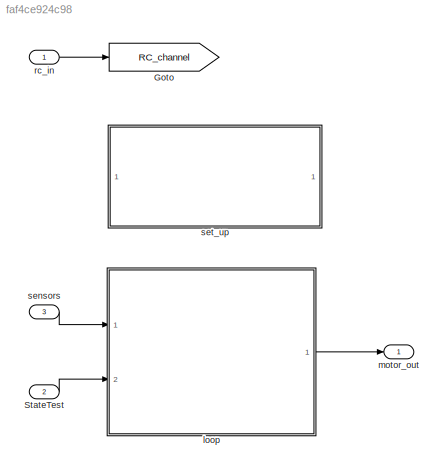
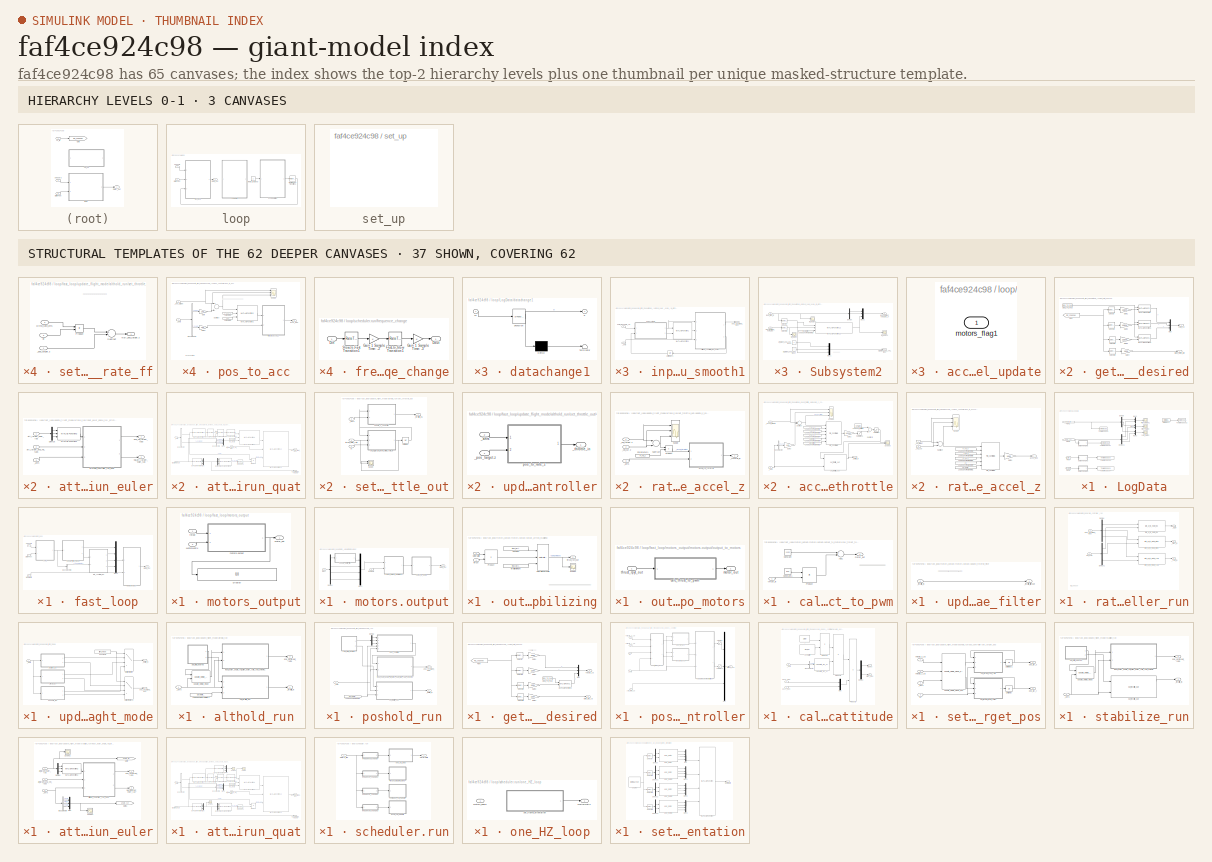
[diagram: thumbnail index - top-2 hierarchy levels (3 canvases) + 37 structural-template representatives of the remaining 62 canvases]
MODEL slx_faf4ce924c98
KIND model
CONFIG AbsTol = auto
CONFIG FixedStep = 0.0025
CONFIG InitFcn = %load QuadCopterParameters
CONFIG MaxStep = auto
CONFIG MinStep = auto
CONFIG RelTol = 1e-3
CONFIG SampleTimeConstraint = Unconstrained
CONFIG Solver = ode8
CONFIG SolverMode = SingleTasking
CONFIG SolverName = ode8
CONFIG StartTime = 0.0
CONFIG StopTime = 10.0
BLOCK [Goto] Goto
  GotoTag = RC_channel
  TagVisibility = global
BLOCK [Inport] StateTest
  IconDisplay = Port number
  OutDataTypeStr = Bus: VehicleStates
  Port = 2
BLOCK [SubSystem] loop
  Ports = [2, 1]
  RequestExecContextInheritance = off
  Variant = off
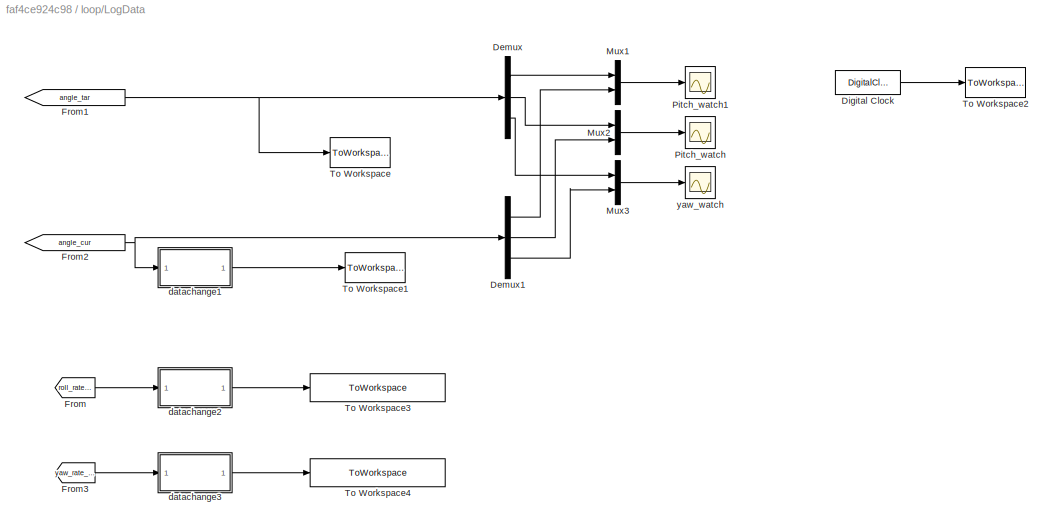
BLOCK [SubSystem] loop/LogData
  Ports = []
  RequestExecContextInheritance = off
  Variant = off
BLOCK [Demux] loop/LogData/Demux
  DisplayOption = bar
  Outputs = 3
  Ports = [1, 3]
BLOCK [Demux] loop/LogData/Demux1
  DisplayOption = bar
  Outputs = 3
  Ports = [1, 3]
BLOCK [DigitalClock] loop/LogData/Digital Clock
  SampleTime = -1
BLOCK [From] loop/LogData/From
  GotoTag = roll_rate_kpid_out
  TagVisibility = global
BLOCK [From] loop/LogData/From1
  GotoTag = angle_tar
  TagVisibility = global
BLOCK [From] loop/LogData/From2
  GotoTag = angle_cur
  TagVisibility = global
BLOCK [From] loop/LogData/From3
  GotoTag = yaw_rate_kpid_out
  TagVisibility = global
BLOCK [Mux] loop/LogData/Mux1
  DisplayOption = bar
  Inputs = 2
  Ports = [2, 1]
BLOCK [Mux] loop/LogData/Mux2
  DisplayOption = bar
  Inputs = 2
  Ports = [2, 1]
BLOCK [Mux] loop/LogData/Mux3
  DisplayOption = bar
  Inputs = 2
  Ports = [2, 1]
BLOCK [Scope] loop/LogData/Pitch_watch
  Ports = [1]
  ScopeSpecificationString = C++SS(StrPVP('Location','[65, 84, 746, 753]'),StrPVP('Open','off'),MxPVP('AxesTitles',24,'struct(''axes1'',''%<SignalLabel>'')'),MxPVP('ScopeGraphics',28,'struct(''FigureColor'',''[0.5 0.5 0.5]'',''AxesColor'',''[0 0 0]'',''AxesTickColor'',''[1 1 1]'',''LineColors'',''[1 1 0;1 0 1;0 1 1;1 0 0;0 1 0;0 0 1]'',''LineStyles'',''-|-|-|-|-|-'',''LineWidths'',''[0.5 0.5 0.5 0.5 0.5 0.5]'',''MarkerStyles'...<+396ch>
BLOCK [Scope] loop/LogData/Pitch_watch1
  Ports = [1]
  ScopeSpecificationString = C++SS(StrPVP('Location','[65, 84, 746, 753]'),StrPVP('Open','off'),MxPVP('AxesTitles',24,'struct(''axes1'',''%<SignalLabel>'')'),MxPVP('ScopeGraphics',28,'struct(''FigureColor'',''[0.5 0.5 0.5]'',''AxesColor'',''[0 0 0]'',''AxesTickColor'',''[1 1 1]'',''LineColors'',''[1 1 0;1 0 1;0 1 1;1 0 0;0 1 0;0 0 1]'',''LineStyles'',''-|-|-|-|-|-'',''LineWidths'',''[0.5 0.5 0.5 0.5 0.5 0.5]'',''MarkerStyles'...<+364ch>
BLOCK [ToWorkspace] loop/LogData/To Workspace
  MaxDataPoints = inf
  Ports = [1]
  SampleTime = -1
  SaveFormat = Structure
  VariableName = tar_angle
BLOCK [ToWorkspace] loop/LogData/To Workspace1
  MaxDataPoints = inf
  Ports = [1]
  SampleTime = -1
  SaveFormat = Structure
  VariableName = cur_angle
BLOCK [ToWorkspace] loop/LogData/To Workspace2
  MaxDataPoints = inf
  Ports = [1]
  SampleTime = 0.0025
  SaveFormat = Structure
  VariableName = system_time
BLOCK [ToWorkspace] loop/LogData/To Workspace3
  MaxDataPoints = inf
  Ports = [1]
  SampleTime = -1
  SaveFormat = Structure
  VariableName = roll_rate_kpid_out
BLOCK [ToWorkspace] loop/LogData/To Workspace4
  MaxDataPoints = inf
  Ports = [1]
  SampleTime = -1
  SaveFormat = Structure
  VariableName = yaw_rate_kpid_out
BLOCK [SubSystem] loop/LogData/datachange1
  ErrorFcn = Stateflow.Translate.translate
  PermitHierarchicalResolution = ExplicitOnly
  Ports = [1, 1]
  RequestExecContextInheritance = off
  SFBlockType = MATLAB Function
  TreatAsAtomicUnit = on
  Variant = off
BLOCK [Demux] loop/LogData/datachange1/ Demux 
  Outputs = 1
  Ports = [1, 1]
BLOCK [S-Function] loop/LogData/datachange1/ SFunction 
  EnableBusSupport = on
  FunctionName = sf_sfun
  PortCounts = [1 2]
  Ports = [1, 2]
  SFunctionDeploymentMode = off
  Tag = Stateflow S-Function ArduCopter 1
BLOCK [Terminator] loop/LogData/datachange1/ Terminator 
BLOCK [Outport] loop/LogData/datachange1/q
  IconDisplay = Port number
BLOCK [Inport] loop/LogData/datachange1/v3
  IconDisplay = Port number
BLOCK [SubSystem] loop/LogData/datachange2
  ErrorFcn = Stateflow.Translate.translate
  PermitHierarchicalResolution = ExplicitOnly
  Ports = [1, 1]
  RequestExecContextInheritance = off
  SFBlockType = MATLAB Function
  TreatAsAtomicUnit = on
  Variant = off
BLOCK [Demux] loop/LogData/datachange2/ Demux 
  Outputs = 1
  Ports = [1, 1]
BLOCK [S-Function] loop/LogData/datachange2/ SFunction 
  EnableBusSupport = on
  FunctionName = sf_sfun
  PortCounts = [1 2]
  Ports = [1, 2]
  SFunctionDeploymentMode = off
  Tag = Stateflow S-Function ArduCopter 10
BLOCK [Terminator] loop/LogData/datachange2/ Terminator 
BLOCK [Outport] loop/LogData/datachange2/q
  IconDisplay = Port number
BLOCK [Inport] loop/LogData/datachange2/v3
  IconDisplay = Port number
BLOCK [SubSystem] loop/LogData/datachange3
  ErrorFcn = Stateflow.Translate.translate
  PermitHierarchicalResolution = ExplicitOnly
  Ports = [1, 1]
  RequestExecContextInheritance = off
  SFBlockType = MATLAB Function
  TreatAsAtomicUnit = on
  Variant = off
BLOCK [Demux] loop/LogData/datachange3/ Demux 
  Outputs = 1
  Ports = [1, 1]
BLOCK [S-Function] loop/LogData/datachange3/ SFunction 
  EnableBusSupport = on
  FunctionName = sf_sfun
  PortCounts = [1 2]
  Ports = [1, 2]
  SFunctionDeploymentMode = off
  Tag = Stateflow S-Function ArduCopter 3
BLOCK [Terminator] loop/LogData/datachange3/ Terminator 
BLOCK [Outport] loop/LogData/datachange3/q
  IconDisplay = Port number
BLOCK [Inport] loop/LogData/datachange3/v3
  IconDisplay = Port number
BLOCK [Scope] loop/LogData/yaw_watch
  Ports = [1]
  ScopeSpecificationString = C++SS(StrPVP('Location','[10, 60, 1372, 738]'),StrPVP('Open','off'),StrPVP('ZoomMode','yonly'),MxPVP('AxesTitles',24,'struct(''axes1'',''%<SignalLabel>'')'),MxPVP('ScopeGraphics',28,'struct(''FigureColor'',''[0.5 0.5 0.5]'',''AxesColor'',''[0 0 0]'',''AxesTickColor'',''[1 1 1]'',''LineColors'',''[1 1 0;1 0 1;0 1 1;1 0 0;0 1 0;0 0 1]'',''LineStyles'',''-|-|-|-|-|-'',''LineWidths'',''[0.5 0.5 0.5 0....<+439ch>
BLOCK [RateTransition] loop/Slow-to-Fast Transition1
  OutPortSampleTime = 0.0025
BLOCK [Inport] loop/StateTest
  IconDisplay = Port number
  OutDataTypeStr = Bus: VehicleStates
  Port = 2
BLOCK [SubSystem] loop/fast_loop
  Ports = [3, 1]
  RequestExecContextInheritance = off
  Variant = off
BLOCK [ModelReference] loop/fast_loop/AHRS
  ModelNameDialog = AHRS
  ModelReferenceVersion = 1.203
  Ports = [2, 1]
  Variant = off
BLOCK [BusSelector] loop/fast_loop/Bus Selector8
  OutputSignals = BodyState.AngularRate
  Ports = [1, 1]
BLOCK [Inport] loop/fast_loop/MotorMatix
  IconDisplay = Port number
  Port = 3
BLOCK [Mux] loop/fast_loop/Mux2
  DisplayOption = bar
  Ports = [4, 1]
BLOCK [Inport] loop/fast_loop/StateTest
  IconDisplay = Port number
  OutDataTypeStr = Bus: VehicleStates
  Port = 2
BLOCK [Outport] loop/fast_loop/motor_out
  IconDisplay = Port number
BLOCK [SubSystem] loop/fast_loop/motors_output
  Ports = [2, 1]
  RequestExecContextInheritance = off
  Variant = off
BLOCK [Display] loop/fast_loop/motors_output/Display
  Decimation = 1
  Ports = [1]
BLOCK [Inport] loop/fast_loop/motors_output/MotorMatix
  IconDisplay = Port number
  Port = 2
BLOCK [Outport] loop/fast_loop/motors_output/motor_out
  IconDisplay = Port number
BLOCK [SubSystem] loop/fast_loop/motors_output/motors.output
  Ports = [2, 1]
  RequestExecContextInheritance = off
  Variant = off
BLOCK [Demux] loop/fast_loop/motors_output/motors.output/Demux
  DisplayOption = bar
  Ports = [1, 4]
BLOCK [Inport] loop/fast_loop/motors_output/motors.output/MotorMatix
  IconDisplay = Port number
  Port = 2
BLOCK [Mux] loop/fast_loop/motors_output/motors.output/Mux2
  DisplayOption = bar
  Ports = [4, 1]
BLOCK [Outport] loop/fast_loop/motors_output/motors.output/motor_out
  IconDisplay = Port number
BLOCK [SubSystem] loop/fast_loop/motors_output/motors.output/output_armed_stabilizing
  Ports = [2, 1]
  RequestExecContextInheritance = off
  Variant = off
BLOCK [Constant] loop/fast_loop/motors_output/motors.output/output_armed_stabilizing/Constant
  Value = thrust_rpyt_up
BLOCK [Inport] loop/fast_loop/motors_output/motors.output/output_armed_stabilizing/MotorMatix
  IconDisplay = Port number
  Port = 2
BLOCK [Product] loop/fast_loop/motors_output/motors.output/output_armed_stabilizing/Product
  InputSameDT = off
  Multiplication = Matrix(*)
  OutDataTypeStr = Inherit: Inherit via internal rule
  Ports = [2, 1]
  RndMeth = Floor
  SaturateOnIntegerOverflow = off
BLOCK [Reference] loop/fast_loop/motors_output/motors.output/output_armed_stabilizing/Saturation Dynamic  REF=simulink/Discontinuities/Saturation
Dynamic
  Ports = [3, 1]
  SourceBlock = simulink/Discontinuities/Saturation\nDynamic
  SourceType = Saturation Dynamic
BLOCK [Scope] loop/fast_loop/motors_output/motors.output/output_armed_stabilizing/Scope1
  Ports = [1]
  ScopeSpecificationString = C++SS(StrPVP('Location','[369, 277, 1242, 800]'),StrPVP('Open','off'),StrPVP('ZoomMode','yonly'),MxPVP('AxesTitles',24,'struct(''axes1'',''%<SignalLabel>'')'),MxPVP('ScopeGraphics',28,'struct(''FigureColor'',''[0.5 0.5 0.5]'',''AxesColor'',''[0 0 0]'',''AxesTickColor'',''[1 1 1]'',''LineColors'',''[1 1 0;1 0 1;0 1 1;1 0 0;0 1 0;0 0 1]'',''LineStyles'',''-|-|-|-|-|-'',''LineWidths'',''[0.5 0.5 0.5 ...<+345ch>
BLOCK [Constant] loop/fast_loop/motors_output/motors.output/output_armed_stabilizing/throttleMinimum
  Value = thrust_rpyt_down
BLOCK [Inport] loop/fast_loop/motors_output/motors.output/output_armed_stabilizing/thrust
  IconDisplay = Port number
BLOCK [Outport] loop/fast_loop/motors_output/motors.output/output_armed_stabilizing/thrust_rpyt_out
  IconDisplay = Port number
BLOCK [SubSystem] loop/fast_loop/motors_output/motors.output/output_to_motors
  Ports = [1, 1]
  RequestExecContextInheritance = off
  Variant = off
BLOCK [SubSystem] loop/fast_loop/motors_output/motors.output/output_to_motors/calc_thrust_to_pwm
  Ports = [1, 1]
  RequestExecContextInheritance = off
  Variant = off
BLOCK [Sum] loop/fast_loop/motors_output/motors.output/output_to_motors/calc_thrust_to_pwm/Add1
  InputSameDT = off
  OutDataTypeStr = Inherit: Inherit via internal rule
  Ports = [2, 1]
  SaturateOnIntegerOverflow = off
BLOCK [Constant] loop/fast_loop/motors_output/motors.output/output_to_motors/calc_thrust_to_pwm/Constant
  Value = 1100
BLOCK [Constant] loop/fast_loop/motors_output/motors.output/output_to_motors/calc_thrust_to_pwm/Constant1
  Value = 800
BLOCK [Product] loop/fast_loop/motors_output/motors.output/output_to_motors/calc_thrust_to_pwm/Product
  InputSameDT = off
  OutDataTypeStr = Inherit: Inherit via internal rule
  Ports = [2, 1]
  RndMeth = Floor
  SaturateOnIntegerOverflow = off
BLOCK [Outport] loop/fast_loop/motors_output/motors.output/output_to_motors/calc_thrust_to_pwm/motor_out
  IconDisplay = Port number
BLOCK [Inport] loop/fast_loop/motors_output/motors.output/output_to_motors/calc_thrust_to_pwm/thrust_in
  IconDisplay = Port number
BLOCK [Outport] loop/fast_loop/motors_output/motors.output/output_to_motors/motor_out
  IconDisplay = Port number
BLOCK [Inport] loop/fast_loop/motors_output/motors.output/output_to_motors/thrust_rpyt_out
  IconDisplay = Port number
BLOCK [Inport] loop/fast_loop/motors_output/motors.output/thrust
  IconDisplay = Port number
BLOCK [SubSystem] loop/fast_loop/motors_output/motors.output/update_throttle_filter
  Ports = [1, 1]
  RequestExecContextInheritance = off
  Variant = off
BLOCK [Outport] loop/fast_loop/motors_output/motors.output/update_throttle_filter/_throttle_filter.out
  IconDisplay = Port number
BLOCK [Inport] loop/fast_loop/motors_output/motors.output/update_throttle_filter/_throttle_in
  IconDisplay = Port number
BLOCK [Inport] loop/fast_loop/motors_output/thrust
  IconDisplay = Port number
  PortDimensions = [4,1]
BLOCK [SubSystem] loop/fast_loop/rate_controller_run
  Ports = [2, 3]
  RequestExecContextInheritance = off
  Variant = off
BLOCK [Demux] loop/fast_loop/rate_controller_run/Demux
  DisplayOption = bar
  Outputs = 3
  Ports = [1, 3]
BLOCK [Demux] loop/fast_loop/rate_controller_run/Demux1
  BusSelectionMode = on
  DisplayOption = bar
  Outputs = 3
  Ports = [1, 3]
BLOCK [Outport] loop/fast_loop/rate_controller_run/_pitch_in
  IconDisplay = Port number
  Port = 2
BLOCK [Outport] loop/fast_loop/rate_controller_run/_roll_in
  IconDisplay = Port number
BLOCK [Outport] loop/fast_loop/rate_controller_run/_yaw_in
  IconDisplay = Port number
  Port = 3
BLOCK [Inport] loop/fast_loop/rate_controller_run/ang_vel_target_rads
  IconDisplay = Port number
BLOCK [Inport] loop/fast_loop/rate_controller_run/get_gyro
  IconDisplay = Port number
  Port = 2
BLOCK [Reference] loop/fast_loop/rate_controller_run/rate_bf_to_motor_pitch  REF=Lib_AC_AttitudeControl/rate_bf_to_motor_pitch
  Ports = [2, 1]
  SourceBlock = Lib_AC_AttitudeControl/rate_bf_to_motor_pitch
  SourceType = SubSystem
BLOCK [Reference] loop/fast_loop/rate_controller_run/rate_bf_to_motor_roll  REF=Lib_AC_AttitudeControl/rate_bf_to_motor_roll
  Ports = [2, 1]
  SourceBlock = Lib_AC_AttitudeControl/rate_bf_to_motor_roll
  SourceType = SubSystem
BLOCK [Reference] loop/fast_loop/rate_controller_run/rate_bf_to_motor_yaw  REF=Lib_AC_AttitudeControl/rate_bf_to_motor_yaw
  Ports = [2, 1]
  SourceBlock = Lib_AC_AttitudeControl/rate_bf_to_motor_yaw
  SourceType = SubSystem
BLOCK [Inport] loop/fast_loop/sensors
  IconDisplay = Port number
  OutDataTypeStr = Bus: Sensors
BLOCK [SubSystem] loop/fast_loop/update_flight_mode
  Ports = [1, 2]
  RequestExecContextInheritance = off
  Variant = off
BLOCK [Constant] loop/fast_loop/update_flight_mode/Constant3
  SampleTime = 0.0025
  Value = flight_mode
BLOCK [MultiPortSwitch] loop/fast_loop/update_flight_mode/Multiport Switch
  InputSameDT = off
  Ports = [4, 1]
  SaturateOnIntegerOverflow = off
BLOCK [MultiPortSwitch] loop/fast_loop/update_flight_mode/Multiport Switch1
  InputSameDT = off
  Ports = [4, 1]
  SaturateOnIntegerOverflow = off
BLOCK [Inport] loop/fast_loop/update_flight_mode/_ahrs
  IconDisplay = Port number
BLOCK [Outport] loop/fast_loop/update_flight_mode/_throttle_in
  IconDisplay = Port number
BLOCK [SubSystem] loop/fast_loop/update_flight_mode/althold_run
  Ports = [1, 2]
  RequestExecContextInheritance = off
  Variant = off
BLOCK [Constant] loop/fast_loop/update_flight_mode/althold_run/LoadConstParameter1
  SampleTime = -1
  Value = Discretetime_400Hz
BLOCK [Inport] loop/fast_loop/update_flight_mode/althold_run/_ahrs
  IconDisplay = Port number
BLOCK [Outport] loop/fast_loop/update_flight_mode/althold_run/_throttle_in
  IconDisplay = Port number
BLOCK [Outport] loop/fast_loop/update_flight_mode/althold_run/ang_vel_target_rads
  IconDisplay = Port number
  Port = 2
BLOCK [SubSystem] loop/fast_loop/update_flight_mode/althold_run/get_pilot_desired
  Ports = [0, 2]
  RequestExecContextInheritance = off
  Variant = off
BLOCK [Constant] loop/fast_loop/update_flight_mode/althold_run/get_pilot_desired/DEG_TO_RAD
  Description = 低通滤波器的时间常数
  Value = DEG_TO_RAD
BLOCK [From] loop/fast_loop/update_flight_mode/althold_run/get_pilot_desired/From
  GotoTag = RC_channel
  TagVisibility = global
BLOCK [Gain] loop/fast_loop/update_flight_mode/althold_run/get_pilot_desired/Gain1
  Gain = 1.0/100
  OutDataTypeStr = Inherit: Inherit via internal rule
  ParamDataTypeStr = Inherit: Inherit via internal rule
  SaturateOnIntegerOverflow = off
BLOCK [Gain] loop/fast_loop/update_flight_mode/althold_run/get_pilot_desired/Gain2
  Gain = 1.0/100
  OutDataTypeStr = Inherit: Inherit via internal rule
  ParamDataTypeStr = Inherit: Inherit via internal rule
  SaturateOnIntegerOverflow = off
BLOCK [Gain] loop/fast_loop/update_flight_mode/althold_run/get_pilot_desired/Gain3
  Gain = 1.0/100
  OutDataTypeStr = Inherit: Inherit via internal rule
  ParamDataTypeStr = Inherit: Inherit via internal rule
  SaturateOnIntegerOverflow = off
BLOCK [Gain] loop/fast_loop/update_flight_mode/althold_run/get_pilot_desired/Gain4
  Gain = 1/100
  OutDataTypeStr = Inherit: Inherit via internal rule
  ParamDataTypeStr = Inherit: Inherit via internal rule
  SaturateOnIntegerOverflow = off
BLOCK [Reference] loop/fast_loop/update_flight_mode/althold_run/get_pilot_desired/MATLAB Function  REF=Lib_AP_Math/MATLAB Function
  Ports = [2, 1]
  SourceBlock = Lib_AP_Math/MATLAB Function
  SourceType = SubSystem
BLOCK [Reference] loop/fast_loop/update_flight_mode/althold_run/get_pilot_desired/MATLAB Function1  REF=Lib_AP_Math/MATLAB Function
  Ports = [2, 1]
  SourceBlock = Lib_AP_Math/MATLAB Function
  SourceType = SubSystem
BLOCK [Reference] loop/fast_loop/update_flight_mode/althold_run/get_pilot_desired/MATLAB Function2  REF=Lib_AP_Math/MATLAB Function
  Ports = [2, 1]
  SourceBlock = Lib_AP_Math/MATLAB Function
  SourceType = SubSystem
BLOCK [Mux] loop/fast_loop/update_flight_mode/althold_run/get_pilot_desired/Mux
  DisplayOption = bar
  Inputs = 3
  Ports = [3, 1]
BLOCK [Selector] loop/fast_loop/update_flight_mode/althold_run/get_pilot_desired/Selector
  IndexOptions = Index vector (dialog)
  Indices = [1]
  InputPortWidth = 6
  OutputSizes = 1
  Ports = [1, 1]
BLOCK [Selector] loop/fast_loop/update_flight_mode/althold_run/get_pilot_desired/Selector1
  IndexOptions = Index vector (dialog)
  Indices = [2]
  InputPortWidth = 6
  OutputSizes = 1
  Ports = [1, 1]
BLOCK [Selector] loop/fast_loop/update_flight_mode/althold_run/get_pilot_desired/Selector2
  IndexOptions = Index vector (dialog)
  Indices = 3
  InputPortWidth = 6
  OutputSizes = 1
  Ports = [1, 1]
BLOCK [Selector] loop/fast_loop/update_flight_mode/althold_run/get_pilot_desired/Selector3
  IndexOptions = Index vector (dialog)
  Indices = 4
  InputPortWidth = 6
  OutputSizes = 1
  Ports = [1, 1]
BLOCK [Outport] loop/fast_loop/update_flight_mode/althold_run/get_pilot_desired/euler_cd
  IconDisplay = Port number
BLOCK [Outport] loop/fast_loop/update_flight_mode/althold_run/get_pilot_desired/target_climb_rate
  IconDisplay = Port number
  Port = 2
BLOCK [SubSystem] loop/fast_loop/update_flight_mode/althold_run/input_euler_angle_roll_pitch_euler_rate_yaw_smooth1
  Ports = [2, 1]
  RequestExecContextInheritance = off
  Variant = off
BLOCK [Reference] loop/fast_loop/update_flight_mode/althold_run/input_euler_angle_roll_pitch_euler_rate_yaw_smooth1/MATLAB Function1  REF=Lib_AC_AttitudeControl/MATLAB Function1
  Ports = [2, 1]
  SourceBlock = Lib_AC_AttitudeControl/MATLAB Function1
  SourceType = SubSystem
BLOCK [SubSystem] loop/fast_loop/update_flight_mode/althold_run/input_euler_angle_roll_pitch_euler_rate_yaw_smooth1/Subsystem2
  Ports = [2, 2]
  RequestExecContextInheritance = off
  Variant = off
BLOCK [Demux] loop/fast_loop/update_flight_mode/althold_run/input_euler_angle_roll_pitch_euler_rate_yaw_smooth1/Subsystem2/Demux
  DisplayOption = bar
  Outputs = 3
  Ports = [1, 3]
BLOCK [Inport] loop/fast_loop/update_flight_mode/althold_run/input_euler_angle_roll_pitch_euler_rate_yaw_smooth1/Subsystem2/Input_from_rc
  IconDisplay = Port number
BLOCK [Constant] loop/fast_loop/update_flight_mode/althold_run/input_euler_angle_roll_pitch_euler_rate_yaw_smooth1/Subsystem2/LoadConstParameter1
  SampleTime = -1
  Value = Discretetime_400Hz
BLOCK [Reference] loop/fast_loop/update_flight_mode/althold_run/input_euler_angle_roll_pitch_euler_rate_yaw_smooth1/Subsystem2/MATLAB Function12  REF=Lib_AC_AttitudeControl/MATLAB Function12
  Ports = [3, 1]
  SourceBlock = Lib_AC_AttitudeControl/MATLAB Function12
  SourceType = SubSystem
BLOCK [Mux] loop/fast_loop/update_flight_mode/althold_run/input_euler_angle_roll_pitch_euler_rate_yaw_smooth1/Subsystem2/Mux1
  DisplayOption = bar
  Inputs = 3
  Ports = [3, 1]
BLOCK [Mux] loop/fast_loop/update_flight_mode/althold_run/input_euler_angle_roll_pitch_euler_rate_yaw_smooth1/Subsystem2/Mux2
  DisplayOption = bar
  Inputs = 3
  Ports = [3, 1]
BLOCK [Inport] loop/fast_loop/update_flight_mode/althold_run/input_euler_angle_roll_pitch_euler_rate_yaw_smooth1/Subsystem2/Null_att_target_euler_rad
  IconDisplay = Port number
  Port = 2
BLOCK [Outport] loop/fast_loop/update_flight_mode/althold_run/input_euler_angle_roll_pitch_euler_rate_yaw_smooth1/Subsystem2/Null_att_target_euler_rad_z
  IconDisplay = Port number
BLOCK [Selector] loop/fast_loop/update_flight_mode/althold_run/input_euler_angle_roll_pitch_euler_rate_yaw_smooth1/Subsystem2/Selector
  IndexOptions = Index vector (dialog)
  Indices = [3]
  InputPortWidth = 3
  OutputSizes = 1
  Ports = [1, 1]
BLOCK [Selector] loop/fast_loop/update_flight_mode/althold_run/input_euler_angle_roll_pitch_euler_rate_yaw_smooth1/Subsystem2/Selector1
  IndexOptions = Index vector (dialog)
  Indices = [3]
  InputPortWidth = 3
  OutputSizes = 1
  Ports = [1, 1]
BLOCK [Outport] loop/fast_loop/update_flight_mode/althold_run/input_euler_angle_roll_pitch_euler_rate_yaw_smooth1/Subsystem2/att_target_ang_vel_rads
  IconDisplay = Port number
  Port = 2
BLOCK [Constant] loop/fast_loop/update_flight_mode/althold_run/input_euler_angle_roll_pitch_euler_rate_yaw_smooth1/Subsystem2/att_target_ang_vel_rads.x
  Value = 0
BLOCK [Constant] loop/fast_loop/update_flight_mode/althold_run/input_euler_angle_roll_pitch_euler_rate_yaw_smooth1/Subsystem2/att_target_ang_vel_rads.y
  Value = 0
BLOCK [Scope] loop/fast_loop/update_flight_mode/althold_run/input_euler_angle_roll_pitch_euler_rate_yaw_smooth1/Subsystem2/roll_watch
  Ports = [1]
  ScopeSpecificationString = C++SS(StrPVP('Location','[6, 93, 687, 762]'),StrPVP('Open','off'),StrPVP('ZoomMode','yonly'),MxPVP('AxesTitles',24,'struct(''axes1'',''%<SignalLabel>'')'),MxPVP('ScopeGraphics',28,'struct(''FigureColor'',''[0.5 0.5 0.5]'',''AxesColor'',''[0 0 0]'',''AxesTickColor'',''[1 1 1]'',''LineColors'',''[1 1 0;1 0 1;0 1 1;1 0 0;0 1 0;0 0 1]'',''LineStyles'',''-|-|-|-|-|-'',''LineWidths'',''[0.5 0.5 0.5 0.5 ...<+437ch>  <repeated x3 — deduplicated; at blocks: roll_watch>
BLOCK [Scope] loop/fast_loop/update_flight_mode/althold_run/input_euler_angle_roll_pitch_euler_rate_yaw_smooth1/Subsystem2/roll_watch1
  Ports = [1]
  ScopeSpecificationString = C++SS(StrPVP('Location','[6, 93, 687, 762]'),StrPVP('Open','off'),StrPVP('ZoomMode','yonly'),MxPVP('AxesTitles',24,'struct(''axes1'',''%<SignalLabel>'')'),MxPVP('ScopeGraphics',28,'struct(''FigureColor'',''[0.5 0.5 0.5]'',''AxesColor'',''[0 0 0]'',''AxesTickColor'',''[1 1 1]'',''LineColors'',''[1 1 0;1 0 1;0 1 1;1 0 0;0 1 0;0 0 1]'',''LineStyles'',''-|-|-|-|-|-'',''LineWidths'',''[0.5 0.5 0.5 0.5 ...<+436ch>  <repeated x3 — deduplicated; at blocks: roll_watch1>
BLOCK [Scope] loop/fast_loop/update_flight_mode/althold_run/input_euler_angle_roll_pitch_euler_rate_yaw_smooth1/Subsystem2/roll_watch2
  Ports = [1]
  ScopeSpecificationString = C++SS(StrPVP('Location','[336, 147, 1017, 816]'),StrPVP('Open','off'),StrPVP('ZoomMode','yonly'),MxPVP('AxesTitles',24,'struct(''axes1'',''%<SignalLabel>'')'),MxPVP('ScopeGraphics',28,'struct(''FigureColor'',''[0.5 0.5 0.5]'',''AxesColor'',''[0 0 0]'',''AxesTickColor'',''[1 1 1]'',''LineColors'',''[1 1 0;1 0 1;0 1 1;1 0 0;0 1 0;0 0 1]'',''LineStyles'',''-|-|-|-|-|-'',''LineWidths'',''[0.5 0.5 0.5 ...<+440ch>  <repeated x3 — deduplicated; at blocks: roll_watch2>
BLOCK [UnitDelay] loop/fast_loop/update_flight_mode/althold_run/input_euler_angle_roll_pitch_euler_rate_yaw_smooth1/Unit Delay1
  InitialCondition = [0 0 0]'
  InputProcessing = Elements as channels (sample based)
  SampleTime = -1
BLOCK [Inport] loop/fast_loop/update_flight_mode/althold_run/input_euler_angle_roll_pitch_euler_rate_yaw_smooth1/_ahrs
  IconDisplay = Port number
  Port = 2
BLOCK [Outport] loop/fast_loop/update_flight_mode/althold_run/input_euler_angle_roll_pitch_euler_rate_yaw_smooth1/ang_vel_target_rads
  IconDisplay = Port number
BLOCK [SubSystem] loop/fast_loop/update_flight_mode/althold_run/input_euler_angle_roll_pitch_euler_rate_yaw_smooth1/attitude_controller_run_euler
  Ports = [3, 2]
  RequestExecContextInheritance = off
  Variant = off
BLOCK [Demux] loop/fast_loop/update_flight_mode/althold_run/input_euler_angle_roll_pitch_euler_rate_yaw_smooth1/attitude_controller_run_euler/Demux
  DisplayOption = bar
  Outputs = 3
  Ports = [1, 3]
BLOCK [Reference] loop/fast_loop/update_flight_mode/althold_run/input_euler_angle_roll_pitch_euler_rate_yaw_smooth1/attitude_controller_run_euler/MATLAB Function1  REF=Lib_AP_Math/MATLAB Function2
  Ports = [3, 1]
  SourceBlock = Lib_AP_Math/MATLAB Function2
  SourceType = SubSystem
BLOCK [Outport] loop/fast_loop/update_flight_mode/althold_run/input_euler_angle_roll_pitch_euler_rate_yaw_smooth1/attitude_controller_run_euler/Null_att_target_euler_rad
  IconDisplay = Port number
  Port = 2
BLOCK [Inport] loop/fast_loop/update_flight_mode/althold_run/input_euler_angle_roll_pitch_euler_rate_yaw_smooth1/attitude_controller_run_euler/_ahrs
  IconDisplay = Port number
  Port = 3
BLOCK [Outport] loop/fast_loop/update_flight_mode/althold_run/input_euler_angle_roll_pitch_euler_rate_yaw_smooth1/attitude_controller_run_euler/ang_vel_target_rads
  IconDisplay = Port number
BLOCK [Inport] loop/fast_loop/update_flight_mode/althold_run/input_euler_angle_roll_pitch_euler_rate_yaw_smooth1/attitude_controller_run_euler/att_target_ang_vel_rads
  IconDisplay = Port number
  Port = 2
BLOCK [Inport] loop/fast_loop/update_flight_mode/althold_run/input_euler_angle_roll_pitch_euler_rate_yaw_smooth1/attitude_controller_run_euler/att_target_euler_rad
  IconDisplay = Port number
BLOCK [SubSystem] loop/fast_loop/update_flight_mode/althold_run/input_euler_angle_roll_pitch_euler_rate_yaw_smooth1/attitude_controller_run_euler/attitude_controller_run_quat
  Ports = [3, 2]
  RequestExecContextInheritance = off
  Variant = off
BLOCK [BusSelector] loop/fast_loop/update_flight_mode/althold_run/input_euler_angle_roll_pitch_euler_rate_yaw_smooth1/attitude_controller_run_euler/attitude_controller_run_quat/Bus Selector
  OutputSignals = NEDState.Attitude.DCM,BodyState.AngularRate
  Ports = [1, 2]
BLOCK [BusSelector] loop/fast_loop/update_flight_mode/althold_run/input_euler_angle_roll_pitch_euler_rate_yaw_smooth1/attitude_controller_run_euler/attitude_controller_run_quat/Bus Selector1
  OutputSignals = xOmega,yOmega,zOmega
  Ports = [1, 3]
BLOCK [Demux] loop/fast_loop/update_flight_mode/althold_run/input_euler_angle_roll_pitch_euler_rate_yaw_smooth1/attitude_controller_run_euler/attitude_controller_run_quat/Demux1
  DisplayOption = bar
  Outputs = 3
  Ports = [1, 3]
BLOCK [Constant] loop/fast_loop/update_flight_mode/althold_run/input_euler_angle_roll_pitch_euler_rate_yaw_smooth1/attitude_controller_run_euler/attitude_controller_run_quat/Kp_angle
  Description = 低通滤波器的时间常数
  Value = Kp_angle
BLOCK [Reference] loop/fast_loop/update_flight_mode/althold_run/input_euler_angle_roll_pitch_euler_rate_yaw_smooth1/attitude_controller_run_euler/attitude_controller_run_quat/MATLAB Function10  REF=Lib_AC_AttitudeControl/MATLAB Function10
  Ports = [3, 1]
  SourceBlock = Lib_AC_AttitudeControl/MATLAB Function10
  SourceType = SubSystem
BLOCK [Reference] loop/fast_loop/update_flight_mode/althold_run/input_euler_angle_roll_pitch_euler_rate_yaw_smooth1/attitude_controller_run_euler/attitude_controller_run_quat/MATLAB Function2  REF=Lib_AP_Math/MATLAB Function3
  Ports = [1, 1]
  SourceBlock = Lib_AP_Math/MATLAB Function3
  SourceType = SubSystem
BLOCK [Reference] loop/fast_loop/update_flight_mode/althold_run/input_euler_angle_roll_pitch_euler_rate_yaw_smooth1/attitude_controller_run_euler/attitude_controller_run_quat/MATLAB Function3  REF=Lib_AP_Math/MATLAB Function4
  Ports = [1, 1]
  SourceBlock = Lib_AP_Math/MATLAB Function4
  SourceType = SubSystem
BLOCK [Reference] loop/fast_loop/update_flight_mode/althold_run/input_euler_angle_roll_pitch_euler_rate_yaw_smooth1/attitude_controller_run_euler/attitude_controller_run_quat/MATLAB Function4  REF=Lib_AP_Math/MATLAB Function6
  Ports = [1, 3]
  SourceBlock = Lib_AP_Math/MATLAB Function6
  SourceType = SubSystem
BLOCK [Reference] loop/fast_loop/update_flight_mode/althold_run/input_euler_angle_roll_pitch_euler_rate_yaw_smooth1/attitude_controller_run_euler/attitude_controller_run_quat/MATLAB Function5  REF=Lib_AC_AttitudeControl/MATLAB Function9
  Ports = [3, 1]
  SourceBlock = Lib_AC_AttitudeControl/MATLAB Function9
  SourceType = SubSystem
BLOCK [Reference] loop/fast_loop/update_flight_mode/althold_run/input_euler_angle_roll_pitch_euler_rate_yaw_smooth1/attitude_controller_run_euler/attitude_controller_run_quat/MATLAB Function6  REF=Lib_AP_AHRS/MATLAB Function2
  Ports = [3, 1]
  SourceBlock = Lib_AP_AHRS/MATLAB Function2
  SourceType = SubSystem
BLOCK [Reference] loop/fast_loop/update_flight_mode/althold_run/input_euler_angle_roll_pitch_euler_rate_yaw_smooth1/attitude_controller_run_euler/attitude_controller_run_quat/MATLAB Function8  REF=Lib_AP_Math/MATLAB Function8
  Ports = [1, 1]
  SourceBlock = Lib_AP_Math/MATLAB Function8
  SourceType = SubSystem
BLOCK [Reference] loop/fast_loop/update_flight_mode/althold_run/input_euler_angle_roll_pitch_euler_rate_yaw_smooth1/attitude_controller_run_euler/attitude_controller_run_quat/MATLAB Function9  REF=Lib_AP_Math/MATLAB Function7
  Ports = [2, 1]
  SourceBlock = Lib_AP_Math/MATLAB Function7
  SourceType = SubSystem
BLOCK [Mux] loop/fast_loop/update_flight_mode/althold_run/input_euler_angle_roll_pitch_euler_rate_yaw_smooth1/attitude_controller_run_euler/attitude_controller_run_quat/Mux
  DisplayOption = bar
  Inputs = 3
  Ports = [3, 1]
BLOCK [Mux] loop/fast_loop/update_flight_mode/althold_run/input_euler_angle_roll_pitch_euler_rate_yaw_smooth1/attitude_controller_run_euler/attitude_controller_run_quat/Mux1
  DisplayOption = bar
  Inputs = 3
  Ports = [3, 1]
BLOCK [Outport] loop/fast_loop/update_flight_mode/althold_run/input_euler_angle_roll_pitch_euler_rate_yaw_smooth1/attitude_controller_run_euler/attitude_controller_run_quat/Null_att_target_euler_rad
  IconDisplay = Port number
  Port = 2
BLOCK [Product] loop/fast_loop/update_flight_mode/althold_run/input_euler_angle_roll_pitch_euler_rate_yaw_smooth1/attitude_controller_run_euler/attitude_controller_run_quat/Product
  InputSameDT = off
  Multiplication = Matrix(*)
  OutDataTypeStr = Inherit: Inherit via internal rule
  Ports = [2, 1]
  SaturateOnIntegerOverflow = off
BLOCK [Math] loop/fast_loop/update_flight_mode/althold_run/input_euler_angle_roll_pitch_euler_rate_yaw_smooth1/attitude_controller_run_euler/attitude_controller_run_quat/Transpose
  Operator = transpose
  Ports = [1, 1]
BLOCK [Inport] loop/fast_loop/update_flight_mode/althold_run/input_euler_angle_roll_pitch_euler_rate_yaw_smooth1/attitude_controller_run_euler/attitude_controller_run_quat/_ahrs
  IconDisplay = Port number
  Port = 3
BLOCK [Outport] loop/fast_loop/update_flight_mode/althold_run/input_euler_angle_roll_pitch_euler_rate_yaw_smooth1/attitude_controller_run_euler/attitude_controller_run_quat/ang_vel_target_rads
  IconDisplay = Port number
BLOCK [Inport] loop/fast_loop/update_flight_mode/althold_run/input_euler_angle_roll_pitch_euler_rate_yaw_smooth1/attitude_controller_run_euler/attitude_controller_run_quat/att_target_ang_vel_rads
  IconDisplay = Port number
  Port = 2
BLOCK [Inport] loop/fast_loop/update_flight_mode/althold_run/input_euler_angle_roll_pitch_euler_rate_yaw_smooth1/attitude_controller_run_euler/attitude_controller_run_quat/att_target_quat
  IconDisplay = Port number
BLOCK [Inport] loop/fast_loop/update_flight_mode/althold_run/input_euler_angle_roll_pitch_euler_rate_yaw_smooth1/euler_roll_angle_cd
  IconDisplay = Port number
BLOCK [SubSystem] loop/fast_loop/update_flight_mode/althold_run/set_throttle_out
  Ports = [3, 1]
  RequestExecContextInheritance = off
  Variant = off
BLOCK [Scope] loop/fast_loop/update_flight_mode/althold_run/set_throttle_out/Scope
  NumInputPorts = 3
  Ports = [3]
  ScopeSpecificationString = C++SS(StrPVP('Location','[10, 79, 1364, 757]'),StrPVP('Open','off'),MxPVP('AxesTitles',24,'struct(''axes1'',''%<SignalLabel>'',''axes2'',''%<SignalLabel>'',''axes3'',''%<SignalLabel>'')'),MxPVP('ScopeGraphics',28,'struct(''FigureColor'',''[0.5 0.5 0.5]'',''AxesColor'',''[0 0 0]'',''AxesTickColor'',''[1 1 1]'',''LineColors'',''[1 1 0;1 0 1;0 1 1;1 0 0;0 1 0;0 0 1]'',''LineStyles'',''-|-|-|-|-|-'','...<+358ch>
BLOCK [UnitDelay] loop/fast_loop/update_flight_mode/althold_run/set_throttle_out/Unit Delay
  InputProcessing = Elements as channels (sample based)
  SampleTime = -1
BLOCK [Inport] loop/fast_loop/update_flight_mode/althold_run/set_throttle_out/_ahrs
  IconDisplay = Port number
  Port = 2
BLOCK [Outport] loop/fast_loop/update_flight_mode/althold_run/set_throttle_out/_throttle_in1
  IconDisplay = Port number
BLOCK [Inport] loop/fast_loop/update_flight_mode/althold_run/set_throttle_out/dt
  IconDisplay = Port number
  Port = 3
BLOCK [SubSystem] loop/fast_loop/update_flight_mode/althold_run/set_throttle_out/set_alt_target_from_climb_rate_ff
  Ports = [3, 1]
  RequestExecContextInheritance = off
  Variant = off
BLOCK [Outport] loop/fast_loop/update_flight_mode/althold_run/set_throttle_out/set_alt_target_from_climb_rate_ff/Null_pos_target.z
  IconDisplay = Port number
BLOCK [Product] loop/fast_loop/update_flight_mode/althold_run/set_throttle_out/set_alt_target_from_climb_rate_ff/Product
  InputSameDT = off
  OutDataTypeStr = Inherit: Inherit via internal rule
  Ports = [2, 1]
  RndMeth = Floor
  SaturateOnIntegerOverflow = off
BLOCK [Sum] loop/fast_loop/update_flight_mode/althold_run/set_throttle_out/set_alt_target_from_climb_rate_ff/Subtract
  InputSameDT = off
  OutDataTypeStr = Inherit: Inherit via internal rule
  Ports = [2, 1]
  SaturateOnIntegerOverflow = off
BLOCK [Inport] loop/fast_loop/update_flight_mode/althold_run/set_throttle_out/set_alt_target_from_climb_rate_ff/_pos_target.z
  IconDisplay = Port number
BLOCK [Inport] loop/fast_loop/update_flight_mode/althold_run/set_throttle_out/set_alt_target_from_climb_rate_ff/climb_rate_cms
  IconDisplay = Port number
  Port = 2
BLOCK [Inport] loop/fast_loop/update_flight_mode/althold_run/set_throttle_out/set_alt_target_from_climb_rate_ff/dt
  IconDisplay = Port number
  Port = 3
BLOCK [Inport] loop/fast_loop/update_flight_mode/althold_run/set_throttle_out/target_climb_rate
  IconDisplay = Port number
BLOCK [SubSystem] loop/fast_loop/update_flight_mode/althold_run/set_throttle_out/update_z_controller
  Ports = [2, 1]
  RequestExecContextInheritance = off
  Variant = off
BLOCK [Inport] loop/fast_loop/update_flight_mode/althold_run/set_throttle_out/update_z_controller/_ahrs
  IconDisplay = Port number
  Port = 2
BLOCK [Inport] loop/fast_loop/update_flight_mode/althold_run/set_throttle_out/update_z_controller/_pos_target.z
  IconDisplay = Port number
BLOCK [Outport] loop/fast_loop/update_flight_mode/althold_run/set_throttle_out/update_z_controller/_throttle_in
  IconDisplay = Port number
BLOCK [SubSystem] loop/fast_loop/update_flight_mode/althold_run/set_throttle_out/update_z_controller/pos_to_rate_z
  Ports = [2, 1]
  RequestExecContextInheritance = off
  Variant = off
BLOCK [BusSelector] loop/fast_loop/update_flight_mode/althold_run/set_throttle_out/update_z_controller/pos_to_rate_z/Bus Selector
  OutputSignals = NEDState.Position.zPos,NEDState.Velocity.zVel
  Ports = [1, 2]
BLOCK [Gain] loop/fast_loop/update_flight_mode/althold_run/set_throttle_out/update_z_controller/pos_to_rate_z/Gain
  Gain = -100
  OutDataTypeStr = Inherit: Inherit via internal rule
  ParamDataTypeStr = Inherit: Inherit via internal rule
  SaturateOnIntegerOverflow = off
BLOCK [Gain] loop/fast_loop/update_flight_mode/althold_run/set_throttle_out/update_z_controller/pos_to_rate_z/Gain2
  Gain = -100
  OutDataTypeStr = Inherit: Inherit via internal rule
  ParamDataTypeStr = Inherit: Inherit via internal rule
  SaturateOnIntegerOverflow = off
BLOCK [Reference] loop/fast_loop/update_flight_mode/althold_run/set_throttle_out/update_z_controller/pos_to_rate_z/MATLAB Function1  REF=Lib_AC_AttitudeControl/MATLAB Function2
  Ports = [3, 1]
  SourceBlock = Lib_AC_AttitudeControl/MATLAB Function2
  SourceType = SubSystem
BLOCK [Constant] loop/fast_loop/update_flight_mode/althold_run/set_throttle_out/update_z_controller/pos_to_rate_z/Parameter1
  SampleTime = -1
  Value = P_pos_z
BLOCK [Constant] loop/fast_loop/update_flight_mode/althold_run/set_throttle_out/update_z_controller/pos_to_rate_z/Parameter2
  SampleTime = -1
  Value = 250
BLOCK [Scope] loop/fast_loop/update_flight_mode/althold_run/set_throttle_out/update_z_controller/pos_to_rate_z/Scope
  NumInputPorts = 3
  Ports = [3]
  ScopeSpecificationString = C++SS(StrPVP('Location','[-388, 272, 974, 950]'),StrPVP('Open','off'),MxPVP('AxesTitles',24,'struct(''axes1'',''%<SignalLabel>'',''axes2'',''%<SignalLabel>'',''axes3'',''%<SignalLabel>'')'),MxPVP('ScopeGraphics',28,'struct(''FigureColor'',''[0.5 0.5 0.5]'',''AxesColor'',''[0 0 0]'',''AxesTickColor'',''[1 1 1]'',''LineColors'',''[1 1 0;1 0 1;0 1 1;1 0 0;0 1 0;0 0 1]'',''LineStyles'',''-|-|-|-|-|-''...<+360ch>
BLOCK [Sum] loop/fast_loop/update_flight_mode/althold_run/set_throttle_out/update_z_controller/pos_to_rate_z/Subtract
  InputSameDT = off
  Inputs = +-
  OutDataTypeStr = Inherit: Inherit via internal rule
  Ports = [2, 1]
  SaturateOnIntegerOverflow = off
BLOCK [Inport] loop/fast_loop/update_flight_mode/althold_run/set_throttle_out/update_z_controller/pos_to_rate_z/_ahrs
  IconDisplay = Port number
BLOCK [Inport] loop/fast_loop/update_flight_mode/althold_run/set_throttle_out/update_z_controller/pos_to_rate_z/_pos_target.z
  IconDisplay = Port number
  Port = 2
BLOCK [Outport] loop/fast_loop/update_flight_mode/althold_run/set_throttle_out/update_z_controller/pos_to_rate_z/_throttle_in
  IconDisplay = Port number
BLOCK [SubSystem] loop/fast_loop/update_flight_mode/althold_run/set_throttle_out/update_z_controller/pos_to_rate_z/rate_to_accel_z
  Ports = [3, 1]
  RequestExecContextInheritance = off
  Variant = off
BLOCK [Constant] loop/fast_loop/update_flight_mode/althold_run/set_throttle_out/update_z_controller/pos_to_rate_z/rate_to_accel_z/Parameter1
  SampleTime = -1
  Value = P_vel_z
BLOCK [Product] loop/fast_loop/update_flight_mode/althold_run/set_throttle_out/update_z_controller/pos_to_rate_z/rate_to_accel_z/Product
  InputSameDT = off
  OutDataTypeStr = Inherit: Inherit via internal rule
  Ports = [2, 1]
  RndMeth = Floor
  SaturateOnIntegerOverflow = off
BLOCK [Scope] loop/fast_loop/update_flight_mode/althold_run/set_throttle_out/update_z_controller/pos_to_rate_z/rate_to_accel_z/Scope
  NumInputPorts = 3
  Ports = [3]
  ScopeSpecificationString = C++SS(StrPVP('Location','[-17, 93, 1345, 771]'),StrPVP('Open','off'),StrPVP('ZoomMode','yonly'),MxPVP('AxesTitles',24,'struct(''axes1'',''%<SignalLabel>'',''axes2'',''%<SignalLabel>'',''axes3'',''%<SignalLabel>'')'),MxPVP('ScopeGraphics',28,'struct(''FigureColor'',''[0.5 0.5 0.5]'',''AxesColor'',''[0 0 0]'',''AxesTickColor'',''[1 1 1]'',''LineColors'',''[1 1 0;1 0 1;0 1 1;1 0 0;0 1 0;0 0 1]'',''Li...<+386ch>
BLOCK [Sum] loop/fast_loop/update_flight_mode/althold_run/set_throttle_out/update_z_controller/pos_to_rate_z/rate_to_accel_z/Subtract
  InputSameDT = off
  Inputs = +-
  OutDataTypeStr = Inherit: Inherit via internal rule
  Ports = [2, 1]
  SaturateOnIntegerOverflow = off
BLOCK [Inport] loop/fast_loop/update_flight_mode/althold_run/set_throttle_out/update_z_controller/pos_to_rate_z/rate_to_accel_z/_ahrs
  IconDisplay = Port number
  Port = 3
BLOCK [Outport] loop/fast_loop/update_flight_mode/althold_run/set_throttle_out/update_z_controller/pos_to_rate_z/rate_to_accel_z/_throttle_in
  IconDisplay = Port number
BLOCK [Inport] loop/fast_loop/update_flight_mode/althold_run/set_throttle_out/update_z_controller/pos_to_rate_z/rate_to_accel_z/_vel_cur.z
  IconDisplay = Port number
  Port = 2
BLOCK [Inport] loop/fast_loop/update_flight_mode/althold_run/set_throttle_out/update_z_controller/pos_to_rate_z/rate_to_accel_z/_vel_target.z
  IconDisplay = Port number
BLOCK [SubSystem] loop/fast_loop/update_flight_mode/althold_run/set_throttle_out/update_z_controller/pos_to_rate_z/rate_to_accel_z/accel_to_throttle
  Ports = [2, 1]
  RequestExecContextInheritance = off
  Variant = off
BLOCK [BusSelector] loop/fast_loop/update_flight_mode/althold_run/set_throttle_out/update_z_controller/pos_to_rate_z/rate_to_accel_z/accel_to_throttle/Bus Selector
  OutputSignals = NEDState.Acceleration.zAcc
  Ports = [1, 1]
BLOCK [Gain] loop/fast_loop/update_flight_mode/althold_run/set_throttle_out/update_z_controller/pos_to_rate_z/rate_to_accel_z/accel_to_throttle/Gain2
  Gain = 1/1000
  OutDataTypeStr = Inherit: Inherit via internal rule
  ParamDataTypeStr = Inherit: Inherit via internal rule
  SampleTime = 0.0025
  SaturateOnIntegerOverflow = off
BLOCK [Gain] loop/fast_loop/update_flight_mode/althold_run/set_throttle_out/update_z_controller/pos_to_rate_z/rate_to_accel_z/accel_to_throttle/Gain3
  Gain = -100
  OutDataTypeStr = Inherit: Inherit via internal rule
  ParamDataTypeStr = Inherit: Inherit via internal rule
  SampleTime = 0.0025
  SaturateOnIntegerOverflow = off
BLOCK [Constant] loop/fast_loop/update_flight_mode/althold_run/set_throttle_out/update_z_controller/pos_to_rate_z/rate_to_accel_z/accel_to_throttle/LoadConstParameter1
  SampleTime = -1
  Value = Discretetime_400Hz
BLOCK [Constant] loop/fast_loop/update_flight_mode/althold_run/set_throttle_out/update_z_controller/pos_to_rate_z/rate_to_accel_z/accel_to_throttle/LoadConstParameter5
  SampleTime = -1
  Value = P_acc_z
BLOCK [Constant] loop/fast_loop/update_flight_mode/althold_run/set_throttle_out/update_z_controller/pos_to_rate_z/rate_to_accel_z/accel_to_throttle/LoadConstParameter7
  SampleTime = -1
  Value = D_acc_z
BLOCK [Constant] loop/fast_loop/update_flight_mode/althold_run/set_throttle_out/update_z_controller/pos_to_rate_z/rate_to_accel_z/accel_to_throttle/LoadConstParameter8
  SampleTime = -1
  Value = I_acc_z
BLOCK [Constant] loop/fast_loop/update_flight_mode/althold_run/set_throttle_out/update_z_controller/pos_to_rate_z/rate_to_accel_z/accel_to_throttle/LoadConstParameter9
  SampleTime = -1
  Value = Cutoff_frequency_acc_z
BLOCK [Reference] loop/fast_loop/update_flight_mode/althold_run/set_throttle_out/update_z_controller/pos_to_rate_z/rate_to_accel_z/accel_to_throttle/PID_Controller1  REF=Lib_AC_PID/PID_Controller1
  Description = PI控制器。
  Ports = [6, 1]
  SourceBlock = Lib_AC_PID/PID_Controller1
  SourceType = SubSystem
BLOCK [Saturate] loop/fast_loop/update_flight_mode/althold_run/set_throttle_out/update_z_controller/pos_to_rate_z/rate_to_accel_z/accel_to_throttle/Saturation
  InputPortMap = u0
  LowerLimit = 0
  Ports = [1, 1]
  UpperLimit = 1
BLOCK [Saturate] loop/fast_loop/update_flight_mode/althold_run/set_throttle_out/update_z_controller/pos_to_rate_z/rate_to_accel_z/accel_to_throttle/Saturation1
  InputPortMap = u0
  LowerLimit = -57.5/80
  Ports = [1, 1]
  UpperLimit = 1
BLOCK [Scope] loop/fast_loop/update_flight_mode/althold_run/set_throttle_out/update_z_controller/pos_to_rate_z/rate_to_accel_z/accel_to_throttle/Scope1
  NumInputPorts = 3
  Ports = [3]
  ScopeSpecificationString = C++SS(StrPVP('Location','[458, 132, 1139, 801]'),StrPVP('Open','off'),StrPVP('ZoomMode','yonly'),MxPVP('AxesTitles',24,'struct(''axes1'',''%<SignalLabel>'',''axes2'',''%<SignalLabel>'',''axes3'',''%<SignalLabel>'')'),MxPVP('ScopeGraphics',28,'struct(''FigureColor'',''[0.5 0.5 0.5]'',''AxesColor'',''[0 0 0]'',''AxesTickColor'',''[1 1 1]'',''LineColors'',''[1 1 0;1 0 1;0 1 1;1 0 0;0 1 0;0 0 1]'',''L...<+428ch>
BLOCK [Scope] loop/fast_loop/update_flight_mode/althold_run/set_throttle_out/update_z_controller/pos_to_rate_z/rate_to_accel_z/accel_to_throttle/Scope3
  NumInputPorts = 2
  Ports = [2]
  ScopeSpecificationString = C++SS(StrPVP('Location','[10, 79, 1364, 757]'),StrPVP('Open','off'),StrPVP('ZoomMode','yonly'),MxPVP('AxesTitles',24,'struct(''axes1'',''%<SignalLabel>'',''axes2'',''%<SignalLabel>'')'),MxPVP('ScopeGraphics',28,'struct(''FigureColor'',''[0.5 0.5 0.5]'',''AxesColor'',''[0 0 0]'',''AxesTickColor'',''[1 1 1]'',''LineColors'',''[1 1 0;1 0 1;0 1 1;1 0 0;0 1 0;0 0 1]'',''LineStyles'',''-|-|-|-|-|-'',''L...<+399ch>
BLOCK [Sum] loop/fast_loop/update_flight_mode/althold_run/set_throttle_out/update_z_controller/pos_to_rate_z/rate_to_accel_z/accel_to_throttle/Subtract
  InputSameDT = off
  Inputs = +-
  OutDataTypeStr = Inherit: Inherit via internal rule
  Ports = [2, 1]
  SaturateOnIntegerOverflow = off
BLOCK [Sum] loop/fast_loop/update_flight_mode/althold_run/set_throttle_out/update_z_controller/pos_to_rate_z/rate_to_accel_z/accel_to_throttle/Subtract1
  InputSameDT = off
  OutDataTypeStr = Inherit: Inherit via internal rule
  Ports = [2, 1]
  SaturateOnIntegerOverflow = off
BLOCK [Inport] loop/fast_loop/update_flight_mode/althold_run/set_throttle_out/update_z_controller/pos_to_rate_z/rate_to_accel_z/accel_to_throttle/_accel_target.z
  IconDisplay = Port number
BLOCK [Inport] loop/fast_loop/update_flight_mode/althold_run/set_throttle_out/update_z_controller/pos_to_rate_z/rate_to_accel_z/accel_to_throttle/_ahrs
  IconDisplay = Port number
  Port = 2
BLOCK [Outport] loop/fast_loop/update_flight_mode/althold_run/set_throttle_out/update_z_controller/pos_to_rate_z/rate_to_accel_z/accel_to_throttle/_throttle_in
  IconDisplay = Port number
BLOCK [Constant] loop/fast_loop/update_flight_mode/althold_run/set_throttle_out/update_z_controller/pos_to_rate_z/rate_to_accel_z/accel_to_throttle/channel_throttle1
  SampleTime = -1
  Value = 57.5/80
BLOCK [Reference] loop/fast_loop/update_flight_mode/althold_run/set_throttle_out/update_z_controller/pos_to_rate_z/rate_to_accel_z/accel_to_throttle/set_throttle_out  REF=Lib_AC_AttitudeControl/set_throttle_out
  Ports = [3, 3]
  SourceBlock = Lib_AC_AttitudeControl/set_throttle_out
  SourceType = SubSystem
BLOCK [Reference] loop/fast_loop/update_flight_mode/althold_run/update_simple_mode  REF=Lib_AC_AttitudeControl/update_simple_mode
  Ports = [2, 1]
  SourceBlock = Lib_AC_AttitudeControl/update_simple_mode
  SourceType = SubSystem
BLOCK [Outport] loop/fast_loop/update_flight_mode/ang_vel_target_rads
  IconDisplay = Port number
  Port = 2
BLOCK [SubSystem] loop/fast_loop/update_flight_mode/poshold_run
  Ports = [1, 2]
  RequestExecContextInheritance = off
  Variant = off
BLOCK [Demux] loop/fast_loop/update_flight_mode/poshold_run/Demux
  DisplayOption = bar
  Outputs = 3
  Ports = [1, 3]
BLOCK [Constant] loop/fast_loop/update_flight_mode/poshold_run/LoadConstParameter1
  SampleTime = -1
  Value = Discretetime_400Hz
BLOCK [Inport] loop/fast_loop/update_flight_mode/poshold_run/_ahrs
  IconDisplay = Port number
BLOCK [Outport] loop/fast_loop/update_flight_mode/poshold_run/_throttle_in
  IconDisplay = Port number
BLOCK [Outport] loop/fast_loop/update_flight_mode/poshold_run/ang_vel_target_rads
  IconDisplay = Port number
  Port = 2
BLOCK [SubSystem] loop/fast_loop/update_flight_mode/poshold_run/get_pilot_desired
  Ports = [0, 2]
  RequestExecContextInheritance = off
  Variant = off
BLOCK [Constant] loop/fast_loop/update_flight_mode/poshold_run/get_pilot_desired/DEG_TO_RAD
  Description = 低通滤波器的时间常数
  Value = DEG_TO_RAD
BLOCK [From] loop/fast_loop/update_flight_mode/poshold_run/get_pilot_desired/From
  GotoTag = RC_channel
  TagVisibility = global
BLOCK [Gain] loop/fast_loop/update_flight_mode/poshold_run/get_pilot_desired/Gain1
  Gain = 1/100
  OutDataTypeStr = Inherit: Inherit via internal rule
  ParamDataTypeStr = Inherit: Inherit via internal rule
  SaturateOnIntegerOverflow = off
BLOCK [Gain] loop/fast_loop/update_flight_mode/poshold_run/get_pilot_desired/Gain2
  Gain = 1/100
  OutDataTypeStr = Inherit: Inherit via internal rule
  ParamDataTypeStr = Inherit: Inherit via internal rule
  SaturateOnIntegerOverflow = off
BLOCK [Gain] loop/fast_loop/update_flight_mode/poshold_run/get_pilot_desired/Gain3
  Gain = 1/100
  OutDataTypeStr = Inherit: Inherit via internal rule
  ParamDataTypeStr = Inherit: Inherit via internal rule
  SaturateOnIntegerOverflow = off
BLOCK [Gain] loop/fast_loop/update_flight_mode/poshold_run/get_pilot_desired/Gain4
  Gain = 1/100
  OutDataTypeStr = Inherit: Inherit via internal rule
  ParamDataTypeStr = Inherit: Inherit via internal rule
  SaturateOnIntegerOverflow = off
BLOCK [Reference] loop/fast_loop/update_flight_mode/poshold_run/get_pilot_desired/MATLAB Function2  REF=Lib_AP_Math/MATLAB Function
  Ports = [2, 1]
  SourceBlock = Lib_AP_Math/MATLAB Function
  SourceType = SubSystem
BLOCK [Mux] loop/fast_loop/update_flight_mode/poshold_run/get_pilot_desired/Mux
  DisplayOption = bar
  Inputs = 3
  Ports = [3, 1]
BLOCK [Selector] loop/fast_loop/update_flight_mode/poshold_run/get_pilot_desired/Selector
  IndexOptions = Index vector (dialog)
  Indices = [1]
  InputPortWidth = 6
  OutputSizes = 1
  Ports = [1, 1]
BLOCK [Selector] loop/fast_loop/update_flight_mode/poshold_run/get_pilot_desired/Selector1
  IndexOptions = Index vector (dialog)
  Indices = [2]
  InputPortWidth = 6
  OutputSizes = 1
  Ports = [1, 1]
BLOCK [Selector] loop/fast_loop/update_flight_mode/poshold_run/get_pilot_desired/Selector2
  IndexOptions = Index vector (dialog)
  Indices = 3
  InputPortWidth = 6
  OutputSizes = 1
  Ports = [1, 1]
BLOCK [Selector] loop/fast_loop/update_flight_mode/poshold_run/get_pilot_desired/Selector3
  IndexOptions = Index vector (dialog)
  Indices = 4
  InputPortWidth = 6
  OutputSizes = 1
  Ports = [1, 1]
BLOCK [Outport] loop/fast_loop/update_flight_mode/poshold_run/get_pilot_desired/climb_rate_cd
  IconDisplay = Port number
  Port = 2
BLOCK [Outport] loop/fast_loop/update_flight_mode/poshold_run/get_pilot_desired/velocity_cd
  IconDisplay = Port number
BLOCK [SubSystem] loop/fast_loop/update_flight_mode/poshold_run/input_euler_angle_roll_pitch_euler_rate_yaw_smooth1
  Ports = [2, 1]
  RequestExecContextInheritance = off
  Variant = off
BLOCK [Reference] loop/fast_loop/update_flight_mode/poshold_run/input_euler_angle_roll_pitch_euler_rate_yaw_smooth1/MATLAB Function1  REF=Lib_AC_AttitudeControl/MATLAB Function1
  Ports = [2, 1]
  SourceBlock = Lib_AC_AttitudeControl/MATLAB Function1
  SourceType = SubSystem
BLOCK [SubSystem] loop/fast_loop/update_flight_mode/poshold_run/input_euler_angle_roll_pitch_euler_rate_yaw_smooth1/Subsystem2
  Ports = [2, 2]
  RequestExecContextInheritance = off
  Variant = off
BLOCK [Demux] loop/fast_loop/update_flight_mode/poshold_run/input_euler_angle_roll_pitch_euler_rate_yaw_smooth1/Subsystem2/Demux
  DisplayOption = bar
  Outputs = 3
  Ports = [1, 3]
BLOCK [Inport] loop/fast_loop/update_flight_mode/poshold_run/input_euler_angle_roll_pitch_euler_rate_yaw_smooth1/Subsystem2/Input_from_rc
  IconDisplay = Port number
BLOCK [Constant] loop/fast_loop/update_flight_mode/poshold_run/input_euler_angle_roll_pitch_euler_rate_yaw_smooth1/Subsystem2/LoadConstParameter1
  SampleTime = -1
  Value = Discretetime_400Hz
BLOCK [Reference] loop/fast_loop/update_flight_mode/poshold_run/input_euler_angle_roll_pitch_euler_rate_yaw_smooth1/Subsystem2/MATLAB Function12  REF=Lib_AC_AttitudeControl/MATLAB Function12
  Ports = [3, 1]
  SourceBlock = Lib_AC_AttitudeControl/MATLAB Function12
  SourceType = SubSystem
BLOCK [Mux] loop/fast_loop/update_flight_mode/poshold_run/input_euler_angle_roll_pitch_euler_rate_yaw_smooth1/Subsystem2/Mux1
  DisplayOption = bar
  Inputs = 3
  Ports = [3, 1]
BLOCK [Mux] loop/fast_loop/update_flight_mode/poshold_run/input_euler_angle_roll_pitch_euler_rate_yaw_smooth1/Subsystem2/Mux2
  DisplayOption = bar
  Inputs = 3
  Ports = [3, 1]
BLOCK [Inport] loop/fast_loop/update_flight_mode/poshold_run/input_euler_angle_roll_pitch_euler_rate_yaw_smooth1/Subsystem2/Null_att_target_euler_rad
  IconDisplay = Port number
  Port = 2
BLOCK [Outport] loop/fast_loop/update_flight_mode/poshold_run/input_euler_angle_roll_pitch_euler_rate_yaw_smooth1/Subsystem2/Null_att_target_euler_rad_z
  IconDisplay = Port number
BLOCK [Selector] loop/fast_loop/update_flight_mode/poshold_run/input_euler_angle_roll_pitch_euler_rate_yaw_smooth1/Subsystem2/Selector
  IndexOptions = Index vector (dialog)
  Indices = [3]
  InputPortWidth = 3
  OutputSizes = 1
  Ports = [1, 1]
BLOCK [Selector] loop/fast_loop/update_flight_mode/poshold_run/input_euler_angle_roll_pitch_euler_rate_yaw_smooth1/Subsystem2/Selector1
  IndexOptions = Index vector (dialog)
  Indices = [3]
  InputPortWidth = 3
  OutputSizes = 1
  Ports = [1, 1]
BLOCK [Outport] loop/fast_loop/update_flight_mode/poshold_run/input_euler_angle_roll_pitch_euler_rate_yaw_smooth1/Subsystem2/att_target_ang_vel_rads
  IconDisplay = Port number
  Port = 2
BLOCK [Constant] loop/fast_loop/update_flight_mode/poshold_run/input_euler_angle_roll_pitch_euler_rate_yaw_smooth1/Subsystem2/att_target_ang_vel_rads.x
  Value = 0
BLOCK [Constant] loop/fast_loop/update_flight_mode/poshold_run/input_euler_angle_roll_pitch_euler_rate_yaw_smooth1/Subsystem2/att_target_ang_vel_rads.y
  Value = 0
BLOCK [Scope] loop/fast_loop/update_flight_mode/poshold_run/input_euler_angle_roll_pitch_euler_rate_yaw_smooth1/Subsystem2/roll_watch
  Ports = [1]
BLOCK [Scope] loop/fast_loop/update_flight_mode/poshold_run/input_euler_angle_roll_pitch_euler_rate_yaw_smooth1/Subsystem2/roll_watch1
  Ports = [1]
BLOCK [Scope] loop/fast_loop/update_flight_mode/poshold_run/input_euler_angle_roll_pitch_euler_rate_yaw_smooth1/Subsystem2/roll_watch2
  Ports = [1]
BLOCK [UnitDelay] loop/fast_loop/update_flight_mode/poshold_run/input_euler_angle_roll_pitch_euler_rate_yaw_smooth1/Unit Delay1
  InitialCondition = [0 0 0]'
  InputProcessing = Elements as channels (sample based)
  SampleTime = -1
BLOCK [Inport] loop/fast_loop/update_flight_mode/poshold_run/input_euler_angle_roll_pitch_euler_rate_yaw_smooth1/_ahrs
  IconDisplay = Port number
  Port = 2
BLOCK [Outport] loop/fast_loop/update_flight_mode/poshold_run/input_euler_angle_roll_pitch_euler_rate_yaw_smooth1/ang_vel_target_rads
  IconDisplay = Port number
BLOCK [SubSystem] loop/fast_loop/update_flight_mode/poshold_run/input_euler_angle_roll_pitch_euler_rate_yaw_smooth1/attitude_controller_run_euler
  Ports = [3, 2]
  RequestExecContextInheritance = off
  Variant = off
BLOCK [Demux] loop/fast_loop/update_flight_mode/poshold_run/input_euler_angle_roll_pitch_euler_rate_yaw_smooth1/attitude_controller_run_euler/Demux
  DisplayOption = bar
  Outputs = 3
  Ports = [1, 3]
BLOCK [Reference] loop/fast_loop/update_flight_mode/poshold_run/input_euler_angle_roll_pitch_euler_rate_yaw_smooth1/attitude_controller_run_euler/MATLAB Function1  REF=Lib_AP_Math/MATLAB Function2
  Ports = [3, 1]
  SourceBlock = Lib_AP_Math/MATLAB Function2
  SourceType = SubSystem
BLOCK [Outport] loop/fast_loop/update_flight_mode/poshold_run/input_euler_angle_roll_pitch_euler_rate_yaw_smooth1/attitude_controller_run_euler/Null_att_target_euler_rad
  IconDisplay = Port number
  Port = 2
BLOCK [Inport] loop/fast_loop/update_flight_mode/poshold_run/input_euler_angle_roll_pitch_euler_rate_yaw_smooth1/attitude_controller_run_euler/_ahrs
  IconDisplay = Port number
  Port = 3
BLOCK [Outport] loop/fast_loop/update_flight_mode/poshold_run/input_euler_angle_roll_pitch_euler_rate_yaw_smooth1/attitude_controller_run_euler/ang_vel_target_rads
  IconDisplay = Port number
BLOCK [Inport] loop/fast_loop/update_flight_mode/poshold_run/input_euler_angle_roll_pitch_euler_rate_yaw_smooth1/attitude_controller_run_euler/att_target_ang_vel_rads
  IconDisplay = Port number
  Port = 2
BLOCK [Inport] loop/fast_loop/update_flight_mode/poshold_run/input_euler_angle_roll_pitch_euler_rate_yaw_smooth1/attitude_controller_run_euler/att_target_euler_rad
  IconDisplay = Port number
BLOCK [SubSystem] loop/fast_loop/update_flight_mode/poshold_run/input_euler_angle_roll_pitch_euler_rate_yaw_smooth1/attitude_controller_run_euler/attitude_controller_run_quat
  Ports = [3, 2]
  RequestExecContextInheritance = off
  Variant = off
BLOCK [BusSelector] loop/fast_loop/update_flight_mode/poshold_run/input_euler_angle_roll_pitch_euler_rate_yaw_smooth1/attitude_controller_run_euler/attitude_controller_run_quat/Bus Selector
  OutputSignals = NEDState.Attitude.DCM,BodyState.AngularRate
  Ports = [1, 2]
BLOCK [BusSelector] loop/fast_loop/update_flight_mode/poshold_run/input_euler_angle_roll_pitch_euler_rate_yaw_smooth1/attitude_controller_run_euler/attitude_controller_run_quat/Bus Selector1
  OutputSignals = xOmega,yOmega,zOmega
  Ports = [1, 3]
BLOCK [Demux] loop/fast_loop/update_flight_mode/poshold_run/input_euler_angle_roll_pitch_euler_rate_yaw_smooth1/attitude_controller_run_euler/attitude_controller_run_quat/Demux1
  DisplayOption = bar
  Outputs = 3
  Ports = [1, 3]
BLOCK [Constant] loop/fast_loop/update_flight_mode/poshold_run/input_euler_angle_roll_pitch_euler_rate_yaw_smooth1/attitude_controller_run_euler/attitude_controller_run_quat/Kp_angle
  Description = 低通滤波器的时间常数
  Value = Kp_angle
BLOCK [Reference] loop/fast_loop/update_flight_mode/poshold_run/input_euler_angle_roll_pitch_euler_rate_yaw_smooth1/attitude_controller_run_euler/attitude_controller_run_quat/MATLAB Function10  REF=Lib_AC_AttitudeControl/MATLAB Function10
  Ports = [3, 1]
  SourceBlock = Lib_AC_AttitudeControl/MATLAB Function10
  SourceType = SubSystem
BLOCK [Reference] loop/fast_loop/update_flight_mode/poshold_run/input_euler_angle_roll_pitch_euler_rate_yaw_smooth1/attitude_controller_run_euler/attitude_controller_run_quat/MATLAB Function2  REF=Lib_AP_Math/MATLAB Function3
  Ports = [1, 1]
  SourceBlock = Lib_AP_Math/MATLAB Function3
  SourceType = SubSystem
BLOCK [Reference] loop/fast_loop/update_flight_mode/poshold_run/input_euler_angle_roll_pitch_euler_rate_yaw_smooth1/attitude_controller_run_euler/attitude_controller_run_quat/MATLAB Function3  REF=Lib_AP_Math/MATLAB Function4
  Ports = [1, 1]
  SourceBlock = Lib_AP_Math/MATLAB Function4
  SourceType = SubSystem
BLOCK [Reference] loop/fast_loop/update_flight_mode/poshold_run/input_euler_angle_roll_pitch_euler_rate_yaw_smooth1/attitude_controller_run_euler/attitude_controller_run_quat/MATLAB Function4  REF=Lib_AP_Math/MATLAB Function6
  Ports = [1, 3]
  SourceBlock = Lib_AP_Math/MATLAB Function6
  SourceType = SubSystem
BLOCK [Reference] loop/fast_loop/update_flight_mode/poshold_run/input_euler_angle_roll_pitch_euler_rate_yaw_smooth1/attitude_controller_run_euler/attitude_controller_run_quat/MATLAB Function5  REF=Lib_AC_AttitudeControl/MATLAB Function9
  Ports = [3, 1]
  SourceBlock = Lib_AC_AttitudeControl/MATLAB Function9
  SourceType = SubSystem
BLOCK [Reference] loop/fast_loop/update_flight_mode/poshold_run/input_euler_angle_roll_pitch_euler_rate_yaw_smooth1/attitude_controller_run_euler/attitude_controller_run_quat/MATLAB Function6  REF=Lib_AP_AHRS/MATLAB Function2
  Ports = [3, 1]
  SourceBlock = Lib_AP_AHRS/MATLAB Function2
  SourceType = SubSystem
BLOCK [Reference] loop/fast_loop/update_flight_mode/poshold_run/input_euler_angle_roll_pitch_euler_rate_yaw_smooth1/attitude_controller_run_euler/attitude_controller_run_quat/MATLAB Function8  REF=Lib_AP_Math/MATLAB Function8
  Ports = [1, 1]
  SourceBlock = Lib_AP_Math/MATLAB Function8
  SourceType = SubSystem
BLOCK [Reference] loop/fast_loop/update_flight_mode/poshold_run/input_euler_angle_roll_pitch_euler_rate_yaw_smooth1/attitude_controller_run_euler/attitude_controller_run_quat/MATLAB Function9  REF=Lib_AP_Math/MATLAB Function7
  Ports = [2, 1]
  SourceBlock = Lib_AP_Math/MATLAB Function7
  SourceType = SubSystem
BLOCK [Mux] loop/fast_loop/update_flight_mode/poshold_run/input_euler_angle_roll_pitch_euler_rate_yaw_smooth1/attitude_controller_run_euler/attitude_controller_run_quat/Mux
  DisplayOption = bar
  Inputs = 3
  Ports = [3, 1]
BLOCK [Mux] loop/fast_loop/update_flight_mode/poshold_run/input_euler_angle_roll_pitch_euler_rate_yaw_smooth1/attitude_controller_run_euler/attitude_controller_run_quat/Mux1
  DisplayOption = bar
  Inputs = 3
  Ports = [3, 1]
BLOCK [Outport] loop/fast_loop/update_flight_mode/poshold_run/input_euler_angle_roll_pitch_euler_rate_yaw_smooth1/attitude_controller_run_euler/attitude_controller_run_quat/Null_att_target_euler_rad
  IconDisplay = Port number
  Port = 2
BLOCK [Product] loop/fast_loop/update_flight_mode/poshold_run/input_euler_angle_roll_pitch_euler_rate_yaw_smooth1/attitude_controller_run_euler/attitude_controller_run_quat/Product
  InputSameDT = off
  Multiplication = Matrix(*)
  OutDataTypeStr = Inherit: Inherit via internal rule
  Ports = [2, 1]
  SaturateOnIntegerOverflow = off
BLOCK [Math] loop/fast_loop/update_flight_mode/poshold_run/input_euler_angle_roll_pitch_euler_rate_yaw_smooth1/attitude_controller_run_euler/attitude_controller_run_quat/Transpose
  Operator = transpose
  Ports = [1, 1]
BLOCK [Inport] loop/fast_loop/update_flight_mode/poshold_run/input_euler_angle_roll_pitch_euler_rate_yaw_smooth1/attitude_controller_run_euler/attitude_controller_run_quat/_ahrs
  IconDisplay = Port number
  Port = 3
BLOCK [Outport] loop/fast_loop/update_flight_mode/poshold_run/input_euler_angle_roll_pitch_euler_rate_yaw_smooth1/attitude_controller_run_euler/attitude_controller_run_quat/ang_vel_target_rads
  IconDisplay = Port number
BLOCK [Inport] loop/fast_loop/update_flight_mode/poshold_run/input_euler_angle_roll_pitch_euler_rate_yaw_smooth1/attitude_controller_run_euler/attitude_controller_run_quat/att_target_ang_vel_rads
  IconDisplay = Port number
  Port = 2
BLOCK [Inport] loop/fast_loop/update_flight_mode/poshold_run/input_euler_angle_roll_pitch_euler_rate_yaw_smooth1/attitude_controller_run_euler/attitude_controller_run_quat/att_target_quat
  IconDisplay = Port number
BLOCK [Inport] loop/fast_loop/update_flight_mode/poshold_run/input_euler_angle_roll_pitch_euler_rate_yaw_smooth1/euler_roll_angle_cd
  IconDisplay = Port number
BLOCK [SubSystem] loop/fast_loop/update_flight_mode/poshold_run/pos_controller
  Ports = [5, 1]
  RequestExecContextInheritance = off
  Variant = off
BLOCK [Mux] loop/fast_loop/update_flight_mode/poshold_run/pos_controller/Mux
  DisplayOption = bar
  Inputs = 3
  Ports = [3, 1]
BLOCK [Saturate] loop/fast_loop/update_flight_mode/poshold_run/pos_controller/Saturation
  InputPortMap = u0
  LowerLimit = -85*pi/180
  Ports = [1, 1]
  UpperLimit = 85*pi/180
BLOCK [Saturate] loop/fast_loop/update_flight_mode/poshold_run/pos_controller/Saturation1
  InputPortMap = u0
  LowerLimit = -85*pi/180
  Ports = [1, 1]
  UpperLimit = 85*pi/180
BLOCK [Inport] loop/fast_loop/update_flight_mode/poshold_run/pos_controller/_ahrs
  IconDisplay = Port number
  Port = 5
BLOCK [Outport] loop/fast_loop/update_flight_mode/poshold_run/pos_controller/atitude_des
  IconDisplay = Port number
BLOCK [SubSystem] loop/fast_loop/update_flight_mode/poshold_run/pos_controller/calculate_desired_attitude
  Ports = [3, 2]
  RequestExecContextInheritance = off
  Variant = off
BLOCK [Constant] loop/fast_loop/update_flight_mode/poshold_run/pos_controller/calculate_desired_attitude/AccMatrix
  Value = [0 1; -1 0]
BLOCK [BusSelector] loop/fast_loop/update_flight_mode/poshold_run/pos_controller/calculate_desired_attitude/Bus Selector
  OutputSignals = NEDState.Attitude.Yaw
  Ports = [1, 1]
BLOCK [Demux] loop/fast_loop/update_flight_mode/poshold_run/pos_controller/calculate_desired_attitude/Demux
  DisplayOption = bar
  Outputs = 2
  Ports = [1, 2]
BLOCK [Mux] loop/fast_loop/update_flight_mode/poshold_run/pos_controller/calculate_desired_attitude/Mux
  DisplayOption = bar
  Inputs = 2
  Ports = [2, 1]
BLOCK [Product] loop/fast_loop/update_flight_mode/poshold_run/pos_controller/calculate_desired_attitude/Product1
  InputSameDT = off
  Multiplication = Matrix(*)
  OutDataTypeStr = Inherit: Inherit via internal rule
  Ports = [2, 1]
  RndMeth = Floor
  SaturateOnIntegerOverflow = off
BLOCK [Product] loop/fast_loop/update_flight_mode/poshold_run/pos_controller/calculate_desired_attitude/Product2
  InputSameDT = off
  OutDataTypeStr = Inherit: Inherit via internal rule
  Ports = [2, 1]
  RndMeth = Floor
  SaturateOnIntegerOverflow = off
BLOCK [Product] loop/fast_loop/update_flight_mode/poshold_run/pos_controller/calculate_desired_attitude/Product3
  InputSameDT = off
  Multiplication = Matrix(*)
  OutDataTypeStr = Inherit: Inherit via internal rule
  Ports = [2, 1]
  RndMeth = Floor
  SaturateOnIntegerOverflow = off
BLOCK [Inport] loop/fast_loop/update_flight_mode/poshold_run/pos_controller/calculate_desired_attitude/_ahrs
  IconDisplay = Port number
  Port = 3
BLOCK [Inport] loop/fast_loop/update_flight_mode/poshold_run/pos_controller/calculate_desired_attitude/accx_des
  IconDisplay = Port number
BLOCK [Inport] loop/fast_loop/update_flight_mode/poshold_run/pos_controller/calculate_desired_attitude/accy_des
  IconDisplay = Port number
  Port = 2
BLOCK [Constant] loop/fast_loop/update_flight_mode/poshold_run/pos_controller/calculate_desired_attitude/c
  Value = 1/g(3)
BLOCK [Reference] loop/fast_loop/update_flight_mode/poshold_run/pos_controller/calculate_desired_attitude/calculate_Rz_xy  REF=Lib_AC_AttitudeControl/update_simple_mode/calculate_Rz_xy
  Ports = [1, 1]
  SourceBlock = Lib_AC_AttitudeControl/update_simple_mode/calculate_Rz_xy
  SourceType = SubSystem
BLOCK [Outport] loop/fast_loop/update_flight_mode/poshold_run/pos_controller/calculate_desired_attitude/pitch_des
  IconDisplay = Port number
  Port = 2
BLOCK [Outport] loop/fast_loop/update_flight_mode/poshold_run/pos_controller/calculate_desired_attitude/roll_des
  IconDisplay = Port number
BLOCK [Inport] loop/fast_loop/update_flight_mode/poshold_run/pos_controller/dt
  IconDisplay = Port number
  Port = 4
BLOCK [SubSystem] loop/fast_loop/update_flight_mode/poshold_run/pos_controller/pos_to_acc
  Ports = [2, 1]
  RequestExecContextInheritance = off
  Variant = off
BLOCK [BusSelector] loop/fast_loop/update_flight_mode/poshold_run/pos_controller/pos_to_acc/Bus Selector
  OutputSignals = NEDState.Position.xPos,NEDState.Velocity.xVel
  Ports = [1, 2]
BLOCK [Gain] loop/fast_loop/update_flight_mode/poshold_run/pos_controller/pos_to_acc/Gain
  Gain = 100
  OutDataTypeStr = Inherit: Inherit via internal rule
  ParamDataTypeStr = Inherit: Inherit via internal rule
  SaturateOnIntegerOverflow = off
BLOCK [Gain] loop/fast_loop/update_flight_mode/poshold_run/pos_controller/pos_to_acc/Gain2
  Gain = 100
  OutDataTypeStr = Inherit: Inherit via internal rule
  ParamDataTypeStr = Inherit: Inherit via internal rule
  SaturateOnIntegerOverflow = off
BLOCK [Reference] loop/fast_loop/update_flight_mode/poshold_run/pos_controller/pos_to_acc/MATLAB Function2  REF=Lib_AC_AttitudeControl/MATLAB Function2
  Ports = [3, 1]
  SourceBlock = Lib_AC_AttitudeControl/MATLAB Function2
  SourceType = SubSystem
BLOCK [Constant] loop/fast_loop/update_flight_mode/poshold_run/pos_controller/pos_to_acc/Parameter1
  SampleTime = -1
  Value = P_pos_x
BLOCK [Constant] loop/fast_loop/update_flight_mode/poshold_run/pos_controller/pos_to_acc/Parameter2
  SampleTime = -1
  Value = 250
BLOCK [Scope] loop/fast_loop/update_flight_mode/poshold_run/pos_controller/pos_to_acc/Scope
  NumInputPorts = 3
  Ports = [3]
  ScopeSpecificationString = C++SS(StrPVP('Location','[78, 87, 1084, 710]'),StrPVP('Open','off'),MxPVP('AxesTitles',24,'struct(''axes1'',''%<SignalLabel>'',''axes2'',''%<SignalLabel>'',''axes3'',''%<SignalLabel>'')'),MxPVP('ScopeGraphics',28,'struct(''FigureColor'',''[0.5 0.5 0.5]'',''AxesColor'',''[0 0 0]'',''AxesTickColor'',''[1 1 1]'',''LineColors'',''[1 1 0;1 0 1;0 1 1;1 0 0;0 1 0;0 0 1]'',''LineStyles'',''-|-|-|-|-|-'','...<+358ch>
BLOCK [Sum] loop/fast_loop/update_flight_mode/poshold_run/pos_controller/pos_to_acc/Subtract
  InputSameDT = off
  Inputs = +-
  OutDataTypeStr = Inherit: Inherit via internal rule
  Ports = [2, 1]
  SaturateOnIntegerOverflow = off
BLOCK [Inport] loop/fast_loop/update_flight_mode/poshold_run/pos_controller/pos_to_acc/_ahrs
  IconDisplay = Port number
BLOCK [Inport] loop/fast_loop/update_flight_mode/poshold_run/pos_controller/pos_to_acc/_pos_target
  IconDisplay = Port number
  Port = 2
BLOCK [Outport] loop/fast_loop/update_flight_mode/poshold_run/pos_controller/pos_to_acc/accx_des
  IconDisplay = Port number
BLOCK [SubSystem] loop/fast_loop/update_flight_mode/poshold_run/pos_controller/pos_to_acc/rate_to_accel_z
  Ports = [2, 1]
  RequestExecContextInheritance = off
  Variant = off
BLOCK [Gain] loop/fast_loop/update_flight_mode/poshold_run/pos_controller/pos_to_acc/rate_to_accel_z/Gain1
  Gain = 1/100
  OutDataTypeStr = Inherit: Inherit via internal rule
  ParamDataTypeStr = Inherit: Inherit via internal rule
  SampleTime = 0.0025
  SaturateOnIntegerOverflow = off
BLOCK [Constant] loop/fast_loop/update_flight_mode/poshold_run/pos_controller/pos_to_acc/rate_to_accel_z/LoadConstParameter1
  SampleTime = -1
  Value = Discretetime_400Hz
BLOCK [Constant] loop/fast_loop/update_flight_mode/poshold_run/pos_controller/pos_to_acc/rate_to_accel_z/LoadConstParameter5
  SampleTime = -1
  Value = P_vel_x
BLOCK [Constant] loop/fast_loop/update_flight_mode/poshold_run/pos_controller/pos_to_acc/rate_to_accel_z/LoadConstParameter7
  SampleTime = -1
  Value = D_vel_x
BLOCK [Constant] loop/fast_loop/update_flight_mode/poshold_run/pos_controller/pos_to_acc/rate_to_accel_z/LoadConstParameter8
  SampleTime = -1
  Value = I_vel_x
BLOCK [Constant] loop/fast_loop/update_flight_mode/poshold_run/pos_controller/pos_to_acc/rate_to_accel_z/LoadConstParameter9
  SampleTime = -1
  Value = 20
BLOCK [Reference] loop/fast_loop/update_flight_mode/poshold_run/pos_controller/pos_to_acc/rate_to_accel_z/PID_Controller1  REF=Lib_AC_PID/PID_Controller1
  Description = PI控制器。
  Ports = [6, 1]
  SourceBlock = Lib_AC_PID/PID_Controller1
  SourceType = SubSystem
BLOCK [Scope] loop/fast_loop/update_flight_mode/poshold_run/pos_controller/pos_to_acc/rate_to_accel_z/Scope
  NumInputPorts = 3
  Ports = [3]
  ScopeSpecificationString = C++SS(StrPVP('Location','[10, 79, 1372, 757]'),StrPVP('Open','off'),StrPVP('ZoomMode','yonly'),MxPVP('AxesTitles',24,'struct(''axes1'',''%<SignalLabel>'',''axes2'',''%<SignalLabel>'',''axes3'',''%<SignalLabel>'')'),MxPVP('ScopeGraphics',28,'struct(''FigureColor'',''[0.5 0.5 0.5]'',''AxesColor'',''[0 0 0]'',''AxesTickColor'',''[1 1 1]'',''LineColors'',''[1 1 0;1 0 1;0 1 1;1 0 0;0 1 0;0 0 1]'',''Lin...<+385ch>
BLOCK [Sum] loop/fast_loop/update_flight_mode/poshold_run/pos_controller/pos_to_acc/rate_to_accel_z/Subtract
  InputSameDT = off
  Inputs = +-
  OutDataTypeStr = Inherit: Inherit via internal rule
  Ports = [2, 1]
  SaturateOnIntegerOverflow = off
BLOCK [Inport] loop/fast_loop/update_flight_mode/poshold_run/pos_controller/pos_to_acc/rate_to_accel_z/_vel_cur
  IconDisplay = Port number
  Port = 2
BLOCK [Inport] loop/fast_loop/update_flight_mode/poshold_run/pos_controller/pos_to_acc/rate_to_accel_z/_vel_target
  IconDisplay = Port number
BLOCK [Outport] loop/fast_loop/update_flight_mode/poshold_run/pos_controller/pos_to_acc/rate_to_accel_z/accx_des
  IconDisplay = Port number
BLOCK [SubSystem] loop/fast_loop/update_flight_mode/poshold_run/pos_controller/pos_to_acc1
  Ports = [2, 1]
  RequestExecContextInheritance = off
  Variant = off
BLOCK [BusSelector] loop/fast_loop/update_flight_mode/poshold_run/pos_controller/pos_to_acc1/Bus Selector
  OutputSignals = NEDState.Position.yPos,NEDState.Velocity.yVel
  Ports = [1, 2]
BLOCK [Gain] loop/fast_loop/update_flight_mode/poshold_run/pos_controller/pos_to_acc1/Gain
  Gain = 100
  OutDataTypeStr = Inherit: Inherit via internal rule
  ParamDataTypeStr = Inherit: Inherit via internal rule
  SaturateOnIntegerOverflow = off
BLOCK [Gain] loop/fast_loop/update_flight_mode/poshold_run/pos_controller/pos_to_acc1/Gain2
  Gain = 100
  OutDataTypeStr = Inherit: Inherit via internal rule
  ParamDataTypeStr = Inherit: Inherit via internal rule
  SaturateOnIntegerOverflow = off
BLOCK [Reference] loop/fast_loop/update_flight_mode/poshold_run/pos_controller/pos_to_acc1/MATLAB Function2  REF=Lib_AC_AttitudeControl/MATLAB Function2
  Ports = [3, 1]
  SourceBlock = Lib_AC_AttitudeControl/MATLAB Function2
  SourceType = SubSystem
BLOCK [Constant] loop/fast_loop/update_flight_mode/poshold_run/pos_controller/pos_to_acc1/Parameter1
  SampleTime = -1
  Value = P_pos_y
BLOCK [Constant] loop/fast_loop/update_flight_mode/poshold_run/pos_controller/pos_to_acc1/Parameter2
  SampleTime = -1
  Value = 250
BLOCK [Scope] loop/fast_loop/update_flight_mode/poshold_run/pos_controller/pos_to_acc1/Scope
  NumInputPorts = 3
  Ports = [3]
  ScopeSpecificationString = C++SS(StrPVP('Location','[10, 79, 1372, 757]'),StrPVP('Open','off'),MxPVP('AxesTitles',24,'struct(''axes1'',''%<SignalLabel>'',''axes2'',''%<SignalLabel>'',''axes3'',''%<SignalLabel>'')'),MxPVP('ScopeGraphics',28,'struct(''FigureColor'',''[0.5 0.5 0.5]'',''AxesColor'',''[0 0 0]'',''AxesTickColor'',''[1 1 1]'',''LineColors'',''[1 1 0;1 0 1;0 1 1;1 0 0;0 1 0;0 0 1]'',''LineStyles'',''-|-|-|-|-|-'','...<+358ch>
BLOCK [Sum] loop/fast_loop/update_flight_mode/poshold_run/pos_controller/pos_to_acc1/Subtract
  InputSameDT = off
  Inputs = +-
  OutDataTypeStr = Inherit: Inherit via internal rule
  Ports = [2, 1]
  SaturateOnIntegerOverflow = off
BLOCK [Inport] loop/fast_loop/update_flight_mode/poshold_run/pos_controller/pos_to_acc1/_ahrs
  IconDisplay = Port number
BLOCK [Inport] loop/fast_loop/update_flight_mode/poshold_run/pos_controller/pos_to_acc1/_pos_target
  IconDisplay = Port number
  Port = 2
BLOCK [Outport] loop/fast_loop/update_flight_mode/poshold_run/pos_controller/pos_to_acc1/accy_des
  IconDisplay = Port number
BLOCK [SubSystem] loop/fast_loop/update_flight_mode/poshold_run/pos_controller/pos_to_acc1/rate_to_accel_z
  Ports = [2, 1]
  RequestExecContextInheritance = off
  Variant = off
BLOCK [Gain] loop/fast_loop/update_flight_mode/poshold_run/pos_controller/pos_to_acc1/rate_to_accel_z/Gain1
  Gain = 1/100
  OutDataTypeStr = Inherit: Inherit via internal rule
  ParamDataTypeStr = Inherit: Inherit via internal rule
  SampleTime = 0.0025
  SaturateOnIntegerOverflow = off
BLOCK [Constant] loop/fast_loop/update_flight_mode/poshold_run/pos_controller/pos_to_acc1/rate_to_accel_z/LoadConstParameter1
  SampleTime = -1
  Value = Discretetime_400Hz
BLOCK [Constant] loop/fast_loop/update_flight_mode/poshold_run/pos_controller/pos_to_acc1/rate_to_accel_z/LoadConstParameter5
  SampleTime = -1
  Value = P_vel_y
BLOCK [Constant] loop/fast_loop/update_flight_mode/poshold_run/pos_controller/pos_to_acc1/rate_to_accel_z/LoadConstParameter7
  SampleTime = -1
  Value = D_vel_y
BLOCK [Constant] loop/fast_loop/update_flight_mode/poshold_run/pos_controller/pos_to_acc1/rate_to_accel_z/LoadConstParameter8
  SampleTime = -1
  Value = I_vel_y
BLOCK [Constant] loop/fast_loop/update_flight_mode/poshold_run/pos_controller/pos_to_acc1/rate_to_accel_z/LoadConstParameter9
  SampleTime = -1
  Value = 20
BLOCK [Reference] loop/fast_loop/update_flight_mode/poshold_run/pos_controller/pos_to_acc1/rate_to_accel_z/PID_Controller1  REF=Lib_AC_PID/PID_Controller1
  Description = PI控制器。
  Ports = [6, 1]
  SourceBlock = Lib_AC_PID/PID_Controller1
  SourceType = SubSystem
BLOCK [Scope] loop/fast_loop/update_flight_mode/poshold_run/pos_controller/pos_to_acc1/rate_to_accel_z/Scope
  NumInputPorts = 3
  Ports = [3]
  ScopeSpecificationString = C++SS(StrPVP('Location','[10, 79, 1372, 757]'),StrPVP('Open','off'),StrPVP('ZoomMode','yonly'),MxPVP('AxesTitles',24,'struct(''axes1'',''%<SignalLabel>'',''axes2'',''%<SignalLabel>'',''axes3'',''%<SignalLabel>'')'),MxPVP('ScopeGraphics',28,'struct(''FigureColor'',''[0.5 0.5 0.5]'',''AxesColor'',''[0 0 0]'',''AxesTickColor'',''[1 1 1]'',''LineColors'',''[1 1 0;1 0 1;0 1 1;1 0 0;0 1 0;0 0 1]'',''Lin...<+385ch>
BLOCK [Sum] loop/fast_loop/update_flight_mode/poshold_run/pos_controller/pos_to_acc1/rate_to_accel_z/Subtract
  InputSameDT = off
  Inputs = +-
  OutDataTypeStr = Inherit: Inherit via internal rule
  Ports = [2, 1]
  SaturateOnIntegerOverflow = off
BLOCK [Inport] loop/fast_loop/update_flight_mode/poshold_run/pos_controller/pos_to_acc1/rate_to_accel_z/_vel_cur
  IconDisplay = Port number
  Port = 2
BLOCK [Inport] loop/fast_loop/update_flight_mode/poshold_run/pos_controller/pos_to_acc1/rate_to_accel_z/_vel_target
  IconDisplay = Port number
BLOCK [Outport] loop/fast_loop/update_flight_mode/poshold_run/pos_controller/pos_to_acc1/rate_to_accel_z/accy_des
  IconDisplay = Port number
BLOCK [SubSystem] loop/fast_loop/update_flight_mode/poshold_run/pos_controller/set_target_pos
  Ports = [4, 2]
  RequestExecContextInheritance = off
  Variant = off
BLOCK [UnitDelay] loop/fast_loop/update_flight_mode/poshold_run/pos_controller/set_target_pos/Unit Delay
  InputProcessing = Elements as channels (sample based)
  SampleTime = -1
BLOCK [UnitDelay] loop/fast_loop/update_flight_mode/poshold_run/pos_controller/set_target_pos/Unit Delay1
  InputProcessing = Elements as channels (sample based)
  SampleTime = -1
BLOCK [Inport] loop/fast_loop/update_flight_mode/poshold_run/pos_controller/set_target_pos/_ahrs
  IconDisplay = Port number
  Port = 4
BLOCK [Inport] loop/fast_loop/update_flight_mode/poshold_run/pos_controller/set_target_pos/dt
  IconDisplay = Port number
  Port = 3
BLOCK [Outport] loop/fast_loop/update_flight_mode/poshold_run/pos_controller/set_target_pos/pos_tar_x
  IconDisplay = Port number
BLOCK [Outport] loop/fast_loop/update_flight_mode/poshold_run/pos_controller/set_target_pos/pos_tar_y
  IconDisplay = Port number
  Port = 2
BLOCK [SubSystem] loop/fast_loop/update_flight_mode/poshold_run/pos_controller/set_target_pos/set_target_from_rate
  Ports = [3, 1]
  RequestExecContextInheritance = off
  Variant = off
BLOCK [Outport] loop/fast_loop/update_flight_mode/poshold_run/pos_controller/set_target_pos/set_target_from_rate/Null_pos_target
  IconDisplay = Port number
BLOCK [Product] loop/fast_loop/update_flight_mode/poshold_run/pos_controller/set_target_pos/set_target_from_rate/Product
  InputSameDT = off
  OutDataTypeStr = Inherit: Inherit via internal rule
  Ports = [2, 1]
  RndMeth = Floor
  SaturateOnIntegerOverflow = off
BLOCK [Sum] loop/fast_loop/update_flight_mode/poshold_run/pos_controller/set_target_pos/set_target_from_rate/Subtract
  InputSameDT = off
  OutDataTypeStr = Inherit: Inherit via internal rule
  Ports = [2, 1]
  SaturateOnIntegerOverflow = off
BLOCK [Inport] loop/fast_loop/update_flight_mode/poshold_run/pos_controller/set_target_pos/set_target_from_rate/_pos_target
  IconDisplay = Port number
BLOCK [Inport] loop/fast_loop/update_flight_mode/poshold_run/pos_controller/set_target_pos/set_target_from_rate/dt
  IconDisplay = Port number
  Port = 3
BLOCK [Inport] loop/fast_loop/update_flight_mode/poshold_run/pos_controller/set_target_pos/set_target_from_rate/rate_cms
  IconDisplay = Port number
  Port = 2
BLOCK [SubSystem] loop/fast_loop/update_flight_mode/poshold_run/pos_controller/set_target_pos/set_target_from_rate1
  Ports = [3, 1]
  RequestExecContextInheritance = off
  Variant = off
BLOCK [Outport] loop/fast_loop/update_flight_mode/poshold_run/pos_controller/set_target_pos/set_target_from_rate1/Null_pos_target
  IconDisplay = Port number
BLOCK [Product] loop/fast_loop/update_flight_mode/poshold_run/pos_controller/set_target_pos/set_target_from_rate1/Product
  InputSameDT = off
  OutDataTypeStr = Inherit: Inherit via internal rule
  Ports = [2, 1]
  RndMeth = Floor
  SaturateOnIntegerOverflow = off
BLOCK [Sum] loop/fast_loop/update_flight_mode/poshold_run/pos_controller/set_target_pos/set_target_from_rate1/Subtract
  InputSameDT = off
  OutDataTypeStr = Inherit: Inherit via internal rule
  Ports = [2, 1]
  SaturateOnIntegerOverflow = off
BLOCK [Inport] loop/fast_loop/update_flight_mode/poshold_run/pos_controller/set_target_pos/set_target_from_rate1/_pos_target
  IconDisplay = Port number
BLOCK [Inport] loop/fast_loop/update_flight_mode/poshold_run/pos_controller/set_target_pos/set_target_from_rate1/dt
  IconDisplay = Port number
  Port = 3
BLOCK [Inport] loop/fast_loop/update_flight_mode/poshold_run/pos_controller/set_target_pos/set_target_from_rate1/rate_cms
  IconDisplay = Port number
  Port = 2
BLOCK [Reference] loop/fast_loop/update_flight_mode/poshold_run/pos_controller/set_target_pos/update_simple_mode_pos  REF=Lib_AC_AttitudeControl/update_simple_mode_pos
  Ports = [3, 2]
  SourceBlock = Lib_AC_AttitudeControl/update_simple_mode_pos
  SourceType = SubSystem
BLOCK [Inport] loop/fast_loop/update_flight_mode/poshold_run/pos_controller/set_target_pos/velocity_x_cd
  IconDisplay = Port number
BLOCK [Inport] loop/fast_loop/update_flight_mode/poshold_run/pos_controller/set_target_pos/velocity_y_cd
  IconDisplay = Port number
  Port = 2
BLOCK [Inport] loop/fast_loop/update_flight_mode/poshold_run/pos_controller/velocity_x_cd
  IconDisplay = Port number
BLOCK [Inport] loop/fast_loop/update_flight_mode/poshold_run/pos_controller/velocity_y_cd
  IconDisplay = Port number
  Port = 2
BLOCK [Inport] loop/fast_loop/update_flight_mode/poshold_run/pos_controller/yaw_rate_cd
  IconDisplay = Port number
  Port = 3
BLOCK [SubSystem] loop/fast_loop/update_flight_mode/poshold_run/set_throttle_out
  Ports = [3, 1]
  RequestExecContextInheritance = off
  Variant = off
BLOCK [Scope] loop/fast_loop/update_flight_mode/poshold_run/set_throttle_out/Scope
  NumInputPorts = 3
  Ports = [3]
  ScopeSpecificationString = C++SS(StrPVP('Location','[10, 79, 1364, 757]'),StrPVP('Open','off'),MxPVP('AxesTitles',24,'struct(''axes1'',''%<SignalLabel>'',''axes2'',''%<SignalLabel>'',''axes3'',''%<SignalLabel>'')'),MxPVP('ScopeGraphics',28,'struct(''FigureColor'',''[0.5 0.5 0.5]'',''AxesColor'',''[0 0 0]'',''AxesTickColor'',''[1 1 1]'',''LineColors'',''[1 1 0;1 0 1;0 1 1;1 0 0;0 1 0;0 0 1]'',''LineStyles'',''-|-|-|-|-|-'','...<+358ch>
BLOCK [UnitDelay] loop/fast_loop/update_flight_mode/poshold_run/set_throttle_out/Unit Delay
  InputProcessing = Elements as channels (sample based)
  SampleTime = -1
BLOCK [Inport] loop/fast_loop/update_flight_mode/poshold_run/set_throttle_out/_ahrs
  IconDisplay = Port number
  Port = 2
BLOCK [Outport] loop/fast_loop/update_flight_mode/poshold_run/set_throttle_out/_throttle_in1
  IconDisplay = Port number
BLOCK [Inport] loop/fast_loop/update_flight_mode/poshold_run/set_throttle_out/dt
  IconDisplay = Port number
  Port = 3
BLOCK [SubSystem] loop/fast_loop/update_flight_mode/poshold_run/set_throttle_out/set_alt_target_from_climb_rate_ff
  Ports = [3, 1]
  RequestExecContextInheritance = off
  Variant = off
BLOCK [Outport] loop/fast_loop/update_flight_mode/poshold_run/set_throttle_out/set_alt_target_from_climb_rate_ff/Null_pos_target.z
  IconDisplay = Port number
BLOCK [Product] loop/fast_loop/update_flight_mode/poshold_run/set_throttle_out/set_alt_target_from_climb_rate_ff/Product
  InputSameDT = off
  OutDataTypeStr = Inherit: Inherit via internal rule
  Ports = [2, 1]
  RndMeth = Floor
  SaturateOnIntegerOverflow = off
BLOCK [Sum] loop/fast_loop/update_flight_mode/poshold_run/set_throttle_out/set_alt_target_from_climb_rate_ff/Subtract
  InputSameDT = off
  OutDataTypeStr = Inherit: Inherit via internal rule
  Ports = [2, 1]
  SaturateOnIntegerOverflow = off
BLOCK [Inport] loop/fast_loop/update_flight_mode/poshold_run/set_throttle_out/set_alt_target_from_climb_rate_ff/_pos_target.z
  IconDisplay = Port number
BLOCK [Inport] loop/fast_loop/update_flight_mode/poshold_run/set_throttle_out/set_alt_target_from_climb_rate_ff/climb_rate_cms
  IconDisplay = Port number
  Port = 2
BLOCK [Inport] loop/fast_loop/update_flight_mode/poshold_run/set_throttle_out/set_alt_target_from_climb_rate_ff/dt
  IconDisplay = Port number
  Port = 3
BLOCK [Inport] loop/fast_loop/update_flight_mode/poshold_run/set_throttle_out/target_climb_rate
  IconDisplay = Port number
BLOCK [SubSystem] loop/fast_loop/update_flight_mode/poshold_run/set_throttle_out/update_z_controller
  Ports = [2, 1]
  RequestExecContextInheritance = off
  Variant = off
BLOCK [Inport] loop/fast_loop/update_flight_mode/poshold_run/set_throttle_out/update_z_controller/_ahrs
  IconDisplay = Port number
  Port = 2
BLOCK [Inport] loop/fast_loop/update_flight_mode/poshold_run/set_throttle_out/update_z_controller/_pos_target.z
  IconDisplay = Port number
BLOCK [Outport] loop/fast_loop/update_flight_mode/poshold_run/set_throttle_out/update_z_controller/_throttle_in
  IconDisplay = Port number
BLOCK [SubSystem] loop/fast_loop/update_flight_mode/poshold_run/set_throttle_out/update_z_controller/pos_to_rate_z
  Ports = [2, 1]
  RequestExecContextInheritance = off
  Variant = off
BLOCK [BusSelector] loop/fast_loop/update_flight_mode/poshold_run/set_throttle_out/update_z_controller/pos_to_rate_z/Bus Selector
  OutputSignals = NEDState.Position.zPos,NEDState.Velocity.zVel
  Ports = [1, 2]
BLOCK [Gain] loop/fast_loop/update_flight_mode/poshold_run/set_throttle_out/update_z_controller/pos_to_rate_z/Gain
  Gain = -100
  OutDataTypeStr = Inherit: Inherit via internal rule
  ParamDataTypeStr = Inherit: Inherit via internal rule
  SaturateOnIntegerOverflow = off
BLOCK [Gain] loop/fast_loop/update_flight_mode/poshold_run/set_throttle_out/update_z_controller/pos_to_rate_z/Gain2
  Gain = -100
  OutDataTypeStr = Inherit: Inherit via internal rule
  ParamDataTypeStr = Inherit: Inherit via internal rule
  SaturateOnIntegerOverflow = off
BLOCK [Reference] loop/fast_loop/update_flight_mode/poshold_run/set_throttle_out/update_z_controller/pos_to_rate_z/MATLAB Function1  REF=Lib_AC_AttitudeControl/MATLAB Function2
  Ports = [3, 1]
  SourceBlock = Lib_AC_AttitudeControl/MATLAB Function2
  SourceType = SubSystem
BLOCK [Constant] loop/fast_loop/update_flight_mode/poshold_run/set_throttle_out/update_z_controller/pos_to_rate_z/Parameter1
  SampleTime = -1
  Value = P_pos_z
BLOCK [Constant] loop/fast_loop/update_flight_mode/poshold_run/set_throttle_out/update_z_controller/pos_to_rate_z/Parameter2
  SampleTime = -1
  Value = 250
BLOCK [Scope] loop/fast_loop/update_flight_mode/poshold_run/set_throttle_out/update_z_controller/pos_to_rate_z/Scope
  NumInputPorts = 3
  Ports = [3]
  ScopeSpecificationString = C++SS(StrPVP('Location','[-388, 272, 974, 950]'),StrPVP('Open','off'),MxPVP('AxesTitles',24,'struct(''axes1'',''%<SignalLabel>'',''axes2'',''%<SignalLabel>'',''axes3'',''%<SignalLabel>'')'),MxPVP('ScopeGraphics',28,'struct(''FigureColor'',''[0.5 0.5 0.5]'',''AxesColor'',''[0 0 0]'',''AxesTickColor'',''[1 1 1]'',''LineColors'',''[1 1 0;1 0 1;0 1 1;1 0 0;0 1 0;0 0 1]'',''LineStyles'',''-|-|-|-|-|-''...<+360ch>
BLOCK [Sum] loop/fast_loop/update_flight_mode/poshold_run/set_throttle_out/update_z_controller/pos_to_rate_z/Subtract
  InputSameDT = off
  Inputs = +-
  OutDataTypeStr = Inherit: Inherit via internal rule
  Ports = [2, 1]
  SaturateOnIntegerOverflow = off
BLOCK [Inport] loop/fast_loop/update_flight_mode/poshold_run/set_throttle_out/update_z_controller/pos_to_rate_z/_ahrs
  IconDisplay = Port number
BLOCK [Inport] loop/fast_loop/update_flight_mode/poshold_run/set_throttle_out/update_z_controller/pos_to_rate_z/_pos_target.z
  IconDisplay = Port number
  Port = 2
BLOCK [Outport] loop/fast_loop/update_flight_mode/poshold_run/set_throttle_out/update_z_controller/pos_to_rate_z/_throttle_in
  IconDisplay = Port number
BLOCK [SubSystem] loop/fast_loop/update_flight_mode/poshold_run/set_throttle_out/update_z_controller/pos_to_rate_z/rate_to_accel_z
  Ports = [3, 1]
  RequestExecContextInheritance = off
  Variant = off
BLOCK [Constant] loop/fast_loop/update_flight_mode/poshold_run/set_throttle_out/update_z_controller/pos_to_rate_z/rate_to_accel_z/Parameter1
  SampleTime = -1
  Value = P_vel_z
BLOCK [Product] loop/fast_loop/update_flight_mode/poshold_run/set_throttle_out/update_z_controller/pos_to_rate_z/rate_to_accel_z/Product
  InputSameDT = off
  OutDataTypeStr = Inherit: Inherit via internal rule
  Ports = [2, 1]
  RndMeth = Floor
  SaturateOnIntegerOverflow = off
BLOCK [Scope] loop/fast_loop/update_flight_mode/poshold_run/set_throttle_out/update_z_controller/pos_to_rate_z/rate_to_accel_z/Scope
  NumInputPorts = 3
  Ports = [3]
  ScopeSpecificationString = C++SS(StrPVP('Location','[-17, 93, 1345, 771]'),StrPVP('Open','off'),StrPVP('ZoomMode','yonly'),MxPVP('AxesTitles',24,'struct(''axes1'',''%<SignalLabel>'',''axes2'',''%<SignalLabel>'',''axes3'',''%<SignalLabel>'')'),MxPVP('ScopeGraphics',28,'struct(''FigureColor'',''[0.5 0.5 0.5]'',''AxesColor'',''[0 0 0]'',''AxesTickColor'',''[1 1 1]'',''LineColors'',''[1 1 0;1 0 1;0 1 1;1 0 0;0 1 0;0 0 1]'',''Li...<+386ch>
BLOCK [Sum] loop/fast_loop/update_flight_mode/poshold_run/set_throttle_out/update_z_controller/pos_to_rate_z/rate_to_accel_z/Subtract
  InputSameDT = off
  Inputs = +-
  OutDataTypeStr = Inherit: Inherit via internal rule
  Ports = [2, 1]
  SaturateOnIntegerOverflow = off
BLOCK [Inport] loop/fast_loop/update_flight_mode/poshold_run/set_throttle_out/update_z_controller/pos_to_rate_z/rate_to_accel_z/_ahrs
  IconDisplay = Port number
  Port = 3
BLOCK [Outport] loop/fast_loop/update_flight_mode/poshold_run/set_throttle_out/update_z_controller/pos_to_rate_z/rate_to_accel_z/_throttle_in
  IconDisplay = Port number
BLOCK [Inport] loop/fast_loop/update_flight_mode/poshold_run/set_throttle_out/update_z_controller/pos_to_rate_z/rate_to_accel_z/_vel_cur.z
  IconDisplay = Port number
  Port = 2
BLOCK [Inport] loop/fast_loop/update_flight_mode/poshold_run/set_throttle_out/update_z_controller/pos_to_rate_z/rate_to_accel_z/_vel_target.z
  IconDisplay = Port number
BLOCK [SubSystem] loop/fast_loop/update_flight_mode/poshold_run/set_throttle_out/update_z_controller/pos_to_rate_z/rate_to_accel_z/accel_to_throttle
  Ports = [2, 1]
  RequestExecContextInheritance = off
  Variant = off
BLOCK [BusSelector] loop/fast_loop/update_flight_mode/poshold_run/set_throttle_out/update_z_controller/pos_to_rate_z/rate_to_accel_z/accel_to_throttle/Bus Selector
  OutputSignals = NEDState.Acceleration.zAcc
  Ports = [1, 1]
BLOCK [Gain] loop/fast_loop/update_flight_mode/poshold_run/set_throttle_out/update_z_controller/pos_to_rate_z/rate_to_accel_z/accel_to_throttle/Gain2
  Gain = 1/1000
  OutDataTypeStr = Inherit: Inherit via internal rule
  ParamDataTypeStr = Inherit: Inherit via internal rule
  SampleTime = 0.0025
  SaturateOnIntegerOverflow = off
BLOCK [Gain] loop/fast_loop/update_flight_mode/poshold_run/set_throttle_out/update_z_controller/pos_to_rate_z/rate_to_accel_z/accel_to_throttle/Gain3
  Gain = -100
  OutDataTypeStr = Inherit: Inherit via internal rule
  ParamDataTypeStr = Inherit: Inherit via internal rule
  SampleTime = 0.0025
  SaturateOnIntegerOverflow = off
BLOCK [Constant] loop/fast_loop/update_flight_mode/poshold_run/set_throttle_out/update_z_controller/pos_to_rate_z/rate_to_accel_z/accel_to_throttle/LoadConstParameter1
  SampleTime = -1
  Value = Discretetime_400Hz
BLOCK [Constant] loop/fast_loop/update_flight_mode/poshold_run/set_throttle_out/update_z_controller/pos_to_rate_z/rate_to_accel_z/accel_to_throttle/LoadConstParameter5
  SampleTime = -1
  Value = P_acc_z
BLOCK [Constant] loop/fast_loop/update_flight_mode/poshold_run/set_throttle_out/update_z_controller/pos_to_rate_z/rate_to_accel_z/accel_to_throttle/LoadConstParameter7
  SampleTime = -1
  Value = D_acc_z
BLOCK [Constant] loop/fast_loop/update_flight_mode/poshold_run/set_throttle_out/update_z_controller/pos_to_rate_z/rate_to_accel_z/accel_to_throttle/LoadConstParameter8
  SampleTime = -1
  Value = I_acc_z
BLOCK [Constant] loop/fast_loop/update_flight_mode/poshold_run/set_throttle_out/update_z_controller/pos_to_rate_z/rate_to_accel_z/accel_to_throttle/LoadConstParameter9
  SampleTime = -1
  Value = Cutoff_frequency_acc_z
BLOCK [Reference] loop/fast_loop/update_flight_mode/poshold_run/set_throttle_out/update_z_controller/pos_to_rate_z/rate_to_accel_z/accel_to_throttle/PID_Controller1  REF=Lib_AC_PID/PID_Controller1
  Description = PI控制器。
  Ports = [6, 1]
  SourceBlock = Lib_AC_PID/PID_Controller1
  SourceType = SubSystem
BLOCK [Saturate] loop/fast_loop/update_flight_mode/poshold_run/set_throttle_out/update_z_controller/pos_to_rate_z/rate_to_accel_z/accel_to_throttle/Saturation
  InputPortMap = u0
  LowerLimit = 0
  Ports = [1, 1]
  UpperLimit = 1
BLOCK [Saturate] loop/fast_loop/update_flight_mode/poshold_run/set_throttle_out/update_z_controller/pos_to_rate_z/rate_to_accel_z/accel_to_throttle/Saturation1
  InputPortMap = u0
  LowerLimit = -57.5/80
  Ports = [1, 1]
  UpperLimit = 1
BLOCK [Scope] loop/fast_loop/update_flight_mode/poshold_run/set_throttle_out/update_z_controller/pos_to_rate_z/rate_to_accel_z/accel_to_throttle/Scope1
  NumInputPorts = 3
  Ports = [3]
  ScopeSpecificationString = C++SS(StrPVP('Location','[458, 132, 1139, 801]'),StrPVP('Open','off'),StrPVP('ZoomMode','yonly'),MxPVP('AxesTitles',24,'struct(''axes1'',''%<SignalLabel>'',''axes2'',''%<SignalLabel>'',''axes3'',''%<SignalLabel>'')'),MxPVP('ScopeGraphics',28,'struct(''FigureColor'',''[0.5 0.5 0.5]'',''AxesColor'',''[0 0 0]'',''AxesTickColor'',''[1 1 1]'',''LineColors'',''[1 1 0;1 0 1;0 1 1;1 0 0;0 1 0;0 0 1]'',''L...<+428ch>
BLOCK [Scope] loop/fast_loop/update_flight_mode/poshold_run/set_throttle_out/update_z_controller/pos_to_rate_z/rate_to_accel_z/accel_to_throttle/Scope3
  NumInputPorts = 2
  Ports = [2]
  ScopeSpecificationString = C++SS(StrPVP('Location','[10, 79, 1364, 757]'),StrPVP('Open','off'),StrPVP('ZoomMode','yonly'),MxPVP('AxesTitles',24,'struct(''axes1'',''%<SignalLabel>'',''axes2'',''%<SignalLabel>'')'),MxPVP('ScopeGraphics',28,'struct(''FigureColor'',''[0.5 0.5 0.5]'',''AxesColor'',''[0 0 0]'',''AxesTickColor'',''[1 1 1]'',''LineColors'',''[1 1 0;1 0 1;0 1 1;1 0 0;0 1 0;0 0 1]'',''LineStyles'',''-|-|-|-|-|-'',''L...<+399ch>
BLOCK [Sum] loop/fast_loop/update_flight_mode/poshold_run/set_throttle_out/update_z_controller/pos_to_rate_z/rate_to_accel_z/accel_to_throttle/Subtract
  InputSameDT = off
  Inputs = +-
  OutDataTypeStr = Inherit: Inherit via internal rule
  Ports = [2, 1]
  SaturateOnIntegerOverflow = off
BLOCK [Sum] loop/fast_loop/update_flight_mode/poshold_run/set_throttle_out/update_z_controller/pos_to_rate_z/rate_to_accel_z/accel_to_throttle/Subtract1
  InputSameDT = off
  OutDataTypeStr = Inherit: Inherit via internal rule
  Ports = [2, 1]
  SaturateOnIntegerOverflow = off
BLOCK [Inport] loop/fast_loop/update_flight_mode/poshold_run/set_throttle_out/update_z_controller/pos_to_rate_z/rate_to_accel_z/accel_to_throttle/_accel_target.z
  IconDisplay = Port number
BLOCK [Inport] loop/fast_loop/update_flight_mode/poshold_run/set_throttle_out/update_z_controller/pos_to_rate_z/rate_to_accel_z/accel_to_throttle/_ahrs
  IconDisplay = Port number
  Port = 2
BLOCK [Outport] loop/fast_loop/update_flight_mode/poshold_run/set_throttle_out/update_z_controller/pos_to_rate_z/rate_to_accel_z/accel_to_throttle/_throttle_in
  IconDisplay = Port number
BLOCK [Constant] loop/fast_loop/update_flight_mode/poshold_run/set_throttle_out/update_z_controller/pos_to_rate_z/rate_to_accel_z/accel_to_throttle/channel_throttle1
  SampleTime = -1
  Value = 57.5/80
BLOCK [Reference] loop/fast_loop/update_flight_mode/poshold_run/set_throttle_out/update_z_controller/pos_to_rate_z/rate_to_accel_z/accel_to_throttle/set_throttle_out  REF=Lib_AC_AttitudeControl/set_throttle_out
  Ports = [3, 3]
  SourceBlock = Lib_AC_AttitudeControl/set_throttle_out
  SourceType = SubSystem
BLOCK [SubSystem] loop/fast_loop/update_flight_mode/stabilize_run
  Ports = [1, 2]
  RequestExecContextInheritance = off
  Variant = off
BLOCK [Inport] loop/fast_loop/update_flight_mode/stabilize_run/_ahrs
  IconDisplay = Port number
BLOCK [Outport] loop/fast_loop/update_flight_mode/stabilize_run/_throttle_in
  IconDisplay = Port number
BLOCK [Outport] loop/fast_loop/update_flight_mode/stabilize_run/ang_vel_target_rads
  IconDisplay = Port number
  Port = 2
BLOCK [SubSystem] loop/fast_loop/update_flight_mode/stabilize_run/get_pilot_desired
  Ports = [0, 2]
  RequestExecContextInheritance = off
  Variant = off
BLOCK [Constant] loop/fast_loop/update_flight_mode/stabilize_run/get_pilot_desired/DEG_TO_RAD
  Description = 低通滤波器的时间常数
  Value = DEG_TO_RAD
BLOCK [From] loop/fast_loop/update_flight_mode/stabilize_run/get_pilot_desired/From
  GotoTag = RC_channel
  TagVisibility = global
BLOCK [Gain] loop/fast_loop/update_flight_mode/stabilize_run/get_pilot_desired/Gain1
  Gain = 1.0/100
  OutDataTypeStr = Inherit: Inherit via internal rule
  ParamDataTypeStr = Inherit: Inherit via internal rule
  SaturateOnIntegerOverflow = off
BLOCK [Gain] loop/fast_loop/update_flight_mode/stabilize_run/get_pilot_desired/Gain2
  Gain = 1.0/100
  OutDataTypeStr = Inherit: Inherit via internal rule
  ParamDataTypeStr = Inherit: Inherit via internal rule
  SaturateOnIntegerOverflow = off
BLOCK [Gain] loop/fast_loop/update_flight_mode/stabilize_run/get_pilot_desired/Gain3
  Gain = 1.0/100
  OutDataTypeStr = Inherit: Inherit via internal rule
  ParamDataTypeStr = Inherit: Inherit via internal rule
  SaturateOnIntegerOverflow = off
BLOCK [Gain] loop/fast_loop/update_flight_mode/stabilize_run/get_pilot_desired/Gain4
  Gain = 1.0/100
  OutDataTypeStr = Inherit: Inherit via internal rule
  ParamDataTypeStr = Inherit: Inherit via internal rule
  SaturateOnIntegerOverflow = off
BLOCK [Reference] loop/fast_loop/update_flight_mode/stabilize_run/get_pilot_desired/MATLAB Function  REF=Lib_AP_Math/MATLAB Function
  Ports = [2, 1]
  SourceBlock = Lib_AP_Math/MATLAB Function
  SourceType = SubSystem
BLOCK [Reference] loop/fast_loop/update_flight_mode/stabilize_run/get_pilot_desired/MATLAB Function1  REF=Lib_AP_Math/MATLAB Function
  Ports = [2, 1]
  SourceBlock = Lib_AP_Math/MATLAB Function
  SourceType = SubSystem
BLOCK [Reference] loop/fast_loop/update_flight_mode/stabilize_run/get_pilot_desired/MATLAB Function2  REF=Lib_AP_Math/MATLAB Function
  Ports = [2, 1]
  SourceBlock = Lib_AP_Math/MATLAB Function
  SourceType = SubSystem
BLOCK [Mux] loop/fast_loop/update_flight_mode/stabilize_run/get_pilot_desired/Mux
  DisplayOption = bar
  Inputs = 3
  Ports = [3, 1]
BLOCK [Selector] loop/fast_loop/update_flight_mode/stabilize_run/get_pilot_desired/Selector
  IndexOptions = Index vector (dialog)
  Indices = [1]
  InputPortWidth = 6
  OutputSizes = 1
  Ports = [1, 1]
BLOCK [Selector] loop/fast_loop/update_flight_mode/stabilize_run/get_pilot_desired/Selector1
  IndexOptions = Index vector (dialog)
  Indices = [2]
  InputPortWidth = 6
  OutputSizes = 1
  Ports = [1, 1]
BLOCK [Selector] loop/fast_loop/update_flight_mode/stabilize_run/get_pilot_desired/Selector2
  IndexOptions = Index vector (dialog)
  Indices = 3
  InputPortWidth = 6
  OutputSizes = 1
  Ports = [1, 1]
BLOCK [Selector] loop/fast_loop/update_flight_mode/stabilize_run/get_pilot_desired/Selector3
  IndexOptions = Index vector (dialog)
  Indices = 4
  InputPortWidth = 6
  OutputSizes = 1
  Ports = [1, 1]
BLOCK [Outport] loop/fast_loop/update_flight_mode/stabilize_run/get_pilot_desired/euler_cd
  IconDisplay = Port number
BLOCK [Outport] loop/fast_loop/update_flight_mode/stabilize_run/get_pilot_desired/pilot_throttle_scaled
  IconDisplay = Port number
  Port = 2
BLOCK [SubSystem] loop/fast_loop/update_flight_mode/stabilize_run/input_euler_angle_roll_pitch_euler_rate_yaw_smooth
  Ports = [2, 1]
  RequestExecContextInheritance = off
  Variant = off
BLOCK [Reference] loop/fast_loop/update_flight_mode/stabilize_run/input_euler_angle_roll_pitch_euler_rate_yaw_smooth/MATLAB Function1  REF=Lib_AC_AttitudeControl/MATLAB Function1
  Ports = [2, 1]
  SourceBlock = Lib_AC_AttitudeControl/MATLAB Function1
  SourceType = SubSystem
BLOCK [SubSystem] loop/fast_loop/update_flight_mode/stabilize_run/input_euler_angle_roll_pitch_euler_rate_yaw_smooth/Subsystem2
  Ports = [2, 2]
  RequestExecContextInheritance = off
  Variant = off
BLOCK [Demux] loop/fast_loop/update_flight_mode/stabilize_run/input_euler_angle_roll_pitch_euler_rate_yaw_smooth/Subsystem2/Demux
  DisplayOption = bar
  Outputs = 3
  Ports = [1, 3]
BLOCK [Inport] loop/fast_loop/update_flight_mode/stabilize_run/input_euler_angle_roll_pitch_euler_rate_yaw_smooth/Subsystem2/Input_from_rc
  IconDisplay = Port number
BLOCK [Constant] loop/fast_loop/update_flight_mode/stabilize_run/input_euler_angle_roll_pitch_euler_rate_yaw_smooth/Subsystem2/LoadConstParameter1
  SampleTime = -1
  Value = Discretetime_400Hz
BLOCK [Reference] loop/fast_loop/update_flight_mode/stabilize_run/input_euler_angle_roll_pitch_euler_rate_yaw_smooth/Subsystem2/MATLAB Function12  REF=Lib_AC_AttitudeControl/MATLAB Function12
  Ports = [3, 1]
  SourceBlock = Lib_AC_AttitudeControl/MATLAB Function12
  SourceType = SubSystem
BLOCK [Mux] loop/fast_loop/update_flight_mode/stabilize_run/input_euler_angle_roll_pitch_euler_rate_yaw_smooth/Subsystem2/Mux1
  DisplayOption = bar
  Inputs = 3
  Ports = [3, 1]
BLOCK [Mux] loop/fast_loop/update_flight_mode/stabilize_run/input_euler_angle_roll_pitch_euler_rate_yaw_smooth/Subsystem2/Mux2
  DisplayOption = bar
  Inputs = 3
  Ports = [3, 1]
BLOCK [Inport] loop/fast_loop/update_flight_mode/stabilize_run/input_euler_angle_roll_pitch_euler_rate_yaw_smooth/Subsystem2/Null_att_target_euler_rad
  IconDisplay = Port number
  Port = 2
BLOCK [Outport] loop/fast_loop/update_flight_mode/stabilize_run/input_euler_angle_roll_pitch_euler_rate_yaw_smooth/Subsystem2/Null_att_target_euler_rad_z
  IconDisplay = Port number
BLOCK [Selector] loop/fast_loop/update_flight_mode/stabilize_run/input_euler_angle_roll_pitch_euler_rate_yaw_smooth/Subsystem2/Selector
  IndexOptions = Index vector (dialog)
  Indices = [3]
  InputPortWidth = 3
  OutputSizes = 1
  Ports = [1, 1]
BLOCK [Selector] loop/fast_loop/update_flight_mode/stabilize_run/input_euler_angle_roll_pitch_euler_rate_yaw_smooth/Subsystem2/Selector1
  IndexOptions = Index vector (dialog)
  Indices = [3]
  InputPortWidth = 3
  OutputSizes = 1
  Ports = [1, 1]
BLOCK [Outport] loop/fast_loop/update_flight_mode/stabilize_run/input_euler_angle_roll_pitch_euler_rate_yaw_smooth/Subsystem2/att_target_ang_vel_rads
  IconDisplay = Port number
  Port = 2
BLOCK [Constant] loop/fast_loop/update_flight_mode/stabilize_run/input_euler_angle_roll_pitch_euler_rate_yaw_smooth/Subsystem2/att_target_ang_vel_rads.x
  Value = 0
BLOCK [Constant] loop/fast_loop/update_flight_mode/stabilize_run/input_euler_angle_roll_pitch_euler_rate_yaw_smooth/Subsystem2/att_target_ang_vel_rads.y
  Value = 0
BLOCK [Scope] loop/fast_loop/update_flight_mode/stabilize_run/input_euler_angle_roll_pitch_euler_rate_yaw_smooth/Subsystem2/roll_watch
  Ports = [1]
BLOCK [Scope] loop/fast_loop/update_flight_mode/stabilize_run/input_euler_angle_roll_pitch_euler_rate_yaw_smooth/Subsystem2/roll_watch1
  Ports = [1]
BLOCK [Scope] loop/fast_loop/update_flight_mode/stabilize_run/input_euler_angle_roll_pitch_euler_rate_yaw_smooth/Subsystem2/roll_watch2
  Ports = [1]
BLOCK [UnitDelay] loop/fast_loop/update_flight_mode/stabilize_run/input_euler_angle_roll_pitch_euler_rate_yaw_smooth/Unit Delay1
  InitialCondition = [0 0 0]'
  InputProcessing = Elements as channels (sample based)
  SampleTime = -1
BLOCK [Inport] loop/fast_loop/update_flight_mode/stabilize_run/input_euler_angle_roll_pitch_euler_rate_yaw_smooth/_ahrs
  IconDisplay = Port number
  Port = 2
BLOCK [Outport] loop/fast_loop/update_flight_mode/stabilize_run/input_euler_angle_roll_pitch_euler_rate_yaw_smooth/ang_vel_target_rads
  IconDisplay = Port number
BLOCK [SubSystem] loop/fast_loop/update_flight_mode/stabilize_run/input_euler_angle_roll_pitch_euler_rate_yaw_smooth/attitude_controller_run_euler
  Ports = [3, 2]
  RequestExecContextInheritance = off
  Variant = off
BLOCK [BusSelector] loop/fast_loop/update_flight_mode/stabilize_run/input_euler_angle_roll_pitch_euler_rate_yaw_smooth/attitude_controller_run_euler/Bus Selector
  OutputSignals = NEDState.Attitude.Roll,NEDState.Attitude.Pitch,NEDState.Attitude.Yaw
  Ports = [1, 3]
BLOCK [Demux] loop/fast_loop/update_flight_mode/stabilize_run/input_euler_angle_roll_pitch_euler_rate_yaw_smooth/attitude_controller_run_euler/Demux
  DisplayOption = bar
  Outputs = 3
  Ports = [1, 3]
BLOCK [Goto] loop/fast_loop/update_flight_mode/stabilize_run/input_euler_angle_roll_pitch_euler_rate_yaw_smooth/attitude_controller_run_euler/Goto
  GotoTag = angle_tar
  TagVisibility = global
BLOCK [Goto] loop/fast_loop/update_flight_mode/stabilize_run/input_euler_angle_roll_pitch_euler_rate_yaw_smooth/attitude_controller_run_euler/Goto1
  GotoTag = angle_cur
  TagVisibility = global
BLOCK [Reference] loop/fast_loop/update_flight_mode/stabilize_run/input_euler_angle_roll_pitch_euler_rate_yaw_smooth/attitude_controller_run_euler/MATLAB Function1  REF=Lib_AP_Math/MATLAB Function2
  Ports = [3, 1]
  SourceBlock = Lib_AP_Math/MATLAB Function2
  SourceType = SubSystem
BLOCK [Mux] loop/fast_loop/update_flight_mode/stabilize_run/input_euler_angle_roll_pitch_euler_rate_yaw_smooth/attitude_controller_run_euler/Mux
  DisplayOption = bar
  Inputs = 3
  Ports = [3, 1]
BLOCK [Outport] loop/fast_loop/update_flight_mode/stabilize_run/input_euler_angle_roll_pitch_euler_rate_yaw_smooth/attitude_controller_run_euler/Null_att_target_euler_rad
  IconDisplay = Port number
  Port = 2
BLOCK [Scope] loop/fast_loop/update_flight_mode/stabilize_run/input_euler_angle_roll_pitch_euler_rate_yaw_smooth/attitude_controller_run_euler/Scope1
  Ports = [1]
  ScopeSpecificationString = C++SS(StrPVP('Location','[188, 365, 512, 604]'),StrPVP('Open','off'),MxPVP('AxesTitles',24,'struct(''axes1'',''%<SignalLabel>'')'),MxPVP('ScopeGraphics',28,'struct(''FigureColor'',''[0.5 0.5 0.5]'',''AxesColor'',''[0 0 0]'',''AxesTickColor'',''[1 1 1]'',''LineColors'',''[1 1 0;1 0 1;0 1 1;1 0 0;0 1 0;0 0 1]'',''LineStyles'',''-|-|-|-|-|-'',''LineWidths'',''[0.5 0.5 0.5 0.5 0.5 0.5]'',''MarkerStyle...<+252ch>  <repeated x3 — deduplicated; at blocks: Scope1, Scope2>
BLOCK [Scope] loop/fast_loop/update_flight_mode/stabilize_run/input_euler_angle_roll_pitch_euler_rate_yaw_smooth/attitude_controller_run_euler/Scope2
  Ports = [1]
BLOCK [Inport] loop/fast_loop/update_flight_mode/stabilize_run/input_euler_angle_roll_pitch_euler_rate_yaw_smooth/attitude_controller_run_euler/_ahrs
  IconDisplay = Port number
  Port = 3
BLOCK [Outport] loop/fast_loop/update_flight_mode/stabilize_run/input_euler_angle_roll_pitch_euler_rate_yaw_smooth/attitude_controller_run_euler/ang_vel_target_rads
  IconDisplay = Port number
BLOCK [Inport] loop/fast_loop/update_flight_mode/stabilize_run/input_euler_angle_roll_pitch_euler_rate_yaw_smooth/attitude_controller_run_euler/att_target_ang_vel_rads
  IconDisplay = Port number
  Port = 2
BLOCK [Inport] loop/fast_loop/update_flight_mode/stabilize_run/input_euler_angle_roll_pitch_euler_rate_yaw_smooth/attitude_controller_run_euler/att_target_euler_rad
  IconDisplay = Port number
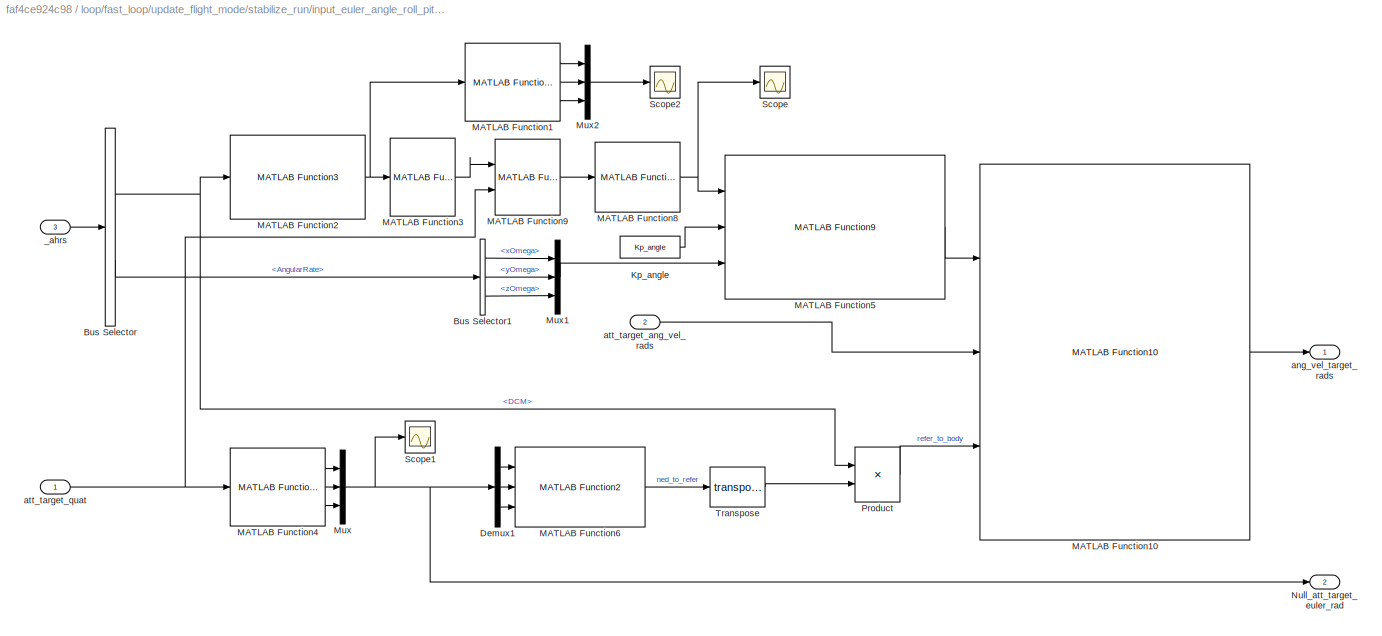
BLOCK [SubSystem] loop/fast_loop/update_flight_mode/stabilize_run/input_euler_angle_roll_pitch_euler_rate_yaw_smooth/attitude_controller_run_euler/attitude_controller_run_quat
  Ports = [3, 2]
  RequestExecContextInheritance = off
  Variant = off
BLOCK [BusSelector] loop/fast_loop/update_flight_mode/stabilize_run/input_euler_angle_roll_pitch_euler_rate_yaw_smooth/attitude_controller_run_euler/attitude_controller_run_quat/Bus Selector
  OutputSignals = NEDState.Attitude.DCM,BodyState.AngularRate
  Ports = [1, 2]
BLOCK [BusSelector] loop/fast_loop/update_flight_mode/stabilize_run/input_euler_angle_roll_pitch_euler_rate_yaw_smooth/attitude_controller_run_euler/attitude_controller_run_quat/Bus Selector1
  OutputSignals = xOmega,yOmega,zOmega
  Ports = [1, 3]
BLOCK [Demux] loop/fast_loop/update_flight_mode/stabilize_run/input_euler_angle_roll_pitch_euler_rate_yaw_smooth/attitude_controller_run_euler/attitude_controller_run_quat/Demux1
  DisplayOption = bar
  Outputs = 3
  Ports = [1, 3]
BLOCK [Constant] loop/fast_loop/update_flight_mode/stabilize_run/input_euler_angle_roll_pitch_euler_rate_yaw_smooth/attitude_controller_run_euler/attitude_controller_run_quat/Kp_angle
  Description = 低通滤波器的时间常数
  Value = Kp_angle
BLOCK [Reference] loop/fast_loop/update_flight_mode/stabilize_run/input_euler_angle_roll_pitch_euler_rate_yaw_smooth/attitude_controller_run_euler/attitude_controller_run_quat/MATLAB Function1  REF=Lib_AP_Math/MATLAB Function6
  Ports = [1, 3]
  SourceBlock = Lib_AP_Math/MATLAB Function6
  SourceType = SubSystem
BLOCK [Reference] loop/fast_loop/update_flight_mode/stabilize_run/input_euler_angle_roll_pitch_euler_rate_yaw_smooth/attitude_controller_run_euler/attitude_controller_run_quat/MATLAB Function10  REF=Lib_AC_AttitudeControl/MATLAB Function10
  Ports = [3, 1]
  SourceBlock = Lib_AC_AttitudeControl/MATLAB Function10
  SourceType = SubSystem
BLOCK [Reference] loop/fast_loop/update_flight_mode/stabilize_run/input_euler_angle_roll_pitch_euler_rate_yaw_smooth/attitude_controller_run_euler/attitude_controller_run_quat/MATLAB Function2  REF=Lib_AP_Math/MATLAB Function3
  Ports = [1, 1]
  SourceBlock = Lib_AP_Math/MATLAB Function3
  SourceType = SubSystem
BLOCK [Reference] loop/fast_loop/update_flight_mode/stabilize_run/input_euler_angle_roll_pitch_euler_rate_yaw_smooth/attitude_controller_run_euler/attitude_controller_run_quat/MATLAB Function3  REF=Lib_AP_Math/MATLAB Function4
  Ports = [1, 1]
  SourceBlock = Lib_AP_Math/MATLAB Function4
  SourceType = SubSystem
BLOCK [Reference] loop/fast_loop/update_flight_mode/stabilize_run/input_euler_angle_roll_pitch_euler_rate_yaw_smooth/attitude_controller_run_euler/attitude_controller_run_quat/MATLAB Function4  REF=Lib_AP_Math/MATLAB Function6
  Ports = [1, 3]
  SourceBlock = Lib_AP_Math/MATLAB Function6
  SourceType = SubSystem
BLOCK [Reference] loop/fast_loop/update_flight_mode/stabilize_run/input_euler_angle_roll_pitch_euler_rate_yaw_smooth/attitude_controller_run_euler/attitude_controller_run_quat/MATLAB Function5  REF=Lib_AC_AttitudeControl/MATLAB Function9
  Ports = [3, 1]
  SourceBlock = Lib_AC_AttitudeControl/MATLAB Function9
  SourceType = SubSystem
BLOCK [Reference] loop/fast_loop/update_flight_mode/stabilize_run/input_euler_angle_roll_pitch_euler_rate_yaw_smooth/attitude_controller_run_euler/attitude_controller_run_quat/MATLAB Function6  REF=Lib_AP_AHRS/MATLAB Function2
  Ports = [3, 1]
  SourceBlock = Lib_AP_AHRS/MATLAB Function2
  SourceType = SubSystem
BLOCK [Reference] loop/fast_loop/update_flight_mode/stabilize_run/input_euler_angle_roll_pitch_euler_rate_yaw_smooth/attitude_controller_run_euler/attitude_controller_run_quat/MATLAB Function8  REF=Lib_AP_Math/MATLAB Function8
  Ports = [1, 1]
  SourceBlock = Lib_AP_Math/MATLAB Function8
  SourceType = SubSystem
BLOCK [Reference] loop/fast_loop/update_flight_mode/stabilize_run/input_euler_angle_roll_pitch_euler_rate_yaw_smooth/attitude_controller_run_euler/attitude_controller_run_quat/MATLAB Function9  REF=Lib_AP_Math/MATLAB Function7
  Ports = [2, 1]
  SourceBlock = Lib_AP_Math/MATLAB Function7
  SourceType = SubSystem
BLOCK [Mux] loop/fast_loop/update_flight_mode/stabilize_run/input_euler_angle_roll_pitch_euler_rate_yaw_smooth/attitude_controller_run_euler/attitude_controller_run_quat/Mux
  DisplayOption = bar
  Inputs = 3
  Ports = [3, 1]
BLOCK [Mux] loop/fast_loop/update_flight_mode/stabilize_run/input_euler_angle_roll_pitch_euler_rate_yaw_smooth/attitude_controller_run_euler/attitude_controller_run_quat/Mux1
  DisplayOption = bar
  Inputs = 3
  Ports = [3, 1]
BLOCK [Mux] loop/fast_loop/update_flight_mode/stabilize_run/input_euler_angle_roll_pitch_euler_rate_yaw_smooth/attitude_controller_run_euler/attitude_controller_run_quat/Mux2
  DisplayOption = bar
  Inputs = 3
  Ports = [3, 1]
BLOCK [Outport] loop/fast_loop/update_flight_mode/stabilize_run/input_euler_angle_roll_pitch_euler_rate_yaw_smooth/attitude_controller_run_euler/attitude_controller_run_quat/Null_att_target_euler_rad
  IconDisplay = Port number
  Port = 2
BLOCK [Product] loop/fast_loop/update_flight_mode/stabilize_run/input_euler_angle_roll_pitch_euler_rate_yaw_smooth/attitude_controller_run_euler/attitude_controller_run_quat/Product
  InputSameDT = off
  Multiplication = Matrix(*)
  OutDataTypeStr = Inherit: Inherit via internal rule
  Ports = [2, 1]
  SaturateOnIntegerOverflow = off
BLOCK [Scope] loop/fast_loop/update_flight_mode/stabilize_run/input_euler_angle_roll_pitch_euler_rate_yaw_smooth/attitude_controller_run_euler/attitude_controller_run_quat/Scope
  Ports = [1]
  ScopeSpecificationString = C++SS(StrPVP('Location','[1, 49, 1367, 727]'),StrPVP('Open','off'),MxPVP('AxesTitles',24,'struct(''axes1'',''%<SignalLabel>'')'),MxPVP('ScopeGraphics',28,'struct(''FigureColor'',''[0.5 0.5 0.5]'',''AxesColor'',''[0 0 0]'',''AxesTickColor'',''[1 1 1]'',''LineColors'',''[1 1 0;1 0 1;0 1 1;1 0 0;0 1 0;0 0 1]'',''LineStyles'',''-|-|-|-|-|-'',''LineWidths'',''[0.5 0.5 0.5 0.5 0.5 0.5]'',''MarkerStyles'...<+249ch>
BLOCK [Scope] loop/fast_loop/update_flight_mode/stabilize_run/input_euler_angle_roll_pitch_euler_rate_yaw_smooth/attitude_controller_run_euler/attitude_controller_run_quat/Scope1
  Ports = [1]
  ScopeSpecificationString = C++SS(StrPVP('Location','[535, 301, 859, 540]'),StrPVP('Open','off'),MxPVP('AxesTitles',24,'struct(''axes1'',''%<SignalLabel>'')'),MxPVP('ScopeGraphics',28,'struct(''FigureColor'',''[0.5 0.5 0.5]'',''AxesColor'',''[0 0 0]'',''AxesTickColor'',''[1 1 1]'',''LineColors'',''[1 1 0;1 0 1;0 1 1;1 0 0;0 1 0;0 0 1]'',''LineStyles'',''-|-|-|-|-|-'',''LineWidths'',''[0.5 0.5 0.5 0.5 0.5 0.5]'',''MarkerStyle...<+252ch>
BLOCK [Scope] loop/fast_loop/update_flight_mode/stabilize_run/input_euler_angle_roll_pitch_euler_rate_yaw_smooth/attitude_controller_run_euler/attitude_controller_run_quat/Scope2
  Ports = [1]
BLOCK [Math] loop/fast_loop/update_flight_mode/stabilize_run/input_euler_angle_roll_pitch_euler_rate_yaw_smooth/attitude_controller_run_euler/attitude_controller_run_quat/Transpose
  Operator = transpose
  Ports = [1, 1]
BLOCK [Inport] loop/fast_loop/update_flight_mode/stabilize_run/input_euler_angle_roll_pitch_euler_rate_yaw_smooth/attitude_controller_run_euler/attitude_controller_run_quat/_ahrs
  IconDisplay = Port number
  Port = 3
BLOCK [Outport] loop/fast_loop/update_flight_mode/stabilize_run/input_euler_angle_roll_pitch_euler_rate_yaw_smooth/attitude_controller_run_euler/attitude_controller_run_quat/ang_vel_target_rads
  IconDisplay = Port number
BLOCK [Inport] loop/fast_loop/update_flight_mode/stabilize_run/input_euler_angle_roll_pitch_euler_rate_yaw_smooth/attitude_controller_run_euler/attitude_controller_run_quat/att_target_ang_vel_rads
  IconDisplay = Port number
  Port = 2
BLOCK [Inport] loop/fast_loop/update_flight_mode/stabilize_run/input_euler_angle_roll_pitch_euler_rate_yaw_smooth/attitude_controller_run_euler/attitude_controller_run_quat/att_target_quat
  IconDisplay = Port number
BLOCK [Inport] loop/fast_loop/update_flight_mode/stabilize_run/input_euler_angle_roll_pitch_euler_rate_yaw_smooth/euler_roll_angle_cd
  IconDisplay = Port number
BLOCK [Reference] loop/fast_loop/update_flight_mode/stabilize_run/set_throttle_out  REF=Lib_AC_AttitudeControl/set_throttle_out
  Ports = [3, 3]
  SourceBlock = Lib_AC_AttitudeControl/set_throttle_out
  SourceType = SubSystem
BLOCK [Reference] loop/fast_loop/update_flight_mode/stabilize_run/update_simple_mode  REF=Lib_AC_AttitudeControl/update_simple_mode
  Ports = [2, 1]
  SourceBlock = Lib_AC_AttitudeControl/update_simple_mode
  SourceType = SubSystem
BLOCK [Outport] loop/motor_out
  IconDisplay = Port number
BLOCK [Constant] loop/motors_trysignal
BLOCK [SubSystem] loop/scheduler.run
  Description = AC_PID控制库
  Ports = [1, 1]
  RequestExecContextInheritance = off
  Variant = off
BLOCK [Outport] loop/scheduler.run/MortorMatix
  IconDisplay = Port number
  PortDimensions = [4,4]
BLOCK [SubSystem] loop/scheduler.run/accel_cal_update
  Description = AC_PID控制库
  Ports = [1]
  RequestExecContextInheritance = off
  Variant = off
BLOCK [Inport] loop/scheduler.run/accel_cal_update/motors_flag1
  IconDisplay = Port number
BLOCK [SubSystem] loop/scheduler.run/compass_cal_update
  Description = AC_PID控制库
  Ports = [1]
  RequestExecContextInheritance = off
  Variant = off
BLOCK [Inport] loop/scheduler.run/compass_cal_update/motors_flag1
  IconDisplay = Port number
BLOCK [SubSystem] loop/scheduler.run/frequence_change
  Ports = [1, 1]
  RequestExecContextInheritance = off
  Variant = off
BLOCK [Inport] loop/scheduler.run/frequence_change/Din
  IconDisplay = Port number
BLOCK [Outport] loop/scheduler.run/frequence_change/Dout
  IconDisplay = Port number
BLOCK [RateTransition] loop/scheduler.run/frequence_change/Fast-to-Slow Transition1
BLOCK [Gain] loop/scheduler.run/frequence_change/Gain 1 Sample Time: -2
  OutDataTypeStr = Inherit: Inherit via internal rule
  ParamDataTypeStr = Inherit: Inherit via internal rule
  SampleTime = 0.0025
  SaturateOnIntegerOverflow = off
BLOCK [Gain] loop/scheduler.run/frequence_change/Gain 1 Sample Time: -3
  OutDataTypeStr = Inherit: Inherit via internal rule
  ParamDataTypeStr = Inherit: Inherit via internal rule
  SampleTime = Discretetime_1Hz
  SaturateOnIntegerOverflow = off
BLOCK [RateTransition] loop/scheduler.run/frequence_change/Slow-to-Fast Transition1
BLOCK [SubSystem] loop/scheduler.run/frequence_change1
  Ports = [1, 1]
  RequestExecContextInheritance = off
  Variant = off
BLOCK [Inport] loop/scheduler.run/frequence_change1/Din
  IconDisplay = Port number
BLOCK [Outport] loop/scheduler.run/frequence_change1/Dout
  IconDisplay = Port number
BLOCK [RateTransition] loop/scheduler.run/frequence_change1/Fast-to-Slow Transition1
BLOCK [Gain] loop/scheduler.run/frequence_change1/Gain 1 Sample Time: -2
  OutDataTypeStr = Inherit: Inherit via internal rule
  ParamDataTypeStr = Inherit: Inherit via internal rule
  SampleTime = 0.0025
  SaturateOnIntegerOverflow = off
BLOCK [Gain] loop/scheduler.run/frequence_change1/Gain 1 Sample Time: -3
  OutDataTypeStr = Inherit: Inherit via internal rule
  ParamDataTypeStr = Inherit: Inherit via internal rule
  SampleTime = 0.1
  SaturateOnIntegerOverflow = off
BLOCK [RateTransition] loop/scheduler.run/frequence_change1/Slow-to-Fast Transition1
BLOCK [SubSystem] loop/scheduler.run/frequence_change2
  Ports = [1, 1]
  RequestExecContextInheritance = off
  Variant = off
BLOCK [Inport] loop/scheduler.run/frequence_change2/Din
  IconDisplay = Port number
BLOCK [Outport] loop/scheduler.run/frequence_change2/Dout
  IconDisplay = Port number
BLOCK [RateTransition] loop/scheduler.run/frequence_change2/Fast-to-Slow Transition1
BLOCK [Gain] loop/scheduler.run/frequence_change2/Gain 1 Sample Time: -2
  OutDataTypeStr = Inherit: Inherit via internal rule
  ParamDataTypeStr = Inherit: Inherit via internal rule
  SampleTime = 0.0025
  SaturateOnIntegerOverflow = off
BLOCK [Gain] loop/scheduler.run/frequence_change2/Gain 1 Sample Time: -3
  OutDataTypeStr = Inherit: Inherit via internal rule
  ParamDataTypeStr = Inherit: Inherit via internal rule
  SampleTime = 0.01
  SaturateOnIntegerOverflow = off
BLOCK [RateTransition] loop/scheduler.run/frequence_change2/Slow-to-Fast Transition1
BLOCK [SubSystem] loop/scheduler.run/frequence_change3
  Ports = [1, 1]
  RequestExecContextInheritance = off
  Variant = off
BLOCK [Inport] loop/scheduler.run/frequence_change3/Din
  IconDisplay = Port number
BLOCK [Outport] loop/scheduler.run/frequence_change3/Dout
  IconDisplay = Port number
BLOCK [RateTransition] loop/scheduler.run/frequence_change3/Fast-to-Slow Transition1
BLOCK [Gain] loop/scheduler.run/frequence_change3/Gain 1 Sample Time: -2
  OutDataTypeStr = Inherit: Inherit via internal rule
  ParamDataTypeStr = Inherit: Inherit via internal rule
  SampleTime = 0.0025
  SaturateOnIntegerOverflow = off
BLOCK [Gain] loop/scheduler.run/frequence_change3/Gain 1 Sample Time: -3
  OutDataTypeStr = Inherit: Inherit via internal rule
  ParamDataTypeStr = Inherit: Inherit via internal rule
  SampleTime = 0.1
  SaturateOnIntegerOverflow = off
BLOCK [RateTransition] loop/scheduler.run/frequence_change3/Slow-to-Fast Transition1
BLOCK [Inport] loop/scheduler.run/motors_flag
  IconDisplay = Port number
BLOCK [SubSystem] loop/scheduler.run/one_HZ_loop
  Description = AC_PID控制库
  Ports = [1, 1]
  RequestExecContextInheritance = off
  Variant = off
BLOCK [Outport] loop/scheduler.run/one_HZ_loop/MortorMatix
  IconDisplay = Port number
  PortDimensions = [4,4]
BLOCK [Inport] loop/scheduler.run/one_HZ_loop/motors_angle
  IconDisplay = Port number
BLOCK [SubSystem] loop/scheduler.run/one_HZ_loop/set_frame_orientation
  Ports = [0, 1]
  RequestExecContextInheritance = off
  Variant = off
BLOCK [Demux] loop/scheduler.run/one_HZ_loop/set_frame_orientation/Demux
  DisplayOption = bar
  Outputs = 2
  Ports = [1, 2]
BLOCK [Demux] loop/scheduler.run/one_HZ_loop/set_frame_orientation/Demux1
  DisplayOption = bar
  Outputs = 2
  Ports = [1, 2]
BLOCK [Demux] loop/scheduler.run/one_HZ_loop/set_frame_orientation/Demux2
  DisplayOption = bar
  Outputs = 2
  Ports = [1, 2]
BLOCK [Demux] loop/scheduler.run/one_HZ_loop/set_frame_orientation/Demux3
  DisplayOption = bar
  Outputs = 2
  Ports = [1, 2]
BLOCK [Reference] loop/scheduler.run/one_HZ_loop/set_frame_orientation/MATLAB Function  REF=Lib_AP_Motors/MATLAB Function
  Ports = [4, 1]
  SourceBlock = Lib_AP_Motors/MATLAB Function
  SourceType = SubSystem
BLOCK [Outport] loop/scheduler.run/one_HZ_loop/set_frame_orientation/MortorMatix
  IconDisplay = Port number
  PortDimensions = [4,4]
BLOCK [Mux] loop/scheduler.run/one_HZ_loop/set_frame_orientation/Mux
  DisplayOption = bar
  Ports = [4, 1]
BLOCK [Mux] loop/scheduler.run/one_HZ_loop/set_frame_orientation/Mux1
  DisplayOption = bar
  Ports = [4, 1]
BLOCK [Mux] loop/scheduler.run/one_HZ_loop/set_frame_orientation/Mux2
  DisplayOption = bar
  Ports = [4, 1]
BLOCK [Mux] loop/scheduler.run/one_HZ_loop/set_frame_orientation/Mux3
  DisplayOption = bar
  Ports = [4, 1]
BLOCK [Selector] loop/scheduler.run/one_HZ_loop/set_frame_orientation/Selector
  IndexOptions = Index vector (dialog),Index vector (dialog)
  Indices = [1],[1 2]
  InputPortWidth = 3
  NumberOfDimensions = 2
  OutputSizes = 1,1
  Ports = [1, 1]
BLOCK [Selector] loop/scheduler.run/one_HZ_loop/set_frame_orientation/Selector1
  IndexOptions = Index vector (dialog),Index vector (dialog)
  Indices = [2],[1 2]
  InputPortWidth = 3
  NumberOfDimensions = 2
  OutputSizes = 1,1
  Ports = [1, 1]
BLOCK [Selector] loop/scheduler.run/one_HZ_loop/set_frame_orientation/Selector2
  IndexOptions = Index vector (dialog),Index vector (dialog)
  Indices = [3],[1 2]
  InputPortWidth = 3
  NumberOfDimensions = 2
  OutputSizes = 1,1
  Ports = [1, 1]
BLOCK [Selector] loop/scheduler.run/one_HZ_loop/set_frame_orientation/Selector3
  IndexOptions = Index vector (dialog),Index vector (dialog)
  Indices = [4],[1 2]
  InputPortWidth = 3
  NumberOfDimensions = 2
  OutputSizes = 1,1
  Ports = [1, 1]
BLOCK [Reference] loop/scheduler.run/one_HZ_loop/set_frame_orientation/add_motor  REF=Lib_AP_Motors/add_motor
  Ports = [2, 4]
  SourceBlock = Lib_AP_Motors/add_motor
  SourceType = SubSystem
BLOCK [Reference] loop/scheduler.run/one_HZ_loop/set_frame_orientation/add_motor1  REF=Lib_AP_Motors/add_motor
  Ports = [2, 4]
  SourceBlock = Lib_AP_Motors/add_motor
  SourceType = SubSystem
BLOCK [Reference] loop/scheduler.run/one_HZ_loop/set_frame_orientation/add_motor2  REF=Lib_AP_Motors/add_motor
  Ports = [2, 4]
  SourceBlock = Lib_AP_Motors/add_motor
  SourceType = SubSystem
BLOCK [Reference] loop/scheduler.run/one_HZ_loop/set_frame_orientation/add_motor3  REF=Lib_AP_Motors/add_motor
  Ports = [2, 4]
  SourceBlock = Lib_AP_Motors/add_motor
  SourceType = SubSystem
BLOCK [Constant] loop/scheduler.run/one_HZ_loop/set_frame_orientation/angle5
  Description = 低通滤波器的时间常数
  SampleTime = Discretetime_1Hz
  Value = MotorLayout
BLOCK [SubSystem] loop/scheduler.run/ten_hz_logging_loop
  Description = AC_PID控制库
  Ports = [1]
  RequestExecContextInheritance = off
  Variant = off
BLOCK [Inport] loop/scheduler.run/ten_hz_logging_loop/motors_flag1
  IconDisplay = Port number
BLOCK [Inport] loop/sensors
  IconDisplay = Port number
  OutDataTypeStr = Bus: Sensors
BLOCK [Outport] motor_out
  IconDisplay = Port number
BLOCK [Inport] rc_in
  IconDisplay = Port number
  PortDimensions = channelnum
BLOCK [Inport] sensors
  IconDisplay = Port number
  OutDataTypeStr = Bus: Sensors
  Port = 3
BLOCK [SubSystem] set_up
  Description = AC_PID控制库
  Ports = []
  RequestExecContextInheritance = off
  Variant = off
ANNOTATION loop/fast_loop/motors_output/motors.output/output_armed_stabilizing: 机动角度太大，这就达到了上限制了，角度会振动，注意考虑这个因素，可能使得飞机不稳定。
ANNOTATION loop/fast_loop/motors_output/motors.output/output_to_motors/calc_thrust_to_pwm: 这个关系是根据输入输出范围简单线性化得到的，有待完善
ANNOTATION loop/fast_loop/motors_output/motors.output/update_throttle_filter: 这里进行了截止频率为0的低筒滤波，等效于1,故省略
ANNOTATION loop/fast_loop/rate_controller_run: roll_sensor
ANNOTATION loop/fast_loop/update_flight_mode/althold_run/input_euler_angle_roll_pitch_euler_rate_yaw_smooth1/Subsystem2: 前馈，大地坐标
ANNOTATION loop/fast_loop/update_flight_mode/althold_run/set_throttle_out/set_alt_target_from_climb_rate_ff: 简化了很多，以后应该补上
ANNOTATION loop/fast_loop/update_flight_mode/althold_run/set_throttle_out/update_z_controller/pos_to_rate_z: in cm，positive
ANNOTATION loop/fast_loop/update_flight_mode/poshold_run/get_pilot_desired: 转为cm/s为单位
ANNOTATION loop/fast_loop/update_flight_mode/poshold_run/input_euler_angle_roll_pitch_euler_rate_yaw_smooth1/Subsystem2: 前馈，大地坐标
ANNOTATION loop/fast_loop/update_flight_mode/poshold_run/pos_controller/pos_to_acc: in cm，positive
ANNOTATION loop/fast_loop/update_flight_mode/poshold_run/pos_controller/pos_to_acc: 这应该暂时不用平方根控制器，因为是线性关系
ANNOTATION loop/fast_loop/update_flight_mode/poshold_run/pos_controller/pos_to_acc1: in cm，positive
ANNOTATION loop/fast_loop/update_flight_mode/poshold_run/pos_controller/pos_to_acc1: 这应该暂时不用平方根控制器，因为是线性关系
ANNOTATION loop/fast_loop/update_flight_mode/poshold_run/pos_controller/set_target_pos/set_target_from_rate: 简化了很多，以后应该补上
ANNOTATION loop/fast_loop/update_flight_mode/poshold_run/pos_controller/set_target_pos/set_target_from_rate1: 简化了很多，以后应该补上
ANNOTATION loop/fast_loop/update_flight_mode/poshold_run/set_throttle_out/set_alt_target_from_climb_rate_ff: 简化了很多，以后应该补上
ANNOTATION loop/fast_loop/update_flight_mode/poshold_run/set_throttle_out/update_z_controller/pos_to_rate_z: in cm，positive
ANNOTATION loop/fast_loop/update_flight_mode/stabilize_run/input_euler_angle_roll_pitch_euler_rate_yaw_smooth/Subsystem2: 前馈，大地坐标
LINE StateTest:1 -> loop:2
LINE loop/LogData/Demux1:1 -> loop/LogData/Mux1:2
LINE loop/LogData/Demux1:2 -> loop/LogData/Mux2:2
LINE loop/LogData/Demux1:3 -> loop/LogData/Mux3:2
LINE loop/LogData/Demux:1 -> loop/LogData/Mux1:1
LINE loop/LogData/Demux:2 -> loop/LogData/Mux2:1
LINE loop/LogData/Demux:3 -> loop/LogData/Mux3:1
LINE loop/LogData/Digital Clock:1 -> loop/LogData/To Workspace2:1
NET loop/LogData/From1:1 -> loop/LogData/Demux:1, loop/LogData/To Workspace:1
NET loop/LogData/From2:1 -> loop/LogData/Demux1:1, loop/LogData/datachange1:1
LINE loop/LogData/From3:1 -> loop/LogData/datachange3:1
LINE loop/LogData/From:1 -> loop/LogData/datachange2:1
LINE loop/LogData/Mux1:1 -> loop/LogData/Pitch_watch1:1
LINE loop/LogData/Mux2:1 -> loop/LogData/Pitch_watch:1
LINE loop/LogData/Mux3:1 -> loop/LogData/yaw_watch:1
LINE loop/LogData/datachange1:1 -> loop/LogData/To Workspace1:1
LINE loop/LogData/datachange2:1 -> loop/LogData/To Workspace3:1
LINE loop/LogData/datachange3:1 -> loop/LogData/To Workspace4:1
LINE loop/Slow-to-Fast Transition1:1 -> loop/fast_loop:3
LINE loop/StateTest:1 -> loop/fast_loop:2
NET loop/fast_loop/AHRS:1 -> loop/fast_loop/Bus Selector8:1, loop/fast_loop/update_flight_mode:1
LINE loop/fast_loop/Bus Selector8:1 -> loop/fast_loop/rate_controller_run:2
LINE loop/fast_loop/MotorMatix:1 -> loop/fast_loop/motors_output:2
LINE loop/fast_loop/Mux2:1 -> loop/fast_loop/motors_output:1
LINE loop/fast_loop/StateTest:1 -> loop/fast_loop/AHRS:2
LINE loop/fast_loop/motors_output/MotorMatix:1 -> loop/fast_loop/motors_output/motors.output:2
LINE loop/fast_loop/motors_output/motors.output/Demux:1 -> loop/fast_loop/motors_output/motors.output/update_throttle_filter:1
LINE loop/fast_loop/motors_output/motors.output/Demux:2 -> loop/fast_loop/motors_output/motors.output/Mux2:2
LINE loop/fast_loop/motors_output/motors.output/Demux:3 -> loop/fast_loop/motors_output/motors.output/Mux2:3
LINE loop/fast_loop/motors_output/motors.output/Demux:4 -> loop/fast_loop/motors_output/motors.output/Mux2:4
LINE loop/fast_loop/motors_output/motors.output/MotorMatix:1 -> loop/fast_loop/motors_output/motors.output/output_armed_stabilizing:2
LINE loop/fast_loop/motors_output/motors.output/Mux2:1 -> loop/fast_loop/motors_output/motors.output/output_armed_stabilizing:1
LINE loop/fast_loop/motors_output/motors.output/output_armed_stabilizing/Constant:1 -> loop/fast_loop/motors_output/motors.output/output_armed_stabilizing/Saturation Dynamic:1
LINE loop/fast_loop/motors_output/motors.output/output_armed_stabilizing/MotorMatix:1 -> loop/fast_loop/motors_output/motors.output/output_armed_stabilizing/Product:1
LINE loop/fast_loop/motors_output/motors.output/output_armed_stabilizing/Product:1 -> loop/fast_loop/motors_output/motors.output/output_armed_stabilizing/Saturation Dynamic:2
NET loop/fast_loop/motors_output/motors.output/output_armed_stabilizing/Saturation Dynamic:1 -> loop/fast_loop/motors_output/motors.output/output_armed_stabilizing/Scope1:1, loop/fast_loop/motors_output/motors.output/output_armed_stabilizing/thrust_rpyt_out:1
LINE loop/fast_loop/motors_output/motors.output/output_armed_stabilizing/throttleMinimum:1 -> loop/fast_loop/motors_output/motors.output/output_armed_stabilizing/Saturation Dynamic:3
LINE loop/fast_loop/motors_output/motors.output/output_armed_stabilizing/thrust:1 -> loop/fast_loop/motors_output/motors.output/output_armed_stabilizing/Product:2
LINE loop/fast_loop/motors_output/motors.output/output_armed_stabilizing:1 -> loop/fast_loop/motors_output/motors.output/output_to_motors:1
LINE loop/fast_loop/motors_output/motors.output/output_to_motors/calc_thrust_to_pwm/Add1:1 -> loop/fast_loop/motors_output/motors.output/output_to_motors/calc_thrust_to_pwm/motor_out:1
LINE loop/fast_loop/motors_output/motors.output/output_to_motors/calc_thrust_to_pwm/Constant1:1 -> loop/fast_loop/motors_output/motors.output/output_to_motors/calc_thrust_to_pwm/Product:1
LINE loop/fast_loop/motors_output/motors.output/output_to_motors/calc_thrust_to_pwm/Constant:1 -> loop/fast_loop/motors_output/motors.output/output_to_motors/calc_thrust_to_pwm/Add1:1
LINE loop/fast_loop/motors_output/motors.output/output_to_motors/calc_thrust_to_pwm/Product:1 -> loop/fast_loop/motors_output/motors.output/output_to_motors/calc_thrust_to_pwm/Add1:2
LINE loop/fast_loop/motors_output/motors.output/output_to_motors/calc_thrust_to_pwm/thrust_in:1 -> loop/fast_loop/motors_output/motors.output/output_to_motors/calc_thrust_to_pwm/Product:2
LINE loop/fast_loop/motors_output/motors.output/output_to_motors/calc_thrust_to_pwm:1 -> loop/fast_loop/motors_output/motors.output/output_to_motors/motor_out:1
LINE loop/fast_loop/motors_output/motors.output/output_to_motors/thrust_rpyt_out:1 -> loop/fast_loop/motors_output/motors.output/output_to_motors/calc_thrust_to_pwm:1
LINE loop/fast_loop/motors_output/motors.output/output_to_motors:1 -> loop/fast_loop/motors_output/motors.output/motor_out:1
LINE loop/fast_loop/motors_output/motors.output/thrust:1 -> loop/fast_loop/motors_output/motors.output/Demux:1
LINE loop/fast_loop/motors_output/motors.output/update_throttle_filter/_throttle_in:1 -> loop/fast_loop/motors_output/motors.output/update_throttle_filter/_throttle_filter.out:1
LINE loop/fast_loop/motors_output/motors.output/update_throttle_filter:1 -> loop/fast_loop/motors_output/motors.output/Mux2:1
NET loop/fast_loop/motors_output/motors.output:1 -> loop/fast_loop/motors_output/Display:1, loop/fast_loop/motors_output/motor_out:1
LINE loop/fast_loop/motors_output/thrust:1 -> loop/fast_loop/motors_output/motors.output:1
LINE loop/fast_loop/motors_output:1 -> loop/fast_loop/motor_out:1
LINE loop/fast_loop/rate_controller_run/Demux1:1 -> loop/fast_loop/rate_controller_run/rate_bf_to_motor_roll:2
LINE loop/fast_loop/rate_controller_run/Demux1:2 -> loop/fast_loop/rate_controller_run/rate_bf_to_motor_pitch:2
LINE loop/fast_loop/rate_controller_run/Demux1:3 -> loop/fast_loop/rate_controller_run/rate_bf_to_motor_yaw:2
LINE loop/fast_loop/rate_controller_run/Demux:1 -> loop/fast_loop/rate_controller_run/rate_bf_to_motor_roll:1
LINE loop/fast_loop/rate_controller_run/Demux:2 -> loop/fast_loop/rate_controller_run/rate_bf_to_motor_pitch:1
LINE loop/fast_loop/rate_controller_run/Demux:3 -> loop/fast_loop/rate_controller_run/rate_bf_to_motor_yaw:1
LINE loop/fast_loop/rate_controller_run/ang_vel_target_rads:1 -> loop/fast_loop/rate_controller_run/Demux:1
LINE loop/fast_loop/rate_controller_run/get_gyro:1 -> loop/fast_loop/rate_controller_run/Demux1:1
LINE loop/fast_loop/rate_controller_run/rate_bf_to_motor_pitch:1 -> loop/fast_loop/rate_controller_run/_pitch_in:1
LINE loop/fast_loop/rate_controller_run/rate_bf_to_motor_roll:1 -> loop/fast_loop/rate_controller_run/_roll_in:1
LINE loop/fast_loop/rate_controller_run/rate_bf_to_motor_yaw:1 -> loop/fast_loop/rate_controller_run/_yaw_in:1
LINE loop/fast_loop/rate_controller_run:1 -> loop/fast_loop/Mux2:2
LINE loop/fast_loop/rate_controller_run:2 -> loop/fast_loop/Mux2:3
LINE loop/fast_loop/rate_controller_run:3 -> loop/fast_loop/Mux2:4
LINE loop/fast_loop/sensors:1 -> loop/fast_loop/AHRS:1
NET loop/fast_loop/update_flight_mode/Constant3:1 -> loop/fast_loop/update_flight_mode/Multiport Switch1:1, loop/fast_loop/update_flight_mode/Multiport Switch:1
LINE loop/fast_loop/update_flight_mode/Multiport Switch1:1 -> loop/fast_loop/update_flight_mode/ang_vel_target_rads:1
LINE loop/fast_loop/update_flight_mode/Multiport Switch:1 -> loop/fast_loop/update_flight_mode/_throttle_in:1
NET loop/fast_loop/update_flight_mode/_ahrs:1 -> loop/fast_loop/update_flight_mode/althold_run:1, loop/fast_loop/update_flight_mode/poshold_run:1, loop/fast_loop/update_flight_mode/stabilize_run:1
LINE loop/fast_loop/update_flight_mode/althold_run/LoadConstParameter1:1 -> loop/fast_loop/update_flight_mode/althold_run/set_throttle_out:3
NET loop/fast_loop/update_flight_mode/althold_run/_ahrs:1 -> loop/fast_loop/update_flight_mode/althold_run/input_euler_angle_roll_pitch_euler_rate_yaw_smooth1:2, loop/fast_loop/update_flight_mode/althold_run/set_throttle_out:2, loop/fast_loop/update_flight_mode/althold_run/update_simple_mode:2
NET loop/fast_loop/update_flight_mode/althold_run/get_pilot_desired/DEG_TO_RAD:1 -> loop/fast_loop/update_flight_mode/althold_run/get_pilot_desired/MATLAB Function1:1, loop/fast_loop/update_flight_mode/althold_run/get_pilot_desired/MATLAB Function2:1, loop/fast_loop/update_flight_mode/althold_run/get_pilot_desired/MATLAB Function:1
NET loop/fast_loop/update_flight_mode/althold_run/get_pilot_desired/From:1 -> loop/fast_loop/update_flight_mode/althold_run/get_pilot_desired/Selector1:1, loop/fast_loop/update_flight_mode/althold_run/get_pilot_desired/Selector2:1, loop/fast_loop/update_flight_mode/althold_run/get_pilot_desired/Selector3:1, loop/fast_loop/update_flight_mode/althold_run/get_pilot_desired/Selector:1
LINE loop/fast_loop/update_flight_mode/althold_run/get_pilot_desired/Gain1:1 -> loop/fast_loop/update_flight_mode/althold_run/get_pilot_desired/MATLAB Function:2
LINE loop/fast_loop/update_flight_mode/althold_run/get_pilot_desired/Gain2:1 -> loop/fast_loop/update_flight_mode/althold_run/get_pilot_desired/MATLAB Function1:2
LINE loop/fast_loop/update_flight_mode/althold_run/get_pilot_desired/Gain3:1 -> loop/fast_loop/update_flight_mode/althold_run/get_pilot_desired/MATLAB Function2:2
LINE loop/fast_loop/update_flight_mode/althold_run/get_pilot_desired/Gain4:1 -> loop/fast_loop/update_flight_mode/althold_run/get_pilot_desired/target_climb_rate:1
LINE loop/fast_loop/update_flight_mode/althold_run/get_pilot_desired/MATLAB Function1:1 -> loop/fast_loop/update_flight_mode/althold_run/get_pilot_desired/Mux:2
LINE loop/fast_loop/update_flight_mode/althold_run/get_pilot_desired/MATLAB Function2:1 -> loop/fast_loop/update_flight_mode/althold_run/get_pilot_desired/Mux:3
LINE loop/fast_loop/update_flight_mode/althold_run/get_pilot_desired/MATLAB Function:1 -> loop/fast_loop/update_flight_mode/althold_run/get_pilot_desired/Mux:1
LINE loop/fast_loop/update_flight_mode/althold_run/get_pilot_desired/Mux:1 -> loop/fast_loop/update_flight_mode/althold_run/get_pilot_desired/euler_cd:1
LINE loop/fast_loop/update_flight_mode/althold_run/get_pilot_desired/Selector1:1 -> loop/fast_loop/update_flight_mode/althold_run/get_pilot_desired/Gain2:1
LINE loop/fast_loop/update_flight_mode/althold_run/get_pilot_desired/Selector2:1 -> loop/fast_loop/update_flight_mode/althold_run/get_pilot_desired/Gain3:1
LINE loop/fast_loop/update_flight_mode/althold_run/get_pilot_desired/Selector3:1 -> loop/fast_loop/update_flight_mode/althold_run/get_pilot_desired/Gain4:1
LINE loop/fast_loop/update_flight_mode/althold_run/get_pilot_desired/Selector:1 -> loop/fast_loop/update_flight_mode/althold_run/get_pilot_desired/Gain1:1
LINE loop/fast_loop/update_flight_mode/althold_run/get_pilot_desired:1 -> loop/fast_loop/update_flight_mode/althold_run/update_simple_mode:1
LINE loop/fast_loop/update_flight_mode/althold_run/get_pilot_desired:2 -> loop/fast_loop/update_flight_mode/althold_run/set_throttle_out:1
LINE loop/fast_loop/update_flight_mode/althold_run/input_euler_angle_roll_pitch_euler_rate_yaw_smooth1/MATLAB Function1:1 -> loop/fast_loop/update_flight_mode/althold_run/input_euler_angle_roll_pitch_euler_rate_yaw_smooth1/attitude_controller_run_euler:2
LINE loop/fast_loop/update_flight_mode/althold_run/input_euler_angle_roll_pitch_euler_rate_yaw_smooth1/Subsystem2/Demux:1 -> loop/fast_loop/update_flight_mode/althold_run/input_euler_angle_roll_pitch_euler_rate_yaw_smooth1/Subsystem2/Mux2:1
LINE loop/fast_loop/update_flight_mode/althold_run/input_euler_angle_roll_pitch_euler_rate_yaw_smooth1/Subsystem2/Demux:2 -> loop/fast_loop/update_flight_mode/althold_run/input_euler_angle_roll_pitch_euler_rate_yaw_smooth1/Subsystem2/Mux2:2
NET loop/fast_loop/update_flight_mode/althold_run/input_euler_angle_roll_pitch_euler_rate_yaw_smooth1/Subsystem2/Input_from_rc:1 -> loop/fast_loop/update_flight_mode/althold_run/input_euler_angle_roll_pitch_euler_rate_yaw_smooth1/Subsystem2/Demux:1, loop/fast_loop/update_flight_mode/althold_run/input_euler_angle_roll_pitch_euler_rate_yaw_smooth1/Subsystem2/Selector:1, loop/fast_loop/update_flight_mode/althold_run/input_euler_angle_roll_pitch_euler_rate_yaw_smooth1/Subsystem2/roll_watch2:1
LINE loop/fast_loop/update_flight_mode/althold_run/input_euler_angle_roll_pitch_euler_rate_yaw_smooth1/Subsystem2/LoadConstParameter1:1 -> loop/fast_loop/update_flight_mode/althold_run/input_euler_angle_roll_pitch_euler_rate_yaw_smooth1/Subsystem2/MATLAB Function12:3
NET loop/fast_loop/update_flight_mode/althold_run/input_euler_angle_roll_pitch_euler_rate_yaw_smooth1/Subsystem2/MATLAB Function12:1 -> loop/fast_loop/update_flight_mode/althold_run/input_euler_angle_roll_pitch_euler_rate_yaw_smooth1/Subsystem2/Mux2:3, loop/fast_loop/update_flight_mode/althold_run/input_euler_angle_roll_pitch_euler_rate_yaw_smooth1/Subsystem2/roll_watch1:1
LINE loop/fast_loop/update_flight_mode/althold_run/input_euler_angle_roll_pitch_euler_rate_yaw_smooth1/Subsystem2/Mux1:1 -> loop/fast_loop/update_flight_mode/althold_run/input_euler_angle_roll_pitch_euler_rate_yaw_smooth1/Subsystem2/att_target_ang_vel_rads:1
LINE loop/fast_loop/update_flight_mode/althold_run/input_euler_angle_roll_pitch_euler_rate_yaw_smooth1/Subsystem2/Mux2:1 -> loop/fast_loop/update_flight_mode/althold_run/input_euler_angle_roll_pitch_euler_rate_yaw_smooth1/Subsystem2/Null_att_target_euler_rad_z:1
LINE loop/fast_loop/update_flight_mode/althold_run/input_euler_angle_roll_pitch_euler_rate_yaw_smooth1/Subsystem2/Null_att_target_euler_rad:1 -> loop/fast_loop/update_flight_mode/althold_run/input_euler_angle_roll_pitch_euler_rate_yaw_smooth1/Subsystem2/Selector1:1
NET loop/fast_loop/update_flight_mode/althold_run/input_euler_angle_roll_pitch_euler_rate_yaw_smooth1/Subsystem2/Selector1:1 -> loop/fast_loop/update_flight_mode/althold_run/input_euler_angle_roll_pitch_euler_rate_yaw_smooth1/Subsystem2/MATLAB Function12:2, loop/fast_loop/update_flight_mode/althold_run/input_euler_angle_roll_pitch_euler_rate_yaw_smooth1/Subsystem2/roll_watch:1
NET loop/fast_loop/update_flight_mode/althold_run/input_euler_angle_roll_pitch_euler_rate_yaw_smooth1/Subsystem2/Selector:1 -> loop/fast_loop/update_flight_mode/althold_run/input_euler_angle_roll_pitch_euler_rate_yaw_smooth1/Subsystem2/MATLAB Function12:1, loop/fast_loop/update_flight_mode/althold_run/input_euler_angle_roll_pitch_euler_rate_yaw_smooth1/Subsystem2/Mux1:3
LINE loop/fast_loop/update_flight_mode/althold_run/input_euler_angle_roll_pitch_euler_rate_yaw_smooth1/Subsystem2/att_target_ang_vel_rads.x:1 -> loop/fast_loop/update_flight_mode/althold_run/input_euler_angle_roll_pitch_euler_rate_yaw_smooth1/Subsystem2/Mux1:1
LINE loop/fast_loop/update_flight_mode/althold_run/input_euler_angle_roll_pitch_euler_rate_yaw_smooth1/Subsystem2/att_target_ang_vel_rads.y:1 -> loop/fast_loop/update_flight_mode/althold_run/input_euler_angle_roll_pitch_euler_rate_yaw_smooth1/Subsystem2/Mux1:2
NET loop/fast_loop/update_flight_mode/althold_run/input_euler_angle_roll_pitch_euler_rate_yaw_smooth1/Subsystem2:1 -> loop/fast_loop/update_flight_mode/althold_run/input_euler_angle_roll_pitch_euler_rate_yaw_smooth1/MATLAB Function1:1, loop/fast_loop/update_flight_mode/althold_run/input_euler_angle_roll_pitch_euler_rate_yaw_smooth1/attitude_controller_run_euler:1
LINE loop/fast_loop/update_flight_mode/althold_run/input_euler_angle_roll_pitch_euler_rate_yaw_smooth1/Subsystem2:2 -> loop/fast_loop/update_flight_mode/althold_run/input_euler_angle_roll_pitch_euler_rate_yaw_smooth1/MATLAB Function1:2
LINE loop/fast_loop/update_flight_mode/althold_run/input_euler_angle_roll_pitch_euler_rate_yaw_smooth1/Unit Delay1:1 -> loop/fast_loop/update_flight_mode/althold_run/input_euler_angle_roll_pitch_euler_rate_yaw_smooth1/Subsystem2:2
LINE loop/fast_loop/update_flight_mode/althold_run/input_euler_angle_roll_pitch_euler_rate_yaw_smooth1/_ahrs:1 -> loop/fast_loop/update_flight_mode/althold_run/input_euler_angle_roll_pitch_euler_rate_yaw_smooth1/attitude_controller_run_euler:3
LINE loop/fast_loop/update_flight_mode/althold_run/input_euler_angle_roll_pitch_euler_rate_yaw_smooth1/attitude_controller_run_euler/Demux:1 -> loop/fast_loop/update_flight_mode/althold_run/input_euler_angle_roll_pitch_euler_rate_yaw_smooth1/attitude_controller_run_euler/MATLAB Function1:1
LINE loop/fast_loop/update_flight_mode/althold_run/input_euler_angle_roll_pitch_euler_rate_yaw_smooth1/attitude_controller_run_euler/Demux:2 -> loop/fast_loop/update_flight_mode/althold_run/input_euler_angle_roll_pitch_euler_rate_yaw_smooth1/attitude_controller_run_euler/MATLAB Function1:2
LINE loop/fast_loop/update_flight_mode/althold_run/input_euler_angle_roll_pitch_euler_rate_yaw_smooth1/attitude_controller_run_euler/Demux:3 -> loop/fast_loop/update_flight_mode/althold_run/input_euler_angle_roll_pitch_euler_rate_yaw_smooth1/attitude_controller_run_euler/MATLAB Function1:3
LINE loop/fast_loop/update_flight_mode/althold_run/input_euler_angle_roll_pitch_euler_rate_yaw_smooth1/attitude_controller_run_euler/MATLAB Function1:1 -> loop/fast_loop/update_flight_mode/althold_run/input_euler_angle_roll_pitch_euler_rate_yaw_smooth1/attitude_controller_run_euler/attitude_controller_run_quat:1
LINE loop/fast_loop/update_flight_mode/althold_run/input_euler_angle_roll_pitch_euler_rate_yaw_smooth1/attitude_controller_run_euler/_ahrs:1 -> loop/fast_loop/update_flight_mode/althold_run/input_euler_angle_roll_pitch_euler_rate_yaw_smooth1/attitude_controller_run_euler/attitude_controller_run_quat:3
LINE loop/fast_loop/update_flight_mode/althold_run/input_euler_angle_roll_pitch_euler_rate_yaw_smooth1/attitude_controller_run_euler/att_target_ang_vel_rads:1 -> loop/fast_loop/update_flight_mode/althold_run/input_euler_angle_roll_pitch_euler_rate_yaw_smooth1/attitude_controller_run_euler/attitude_controller_run_quat:2
LINE loop/fast_loop/update_flight_mode/althold_run/input_euler_angle_roll_pitch_euler_rate_yaw_smooth1/attitude_controller_run_euler/att_target_euler_rad:1 -> loop/fast_loop/update_flight_mode/althold_run/input_euler_angle_roll_pitch_euler_rate_yaw_smooth1/attitude_controller_run_euler/Demux:1
LINE loop/fast_loop/update_flight_mode/althold_run/input_euler_angle_roll_pitch_euler_rate_yaw_smooth1/attitude_controller_run_euler/attitude_controller_run_quat/Bus Selector1:1 -> loop/fast_loop/update_flight_mode/althold_run/input_euler_angle_roll_pitch_euler_rate_yaw_smooth1/attitude_controller_run_euler/attitude_controller_run_quat/Mux1:1
LINE loop/fast_loop/update_flight_mode/althold_run/input_euler_angle_roll_pitch_euler_rate_yaw_smooth1/attitude_controller_run_euler/attitude_controller_run_quat/Bus Selector1:2 -> loop/fast_loop/update_flight_mode/althold_run/input_euler_angle_roll_pitch_euler_rate_yaw_smooth1/attitude_controller_run_euler/attitude_controller_run_quat/Mux1:2
LINE loop/fast_loop/update_flight_mode/althold_run/input_euler_angle_roll_pitch_euler_rate_yaw_smooth1/attitude_controller_run_euler/attitude_controller_run_quat/Bus Selector1:3 -> loop/fast_loop/update_flight_mode/althold_run/input_euler_angle_roll_pitch_euler_rate_yaw_smooth1/attitude_controller_run_euler/attitude_controller_run_quat/Mux1:3
NET loop/fast_loop/update_flight_mode/althold_run/input_euler_angle_roll_pitch_euler_rate_yaw_smooth1/attitude_controller_run_euler/attitude_controller_run_quat/Bus Selector:1 -> loop/fast_loop/update_flight_mode/althold_run/input_euler_angle_roll_pitch_euler_rate_yaw_smooth1/attitude_controller_run_euler/attitude_controller_run_quat/MATLAB Function2:1, loop/fast_loop/update_flight_mode/althold_run/input_euler_angle_roll_pitch_euler_rate_yaw_smooth1/attitude_controller_run_euler/attitude_controller_run_quat/Product:1
LINE loop/fast_loop/update_flight_mode/althold_run/input_euler_angle_roll_pitch_euler_rate_yaw_smooth1/attitude_controller_run_euler/attitude_controller_run_quat/Bus Selector:2 -> loop/fast_loop/update_flight_mode/althold_run/input_euler_angle_roll_pitch_euler_rate_yaw_smooth1/attitude_controller_run_euler/attitude_controller_run_quat/Bus Selector1:1
LINE loop/fast_loop/update_flight_mode/althold_run/input_euler_angle_roll_pitch_euler_rate_yaw_smooth1/attitude_controller_run_euler/attitude_controller_run_quat/Demux1:1 -> loop/fast_loop/update_flight_mode/althold_run/input_euler_angle_roll_pitch_euler_rate_yaw_smooth1/attitude_controller_run_euler/attitude_controller_run_quat/MATLAB Function6:1
LINE loop/fast_loop/update_flight_mode/althold_run/input_euler_angle_roll_pitch_euler_rate_yaw_smooth1/attitude_controller_run_euler/attitude_controller_run_quat/Demux1:2 -> loop/fast_loop/update_flight_mode/althold_run/input_euler_angle_roll_pitch_euler_rate_yaw_smooth1/attitude_controller_run_euler/attitude_controller_run_quat/MATLAB Function6:2
LINE loop/fast_loop/update_flight_mode/althold_run/input_euler_angle_roll_pitch_euler_rate_yaw_smooth1/attitude_controller_run_euler/attitude_controller_run_quat/Demux1:3 -> loop/fast_loop/update_flight_mode/althold_run/input_euler_angle_roll_pitch_euler_rate_yaw_smooth1/attitude_controller_run_euler/attitude_controller_run_quat/MATLAB Function6:3
LINE loop/fast_loop/update_flight_mode/althold_run/input_euler_angle_roll_pitch_euler_rate_yaw_smooth1/attitude_controller_run_euler/attitude_controller_run_quat/Kp_angle:1 -> loop/fast_loop/update_flight_mode/althold_run/input_euler_angle_roll_pitch_euler_rate_yaw_smooth1/attitude_controller_run_euler/attitude_controller_run_quat/MATLAB Function5:2
LINE loop/fast_loop/update_flight_mode/althold_run/input_euler_angle_roll_pitch_euler_rate_yaw_smooth1/attitude_controller_run_euler/attitude_controller_run_quat/MATLAB Function10:1 -> loop/fast_loop/update_flight_mode/althold_run/input_euler_angle_roll_pitch_euler_rate_yaw_smooth1/attitude_controller_run_euler/attitude_controller_run_quat/ang_vel_target_rads:1
LINE loop/fast_loop/update_flight_mode/althold_run/input_euler_angle_roll_pitch_euler_rate_yaw_smooth1/attitude_controller_run_euler/attitude_controller_run_quat/MATLAB Function2:1 -> loop/fast_loop/update_flight_mode/althold_run/input_euler_angle_roll_pitch_euler_rate_yaw_smooth1/attitude_controller_run_euler/attitude_controller_run_quat/MATLAB Function3:1
LINE loop/fast_loop/update_flight_mode/althold_run/input_euler_angle_roll_pitch_euler_rate_yaw_smooth1/attitude_controller_run_euler/attitude_controller_run_quat/MATLAB Function3:1 -> loop/fast_loop/update_flight_mode/althold_run/input_euler_angle_roll_pitch_euler_rate_yaw_smooth1/attitude_controller_run_euler/attitude_controller_run_quat/MATLAB Function9:1
LINE loop/fast_loop/update_flight_mode/althold_run/input_euler_angle_roll_pitch_euler_rate_yaw_smooth1/attitude_controller_run_euler/attitude_controller_run_quat/MATLAB Function4:1 -> loop/fast_loop/update_flight_mode/althold_run/input_euler_angle_roll_pitch_euler_rate_yaw_smooth1/attitude_controller_run_euler/attitude_controller_run_quat/Mux:1
LINE loop/fast_loop/update_flight_mode/althold_run/input_euler_angle_roll_pitch_euler_rate_yaw_smooth1/attitude_controller_run_euler/attitude_controller_run_quat/MATLAB Function4:2 -> loop/fast_loop/update_flight_mode/althold_run/input_euler_angle_roll_pitch_euler_rate_yaw_smooth1/attitude_controller_run_euler/attitude_controller_run_quat/Mux:2
LINE loop/fast_loop/update_flight_mode/althold_run/input_euler_angle_roll_pitch_euler_rate_yaw_smooth1/attitude_controller_run_euler/attitude_controller_run_quat/MATLAB Function4:3 -> loop/fast_loop/update_flight_mode/althold_run/input_euler_angle_roll_pitch_euler_rate_yaw_smooth1/attitude_controller_run_euler/attitude_controller_run_quat/Mux:3
LINE loop/fast_loop/update_flight_mode/althold_run/input_euler_angle_roll_pitch_euler_rate_yaw_smooth1/attitude_controller_run_euler/attitude_controller_run_quat/MATLAB Function5:1 -> loop/fast_loop/update_flight_mode/althold_run/input_euler_angle_roll_pitch_euler_rate_yaw_smooth1/attitude_controller_run_euler/attitude_controller_run_quat/MATLAB Function10:1
LINE loop/fast_loop/update_flight_mode/althold_run/input_euler_angle_roll_pitch_euler_rate_yaw_smooth1/attitude_controller_run_euler/attitude_controller_run_quat/MATLAB Function6:1 -> loop/fast_loop/update_flight_mode/althold_run/input_euler_angle_roll_pitch_euler_rate_yaw_smooth1/attitude_controller_run_euler/attitude_controller_run_quat/Transpose:1
LINE loop/fast_loop/update_flight_mode/althold_run/input_euler_angle_roll_pitch_euler_rate_yaw_smooth1/attitude_controller_run_euler/attitude_controller_run_quat/MATLAB Function8:1 -> loop/fast_loop/update_flight_mode/althold_run/input_euler_angle_roll_pitch_euler_rate_yaw_smooth1/attitude_controller_run_euler/attitude_controller_run_quat/MATLAB Function5:1
LINE loop/fast_loop/update_flight_mode/althold_run/input_euler_angle_roll_pitch_euler_rate_yaw_smooth1/attitude_controller_run_euler/attitude_controller_run_quat/MATLAB Function9:1 -> loop/fast_loop/update_flight_mode/althold_run/input_euler_angle_roll_pitch_euler_rate_yaw_smooth1/attitude_controller_run_euler/attitude_controller_run_quat/MATLAB Function8:1
LINE loop/fast_loop/update_flight_mode/althold_run/input_euler_angle_roll_pitch_euler_rate_yaw_smooth1/attitude_controller_run_euler/attitude_controller_run_quat/Mux1:1 -> loop/fast_loop/update_flight_mode/althold_run/input_euler_angle_roll_pitch_euler_rate_yaw_smooth1/attitude_controller_run_euler/attitude_controller_run_quat/MATLAB Function5:3
NET loop/fast_loop/update_flight_mode/althold_run/input_euler_angle_roll_pitch_euler_rate_yaw_smooth1/attitude_controller_run_euler/attitude_controller_run_quat/Mux:1 -> loop/fast_loop/update_flight_mode/althold_run/input_euler_angle_roll_pitch_euler_rate_yaw_smooth1/attitude_controller_run_euler/attitude_controller_run_quat/Demux1:1, loop/fast_loop/update_flight_mode/althold_run/input_euler_angle_roll_pitch_euler_rate_yaw_smooth1/attitude_controller_run_euler/attitude_controller_run_quat/Null_att_target_euler_rad:1
LINE loop/fast_loop/update_flight_mode/althold_run/input_euler_angle_roll_pitch_euler_rate_yaw_smooth1/attitude_controller_run_euler/attitude_controller_run_quat/Product:1 -> loop/fast_loop/update_flight_mode/althold_run/input_euler_angle_roll_pitch_euler_rate_yaw_smooth1/attitude_controller_run_euler/attitude_controller_run_quat/MATLAB Function10:3
LINE loop/fast_loop/update_flight_mode/althold_run/input_euler_angle_roll_pitch_euler_rate_yaw_smooth1/attitude_controller_run_euler/attitude_controller_run_quat/Transpose:1 -> loop/fast_loop/update_flight_mode/althold_run/input_euler_angle_roll_pitch_euler_rate_yaw_smooth1/attitude_controller_run_euler/attitude_controller_run_quat/Product:2
LINE loop/fast_loop/update_flight_mode/althold_run/input_euler_angle_roll_pitch_euler_rate_yaw_smooth1/attitude_controller_run_euler/attitude_controller_run_quat/_ahrs:1 -> loop/fast_loop/update_flight_mode/althold_run/input_euler_angle_roll_pitch_euler_rate_yaw_smooth1/attitude_controller_run_euler/attitude_controller_run_quat/Bus Selector:1
LINE loop/fast_loop/update_flight_mode/althold_run/input_euler_angle_roll_pitch_euler_rate_yaw_smooth1/attitude_controller_run_euler/attitude_controller_run_quat/att_target_ang_vel_rads:1 -> loop/fast_loop/update_flight_mode/althold_run/input_euler_angle_roll_pitch_euler_rate_yaw_smooth1/attitude_controller_run_euler/attitude_controller_run_quat/MATLAB Function10:2
NET loop/fast_loop/update_flight_mode/althold_run/input_euler_angle_roll_pitch_euler_rate_yaw_smooth1/attitude_controller_run_euler/attitude_controller_run_quat/att_target_quat:1 -> loop/fast_loop/update_flight_mode/althold_run/input_euler_angle_roll_pitch_euler_rate_yaw_smooth1/attitude_controller_run_euler/attitude_controller_run_quat/MATLAB Function4:1, loop/fast_loop/update_flight_mode/althold_run/input_euler_angle_roll_pitch_euler_rate_yaw_smooth1/attitude_controller_run_euler/attitude_controller_run_quat/MATLAB Function9:2
LINE loop/fast_loop/update_flight_mode/althold_run/input_euler_angle_roll_pitch_euler_rate_yaw_smooth1/attitude_controller_run_euler/attitude_controller_run_quat:1 -> loop/fast_loop/update_flight_mode/althold_run/input_euler_angle_roll_pitch_euler_rate_yaw_smooth1/attitude_controller_run_euler/ang_vel_target_rads:1
LINE loop/fast_loop/update_flight_mode/althold_run/input_euler_angle_roll_pitch_euler_rate_yaw_smooth1/attitude_controller_run_euler/attitude_controller_run_quat:2 -> loop/fast_loop/update_flight_mode/althold_run/input_euler_angle_roll_pitch_euler_rate_yaw_smooth1/attitude_controller_run_euler/Null_att_target_euler_rad:1
LINE loop/fast_loop/update_flight_mode/althold_run/input_euler_angle_roll_pitch_euler_rate_yaw_smooth1/attitude_controller_run_euler:1 -> loop/fast_loop/update_flight_mode/althold_run/input_euler_angle_roll_pitch_euler_rate_yaw_smooth1/ang_vel_target_rads:1
LINE loop/fast_loop/update_flight_mode/althold_run/input_euler_angle_roll_pitch_euler_rate_yaw_smooth1/attitude_controller_run_euler:2 -> loop/fast_loop/update_flight_mode/althold_run/input_euler_angle_roll_pitch_euler_rate_yaw_smooth1/Unit Delay1:1
LINE loop/fast_loop/update_flight_mode/althold_run/input_euler_angle_roll_pitch_euler_rate_yaw_smooth1/euler_roll_angle_cd:1 -> loop/fast_loop/update_flight_mode/althold_run/input_euler_angle_roll_pitch_euler_rate_yaw_smooth1/Subsystem2:1
LINE loop/fast_loop/update_flight_mode/althold_run/input_euler_angle_roll_pitch_euler_rate_yaw_smooth1:1 -> loop/fast_loop/update_flight_mode/althold_run/ang_vel_target_rads:1
NET loop/fast_loop/update_flight_mode/althold_run/set_throttle_out/Unit Delay:1 -> loop/fast_loop/update_flight_mode/althold_run/set_throttle_out/set_alt_target_from_climb_rate_ff:1, loop/fast_loop/update_flight_mode/althold_run/set_throttle_out/update_z_controller:1
LINE loop/fast_loop/update_flight_mode/althold_run/set_throttle_out/_ahrs:1 -> loop/fast_loop/update_flight_mode/althold_run/set_throttle_out/update_z_controller:2
LINE loop/fast_loop/update_flight_mode/althold_run/set_throttle_out/dt:1 -> loop/fast_loop/update_flight_mode/althold_run/set_throttle_out/set_alt_target_from_climb_rate_ff:3
LINE loop/fast_loop/update_flight_mode/althold_run/set_throttle_out/set_alt_target_from_climb_rate_ff/Product:1 -> loop/fast_loop/update_flight_mode/althold_run/set_throttle_out/set_alt_target_from_climb_rate_ff/Subtract:1
LINE loop/fast_loop/update_flight_mode/althold_run/set_throttle_out/set_alt_target_from_climb_rate_ff/Subtract:1 -> loop/fast_loop/update_flight_mode/althold_run/set_throttle_out/set_alt_target_from_climb_rate_ff/Null_pos_target.z:1
LINE loop/fast_loop/update_flight_mode/althold_run/set_throttle_out/set_alt_target_from_climb_rate_ff/_pos_target.z:1 -> loop/fast_loop/update_flight_mode/althold_run/set_throttle_out/set_alt_target_from_climb_rate_ff/Subtract:2
LINE loop/fast_loop/update_flight_mode/althold_run/set_throttle_out/set_alt_target_from_climb_rate_ff/climb_rate_cms:1 -> loop/fast_loop/update_flight_mode/althold_run/set_throttle_out/set_alt_target_from_climb_rate_ff/Product:1
LINE loop/fast_loop/update_flight_mode/althold_run/set_throttle_out/set_alt_target_from_climb_rate_ff/dt:1 -> loop/fast_loop/update_flight_mode/althold_run/set_throttle_out/set_alt_target_from_climb_rate_ff/Product:2
NET loop/fast_loop/update_flight_mode/althold_run/set_throttle_out/set_alt_target_from_climb_rate_ff:1 -> loop/fast_loop/update_flight_mode/althold_run/set_throttle_out/Scope:1, loop/fast_loop/update_flight_mode/althold_run/set_throttle_out/Unit Delay:1
NET loop/fast_loop/update_flight_mode/althold_run/set_throttle_out/target_climb_rate:1 -> loop/fast_loop/update_flight_mode/althold_run/set_throttle_out/Scope:2, loop/fast_loop/update_flight_mode/althold_run/set_throttle_out/set_alt_target_from_climb_rate_ff:2
LINE loop/fast_loop/update_flight_mode/althold_run/set_throttle_out/update_z_controller/_ahrs:1 -> loop/fast_loop/update_flight_mode/althold_run/set_throttle_out/update_z_controller/pos_to_rate_z:1
LINE loop/fast_loop/update_flight_mode/althold_run/set_throttle_out/update_z_controller/_pos_target.z:1 -> loop/fast_loop/update_flight_mode/althold_run/set_throttle_out/update_z_controller/pos_to_rate_z:2
LINE loop/fast_loop/update_flight_mode/althold_run/set_throttle_out/update_z_controller/pos_to_rate_z/Bus Selector:1 -> loop/fast_loop/update_flight_mode/althold_run/set_throttle_out/update_z_controller/pos_to_rate_z/Gain:1
LINE loop/fast_loop/update_flight_mode/althold_run/set_throttle_out/update_z_controller/pos_to_rate_z/Bus Selector:2 -> loop/fast_loop/update_flight_mode/althold_run/set_throttle_out/update_z_controller/pos_to_rate_z/Gain2:1
LINE loop/fast_loop/update_flight_mode/althold_run/set_throttle_out/update_z_controller/pos_to_rate_z/Gain2:1 -> loop/fast_loop/update_flight_mode/althold_run/set_throttle_out/update_z_controller/pos_to_rate_z/rate_to_accel_z:2
NET loop/fast_loop/update_flight_mode/althold_run/set_throttle_out/update_z_controller/pos_to_rate_z/Gain:1 -> loop/fast_loop/update_flight_mode/althold_run/set_throttle_out/update_z_controller/pos_to_rate_z/Scope:2, loop/fast_loop/update_flight_mode/althold_run/set_throttle_out/update_z_controller/pos_to_rate_z/Subtract:2
LINE loop/fast_loop/update_flight_mode/althold_run/set_throttle_out/update_z_controller/pos_to_rate_z/MATLAB Function1:1 -> loop/fast_loop/update_flight_mode/althold_run/set_throttle_out/update_z_controller/pos_to_rate_z/rate_to_accel_z:1
LINE loop/fast_loop/update_flight_mode/althold_run/set_throttle_out/update_z_controller/pos_to_rate_z/Parameter1:1 -> loop/fast_loop/update_flight_mode/althold_run/set_throttle_out/update_z_controller/pos_to_rate_z/MATLAB Function1:2
LINE loop/fast_loop/update_flight_mode/althold_run/set_throttle_out/update_z_controller/pos_to_rate_z/Parameter2:1 -> loop/fast_loop/update_flight_mode/althold_run/set_throttle_out/update_z_controller/pos_to_rate_z/MATLAB Function1:3
NET loop/fast_loop/update_flight_mode/althold_run/set_throttle_out/update_z_controller/pos_to_rate_z/Subtract:1 -> loop/fast_loop/update_flight_mode/althold_run/set_throttle_out/update_z_controller/pos_to_rate_z/MATLAB Function1:1, loop/fast_loop/update_flight_mode/althold_run/set_throttle_out/update_z_controller/pos_to_rate_z/Scope:3
NET loop/fast_loop/update_flight_mode/althold_run/set_throttle_out/update_z_controller/pos_to_rate_z/_ahrs:1 -> loop/fast_loop/update_flight_mode/althold_run/set_throttle_out/update_z_controller/pos_to_rate_z/Bus Selector:1, loop/fast_loop/update_flight_mode/althold_run/set_throttle_out/update_z_controller/pos_to_rate_z/rate_to_accel_z:3
NET loop/fast_loop/update_flight_mode/althold_run/set_throttle_out/update_z_controller/pos_to_rate_z/_pos_target.z:1 -> loop/fast_loop/update_flight_mode/althold_run/set_throttle_out/update_z_controller/pos_to_rate_z/Scope:1, loop/fast_loop/update_flight_mode/althold_run/set_throttle_out/update_z_controller/pos_to_rate_z/Subtract:1
LINE loop/fast_loop/update_flight_mode/althold_run/set_throttle_out/update_z_controller/pos_to_rate_z/rate_to_accel_z/Parameter1:1 -> loop/fast_loop/update_flight_mode/althold_run/set_throttle_out/update_z_controller/pos_to_rate_z/rate_to_accel_z/Product:2
LINE loop/fast_loop/update_flight_mode/althold_run/set_throttle_out/update_z_controller/pos_to_rate_z/rate_to_accel_z/Product:1 -> loop/fast_loop/update_flight_mode/althold_run/set_throttle_out/update_z_controller/pos_to_rate_z/rate_to_accel_z/accel_to_throttle:1
NET loop/fast_loop/update_flight_mode/althold_run/set_throttle_out/update_z_controller/pos_to_rate_z/rate_to_accel_z/Subtract:1 -> loop/fast_loop/update_flight_mode/althold_run/set_throttle_out/update_z_controller/pos_to_rate_z/rate_to_accel_z/Product:1, loop/fast_loop/update_flight_mode/althold_run/set_throttle_out/update_z_controller/pos_to_rate_z/rate_to_accel_z/Scope:3
LINE loop/fast_loop/update_flight_mode/althold_run/set_throttle_out/update_z_controller/pos_to_rate_z/rate_to_accel_z/_ahrs:1 -> loop/fast_loop/update_flight_mode/althold_run/set_throttle_out/update_z_controller/pos_to_rate_z/rate_to_accel_z/accel_to_throttle:2
NET loop/fast_loop/update_flight_mode/althold_run/set_throttle_out/update_z_controller/pos_to_rate_z/rate_to_accel_z/_vel_cur.z:1 -> loop/fast_loop/update_flight_mode/althold_run/set_throttle_out/update_z_controller/pos_to_rate_z/rate_to_accel_z/Scope:2, loop/fast_loop/update_flight_mode/althold_run/set_throttle_out/update_z_controller/pos_to_rate_z/rate_to_accel_z/Subtract:2
NET loop/fast_loop/update_flight_mode/althold_run/set_throttle_out/update_z_controller/pos_to_rate_z/rate_to_accel_z/_vel_target.z:1 -> loop/fast_loop/update_flight_mode/althold_run/set_throttle_out/update_z_controller/pos_to_rate_z/rate_to_accel_z/Scope:1, loop/fast_loop/update_flight_mode/althold_run/set_throttle_out/update_z_controller/pos_to_rate_z/rate_to_accel_z/Subtract:1
LINE loop/fast_loop/update_flight_mode/althold_run/set_throttle_out/update_z_controller/pos_to_rate_z/rate_to_accel_z/accel_to_throttle/Bus Selector:1 -> loop/fast_loop/update_flight_mode/althold_run/set_throttle_out/update_z_controller/pos_to_rate_z/rate_to_accel_z/accel_to_throttle/Gain3:1
LINE loop/fast_loop/update_flight_mode/althold_run/set_throttle_out/update_z_controller/pos_to_rate_z/rate_to_accel_z/accel_to_throttle/Gain2:1 -> loop/fast_loop/update_flight_mode/althold_run/set_throttle_out/update_z_controller/pos_to_rate_z/rate_to_accel_z/accel_to_throttle/Saturation1:1
NET loop/fast_loop/update_flight_mode/althold_run/set_throttle_out/update_z_controller/pos_to_rate_z/rate_to_accel_z/accel_to_throttle/Gain3:1 -> loop/fast_loop/update_flight_mode/althold_run/set_throttle_out/update_z_controller/pos_to_rate_z/rate_to_accel_z/accel_to_throttle/Scope1:2, loop/fast_loop/update_flight_mode/althold_run/set_throttle_out/update_z_controller/pos_to_rate_z/rate_to_accel_z/accel_to_throttle/Subtract:2
LINE loop/fast_loop/update_flight_mode/althold_run/set_throttle_out/update_z_controller/pos_to_rate_z/rate_to_accel_z/accel_to_throttle/LoadConstParameter1:1 -> loop/fast_loop/update_flight_mode/althold_run/set_throttle_out/update_z_controller/pos_to_rate_z/rate_to_accel_z/accel_to_throttle/PID_Controller1:6
LINE loop/fast_loop/update_flight_mode/althold_run/set_throttle_out/update_z_controller/pos_to_rate_z/rate_to_accel_z/accel_to_throttle/LoadConstParameter5:1 -> loop/fast_loop/update_flight_mode/althold_run/set_throttle_out/update_z_controller/pos_to_rate_z/rate_to_accel_z/accel_to_throttle/PID_Controller1:2
LINE loop/fast_loop/update_flight_mode/althold_run/set_throttle_out/update_z_controller/pos_to_rate_z/rate_to_accel_z/accel_to_throttle/LoadConstParameter7:1 -> loop/fast_loop/update_flight_mode/althold_run/set_throttle_out/update_z_controller/pos_to_rate_z/rate_to_accel_z/accel_to_throttle/PID_Controller1:4
LINE loop/fast_loop/update_flight_mode/althold_run/set_throttle_out/update_z_controller/pos_to_rate_z/rate_to_accel_z/accel_to_throttle/LoadConstParameter8:1 -> loop/fast_loop/update_flight_mode/althold_run/set_throttle_out/update_z_controller/pos_to_rate_z/rate_to_accel_z/accel_to_throttle/PID_Controller1:3
LINE loop/fast_loop/update_flight_mode/althold_run/set_throttle_out/update_z_controller/pos_to_rate_z/rate_to_accel_z/accel_to_throttle/LoadConstParameter9:1 -> loop/fast_loop/update_flight_mode/althold_run/set_throttle_out/update_z_controller/pos_to_rate_z/rate_to_accel_z/accel_to_throttle/PID_Controller1:5
LINE loop/fast_loop/update_flight_mode/althold_run/set_throttle_out/update_z_controller/pos_to_rate_z/rate_to_accel_z/accel_to_throttle/PID_Controller1:1 -> loop/fast_loop/update_flight_mode/althold_run/set_throttle_out/update_z_controller/pos_to_rate_z/rate_to_accel_z/accel_to_throttle/Gain2:1
LINE loop/fast_loop/update_flight_mode/althold_run/set_throttle_out/update_z_controller/pos_to_rate_z/rate_to_accel_z/accel_to_throttle/Saturation1:1 -> loop/fast_loop/update_flight_mode/althold_run/set_throttle_out/update_z_controller/pos_to_rate_z/rate_to_accel_z/accel_to_throttle/Subtract1:2
NET loop/fast_loop/update_flight_mode/althold_run/set_throttle_out/update_z_controller/pos_to_rate_z/rate_to_accel_z/accel_to_throttle/Saturation:1 -> loop/fast_loop/update_flight_mode/althold_run/set_throttle_out/update_z_controller/pos_to_rate_z/rate_to_accel_z/accel_to_throttle/Scope3:1, loop/fast_loop/update_flight_mode/althold_run/set_throttle_out/update_z_controller/pos_to_rate_z/rate_to_accel_z/accel_to_throttle/set_throttle_out:1
LINE loop/fast_loop/update_flight_mode/althold_run/set_throttle_out/update_z_controller/pos_to_rate_z/rate_to_accel_z/accel_to_throttle/Subtract1:1 -> loop/fast_loop/update_flight_mode/althold_run/set_throttle_out/update_z_controller/pos_to_rate_z/rate_to_accel_z/accel_to_throttle/Saturation:1
NET loop/fast_loop/update_flight_mode/althold_run/set_throttle_out/update_z_controller/pos_to_rate_z/rate_to_accel_z/accel_to_throttle/Subtract:1 -> loop/fast_loop/update_flight_mode/althold_run/set_throttle_out/update_z_controller/pos_to_rate_z/rate_to_accel_z/accel_to_throttle/PID_Controller1:1, loop/fast_loop/update_flight_mode/althold_run/set_throttle_out/update_z_controller/pos_to_rate_z/rate_to_accel_z/accel_to_throttle/Scope1:3
NET loop/fast_loop/update_flight_mode/althold_run/set_throttle_out/update_z_controller/pos_to_rate_z/rate_to_accel_z/accel_to_throttle/_accel_target.z:1 -> loop/fast_loop/update_flight_mode/althold_run/set_throttle_out/update_z_controller/pos_to_rate_z/rate_to_accel_z/accel_to_throttle/Scope1:1, loop/fast_loop/update_flight_mode/althold_run/set_throttle_out/update_z_controller/pos_to_rate_z/rate_to_accel_z/accel_to_throttle/Subtract:1
NET loop/fast_loop/update_flight_mode/althold_run/set_throttle_out/update_z_controller/pos_to_rate_z/rate_to_accel_z/accel_to_throttle/_ahrs:1 -> loop/fast_loop/update_flight_mode/althold_run/set_throttle_out/update_z_controller/pos_to_rate_z/rate_to_accel_z/accel_to_throttle/Bus Selector:1, loop/fast_loop/update_flight_mode/althold_run/set_throttle_out/update_z_controller/pos_to_rate_z/rate_to_accel_z/accel_to_throttle/set_throttle_out:3
LINE loop/fast_loop/update_flight_mode/althold_run/set_throttle_out/update_z_controller/pos_to_rate_z/rate_to_accel_z/accel_to_throttle/channel_throttle1:1 -> loop/fast_loop/update_flight_mode/althold_run/set_throttle_out/update_z_controller/pos_to_rate_z/rate_to_accel_z/accel_to_throttle/Subtract1:1
NET loop/fast_loop/update_flight_mode/althold_run/set_throttle_out/update_z_controller/pos_to_rate_z/rate_to_accel_z/accel_to_throttle/set_throttle_out:1 -> loop/fast_loop/update_flight_mode/althold_run/set_throttle_out/update_z_controller/pos_to_rate_z/rate_to_accel_z/accel_to_throttle/Scope3:2, loop/fast_loop/update_flight_mode/althold_run/set_throttle_out/update_z_controller/pos_to_rate_z/rate_to_accel_z/accel_to_throttle/_throttle_in:1
LINE loop/fast_loop/update_flight_mode/althold_run/set_throttle_out/update_z_controller/pos_to_rate_z/rate_to_accel_z/accel_to_throttle:1 -> loop/fast_loop/update_flight_mode/althold_run/set_throttle_out/update_z_controller/pos_to_rate_z/rate_to_accel_z/_throttle_in:1
LINE loop/fast_loop/update_flight_mode/althold_run/set_throttle_out/update_z_controller/pos_to_rate_z/rate_to_accel_z:1 -> loop/fast_loop/update_flight_mode/althold_run/set_throttle_out/update_z_controller/pos_to_rate_z/_throttle_in:1
LINE loop/fast_loop/update_flight_mode/althold_run/set_throttle_out/update_z_controller/pos_to_rate_z:1 -> loop/fast_loop/update_flight_mode/althold_run/set_throttle_out/update_z_controller/_throttle_in:1
LINE loop/fast_loop/update_flight_mode/althold_run/set_throttle_out/update_z_controller:1 -> loop/fast_loop/update_flight_mode/althold_run/set_throttle_out/_throttle_in1:1
LINE loop/fast_loop/update_flight_mode/althold_run/set_throttle_out:1 -> loop/fast_loop/update_flight_mode/althold_run/_throttle_in:1
LINE loop/fast_loop/update_flight_mode/althold_run/update_simple_mode:1 -> loop/fast_loop/update_flight_mode/althold_run/input_euler_angle_roll_pitch_euler_rate_yaw_smooth1:1
LINE loop/fast_loop/update_flight_mode/althold_run:1 -> loop/fast_loop/update_flight_mode/Multiport Switch:3
LINE loop/fast_loop/update_flight_mode/althold_run:2 -> loop/fast_loop/update_flight_mode/Multiport Switch1:3
LINE loop/fast_loop/update_flight_mode/poshold_run/Demux:1 -> loop/fast_loop/update_flight_mode/poshold_run/pos_controller:1
LINE loop/fast_loop/update_flight_mode/poshold_run/Demux:2 -> loop/fast_loop/update_flight_mode/poshold_run/pos_controller:2
LINE loop/fast_loop/update_flight_mode/poshold_run/Demux:3 -> loop/fast_loop/update_flight_mode/poshold_run/pos_controller:3
NET loop/fast_loop/update_flight_mode/poshold_run/LoadConstParameter1:1 -> loop/fast_loop/update_flight_mode/poshold_run/pos_controller:4, loop/fast_loop/update_flight_mode/poshold_run/set_throttle_out:3
NET loop/fast_loop/update_flight_mode/poshold_run/_ahrs:1 -> loop/fast_loop/update_flight_mode/poshold_run/input_euler_angle_roll_pitch_euler_rate_yaw_smooth1:2, loop/fast_loop/update_flight_mode/poshold_run/pos_controller:5, loop/fast_loop/update_flight_mode/poshold_run/set_throttle_out:2
LINE loop/fast_loop/update_flight_mode/poshold_run/get_pilot_desired/DEG_TO_RAD:1 -> loop/fast_loop/update_flight_mode/poshold_run/get_pilot_desired/MATLAB Function2:1
NET loop/fast_loop/update_flight_mode/poshold_run/get_pilot_desired/From:1 -> loop/fast_loop/update_flight_mode/poshold_run/get_pilot_desired/Selector1:1, loop/fast_loop/update_flight_mode/poshold_run/get_pilot_desired/Selector2:1, loop/fast_loop/update_flight_mode/poshold_run/get_pilot_desired/Selector3:1, loop/fast_loop/update_flight_mode/poshold_run/get_pilot_desired/Selector:1
LINE loop/fast_loop/update_flight_mode/poshold_run/get_pilot_desired/Gain1:1 -> loop/fast_loop/update_flight_mode/poshold_run/get_pilot_desired/Mux:1
LINE loop/fast_loop/update_flight_mode/poshold_run/get_pilot_desired/Gain2:1 -> loop/fast_loop/update_flight_mode/poshold_run/get_pilot_desired/Mux:2
LINE loop/fast_loop/update_flight_mode/poshold_run/get_pilot_desired/Gain3:1 -> loop/fast_loop/update_flight_mode/poshold_run/get_pilot_desired/MATLAB Function2:2
LINE loop/fast_loop/update_flight_mode/poshold_run/get_pilot_desired/Gain4:1 -> loop/fast_loop/update_flight_mode/poshold_run/get_pilot_desired/climb_rate_cd:1
LINE loop/fast_loop/update_flight_mode/poshold_run/get_pilot_desired/MATLAB Function2:1 -> loop/fast_loop/update_flight_mode/poshold_run/get_pilot_desired/Mux:3
LINE loop/fast_loop/update_flight_mode/poshold_run/get_pilot_desired/Mux:1 -> loop/fast_loop/update_flight_mode/poshold_run/get_pilot_desired/velocity_cd:1
LINE loop/fast_loop/update_flight_mode/poshold_run/get_pilot_desired/Selector1:1 -> loop/fast_loop/update_flight_mode/poshold_run/get_pilot_desired/Gain2:1
LINE loop/fast_loop/update_flight_mode/poshold_run/get_pilot_desired/Selector2:1 -> loop/fast_loop/update_flight_mode/poshold_run/get_pilot_desired/Gain3:1
LINE loop/fast_loop/update_flight_mode/poshold_run/get_pilot_desired/Selector3:1 -> loop/fast_loop/update_flight_mode/poshold_run/get_pilot_desired/Gain4:1
LINE loop/fast_loop/update_flight_mode/poshold_run/get_pilot_desired/Selector:1 -> loop/fast_loop/update_flight_mode/poshold_run/get_pilot_desired/Gain1:1
LINE loop/fast_loop/update_flight_mode/poshold_run/get_pilot_desired:1 -> loop/fast_loop/update_flight_mode/poshold_run/Demux:1
LINE loop/fast_loop/update_flight_mode/poshold_run/get_pilot_desired:2 -> loop/fast_loop/update_flight_mode/poshold_run/set_throttle_out:1
LINE loop/fast_loop/update_flight_mode/poshold_run/input_euler_angle_roll_pitch_euler_rate_yaw_smooth1/MATLAB Function1:1 -> loop/fast_loop/update_flight_mode/poshold_run/input_euler_angle_roll_pitch_euler_rate_yaw_smooth1/attitude_controller_run_euler:2
LINE loop/fast_loop/update_flight_mode/poshold_run/input_euler_angle_roll_pitch_euler_rate_yaw_smooth1/Subsystem2/Demux:1 -> loop/fast_loop/update_flight_mode/poshold_run/input_euler_angle_roll_pitch_euler_rate_yaw_smooth1/Subsystem2/Mux2:1
LINE loop/fast_loop/update_flight_mode/poshold_run/input_euler_angle_roll_pitch_euler_rate_yaw_smooth1/Subsystem2/Demux:2 -> loop/fast_loop/update_flight_mode/poshold_run/input_euler_angle_roll_pitch_euler_rate_yaw_smooth1/Subsystem2/Mux2:2
NET loop/fast_loop/update_flight_mode/poshold_run/input_euler_angle_roll_pitch_euler_rate_yaw_smooth1/Subsystem2/Input_from_rc:1 -> loop/fast_loop/update_flight_mode/poshold_run/input_euler_angle_roll_pitch_euler_rate_yaw_smooth1/Subsystem2/Demux:1, loop/fast_loop/update_flight_mode/poshold_run/input_euler_angle_roll_pitch_euler_rate_yaw_smooth1/Subsystem2/Selector:1, loop/fast_loop/update_flight_mode/poshold_run/input_euler_angle_roll_pitch_euler_rate_yaw_smooth1/Subsystem2/roll_watch2:1
LINE loop/fast_loop/update_flight_mode/poshold_run/input_euler_angle_roll_pitch_euler_rate_yaw_smooth1/Subsystem2/LoadConstParameter1:1 -> loop/fast_loop/update_flight_mode/poshold_run/input_euler_angle_roll_pitch_euler_rate_yaw_smooth1/Subsystem2/MATLAB Function12:3
NET loop/fast_loop/update_flight_mode/poshold_run/input_euler_angle_roll_pitch_euler_rate_yaw_smooth1/Subsystem2/MATLAB Function12:1 -> loop/fast_loop/update_flight_mode/poshold_run/input_euler_angle_roll_pitch_euler_rate_yaw_smooth1/Subsystem2/Mux2:3, loop/fast_loop/update_flight_mode/poshold_run/input_euler_angle_roll_pitch_euler_rate_yaw_smooth1/Subsystem2/roll_watch1:1
LINE loop/fast_loop/update_flight_mode/poshold_run/input_euler_angle_roll_pitch_euler_rate_yaw_smooth1/Subsystem2/Mux1:1 -> loop/fast_loop/update_flight_mode/poshold_run/input_euler_angle_roll_pitch_euler_rate_yaw_smooth1/Subsystem2/att_target_ang_vel_rads:1
LINE loop/fast_loop/update_flight_mode/poshold_run/input_euler_angle_roll_pitch_euler_rate_yaw_smooth1/Subsystem2/Mux2:1 -> loop/fast_loop/update_flight_mode/poshold_run/input_euler_angle_roll_pitch_euler_rate_yaw_smooth1/Subsystem2/Null_att_target_euler_rad_z:1
LINE loop/fast_loop/update_flight_mode/poshold_run/input_euler_angle_roll_pitch_euler_rate_yaw_smooth1/Subsystem2/Null_att_target_euler_rad:1 -> loop/fast_loop/update_flight_mode/poshold_run/input_euler_angle_roll_pitch_euler_rate_yaw_smooth1/Subsystem2/Selector1:1
NET loop/fast_loop/update_flight_mode/poshold_run/input_euler_angle_roll_pitch_euler_rate_yaw_smooth1/Subsystem2/Selector1:1 -> loop/fast_loop/update_flight_mode/poshold_run/input_euler_angle_roll_pitch_euler_rate_yaw_smooth1/Subsystem2/MATLAB Function12:2, loop/fast_loop/update_flight_mode/poshold_run/input_euler_angle_roll_pitch_euler_rate_yaw_smooth1/Subsystem2/roll_watch:1
NET loop/fast_loop/update_flight_mode/poshold_run/input_euler_angle_roll_pitch_euler_rate_yaw_smooth1/Subsystem2/Selector:1 -> loop/fast_loop/update_flight_mode/poshold_run/input_euler_angle_roll_pitch_euler_rate_yaw_smooth1/Subsystem2/MATLAB Function12:1, loop/fast_loop/update_flight_mode/poshold_run/input_euler_angle_roll_pitch_euler_rate_yaw_smooth1/Subsystem2/Mux1:3
LINE loop/fast_loop/update_flight_mode/poshold_run/input_euler_angle_roll_pitch_euler_rate_yaw_smooth1/Subsystem2/att_target_ang_vel_rads.x:1 -> loop/fast_loop/update_flight_mode/poshold_run/input_euler_angle_roll_pitch_euler_rate_yaw_smooth1/Subsystem2/Mux1:1
LINE loop/fast_loop/update_flight_mode/poshold_run/input_euler_angle_roll_pitch_euler_rate_yaw_smooth1/Subsystem2/att_target_ang_vel_rads.y:1 -> loop/fast_loop/update_flight_mode/poshold_run/input_euler_angle_roll_pitch_euler_rate_yaw_smooth1/Subsystem2/Mux1:2
NET loop/fast_loop/update_flight_mode/poshold_run/input_euler_angle_roll_pitch_euler_rate_yaw_smooth1/Subsystem2:1 -> loop/fast_loop/update_flight_mode/poshold_run/input_euler_angle_roll_pitch_euler_rate_yaw_smooth1/MATLAB Function1:1, loop/fast_loop/update_flight_mode/poshold_run/input_euler_angle_roll_pitch_euler_rate_yaw_smooth1/attitude_controller_run_euler:1
LINE loop/fast_loop/update_flight_mode/poshold_run/input_euler_angle_roll_pitch_euler_rate_yaw_smooth1/Subsystem2:2 -> loop/fast_loop/update_flight_mode/poshold_run/input_euler_angle_roll_pitch_euler_rate_yaw_smooth1/MATLAB Function1:2
LINE loop/fast_loop/update_flight_mode/poshold_run/input_euler_angle_roll_pitch_euler_rate_yaw_smooth1/Unit Delay1:1 -> loop/fast_loop/update_flight_mode/poshold_run/input_euler_angle_roll_pitch_euler_rate_yaw_smooth1/Subsystem2:2
LINE loop/fast_loop/update_flight_mode/poshold_run/input_euler_angle_roll_pitch_euler_rate_yaw_smooth1/_ahrs:1 -> loop/fast_loop/update_flight_mode/poshold_run/input_euler_angle_roll_pitch_euler_rate_yaw_smooth1/attitude_controller_run_euler:3
LINE loop/fast_loop/update_flight_mode/poshold_run/input_euler_angle_roll_pitch_euler_rate_yaw_smooth1/attitude_controller_run_euler/Demux:1 -> loop/fast_loop/update_flight_mode/poshold_run/input_euler_angle_roll_pitch_euler_rate_yaw_smooth1/attitude_controller_run_euler/MATLAB Function1:1
LINE loop/fast_loop/update_flight_mode/poshold_run/input_euler_angle_roll_pitch_euler_rate_yaw_smooth1/attitude_controller_run_euler/Demux:2 -> loop/fast_loop/update_flight_mode/poshold_run/input_euler_angle_roll_pitch_euler_rate_yaw_smooth1/attitude_controller_run_euler/MATLAB Function1:2
LINE loop/fast_loop/update_flight_mode/poshold_run/input_euler_angle_roll_pitch_euler_rate_yaw_smooth1/attitude_controller_run_euler/Demux:3 -> loop/fast_loop/update_flight_mode/poshold_run/input_euler_angle_roll_pitch_euler_rate_yaw_smooth1/attitude_controller_run_euler/MATLAB Function1:3
LINE loop/fast_loop/update_flight_mode/poshold_run/input_euler_angle_roll_pitch_euler_rate_yaw_smooth1/attitude_controller_run_euler/MATLAB Function1:1 -> loop/fast_loop/update_flight_mode/poshold_run/input_euler_angle_roll_pitch_euler_rate_yaw_smooth1/attitude_controller_run_euler/attitude_controller_run_quat:1
LINE loop/fast_loop/update_flight_mode/poshold_run/input_euler_angle_roll_pitch_euler_rate_yaw_smooth1/attitude_controller_run_euler/_ahrs:1 -> loop/fast_loop/update_flight_mode/poshold_run/input_euler_angle_roll_pitch_euler_rate_yaw_smooth1/attitude_controller_run_euler/attitude_controller_run_quat:3
LINE loop/fast_loop/update_flight_mode/poshold_run/input_euler_angle_roll_pitch_euler_rate_yaw_smooth1/attitude_controller_run_euler/att_target_ang_vel_rads:1 -> loop/fast_loop/update_flight_mode/poshold_run/input_euler_angle_roll_pitch_euler_rate_yaw_smooth1/attitude_controller_run_euler/attitude_controller_run_quat:2
LINE loop/fast_loop/update_flight_mode/poshold_run/input_euler_angle_roll_pitch_euler_rate_yaw_smooth1/attitude_controller_run_euler/att_target_euler_rad:1 -> loop/fast_loop/update_flight_mode/poshold_run/input_euler_angle_roll_pitch_euler_rate_yaw_smooth1/attitude_controller_run_euler/Demux:1
LINE loop/fast_loop/update_flight_mode/poshold_run/input_euler_angle_roll_pitch_euler_rate_yaw_smooth1/attitude_controller_run_euler/attitude_controller_run_quat/Bus Selector1:1 -> loop/fast_loop/update_flight_mode/poshold_run/input_euler_angle_roll_pitch_euler_rate_yaw_smooth1/attitude_controller_run_euler/attitude_controller_run_quat/Mux1:1
LINE loop/fast_loop/update_flight_mode/poshold_run/input_euler_angle_roll_pitch_euler_rate_yaw_smooth1/attitude_controller_run_euler/attitude_controller_run_quat/Bus Selector1:2 -> loop/fast_loop/update_flight_mode/poshold_run/input_euler_angle_roll_pitch_euler_rate_yaw_smooth1/attitude_controller_run_euler/attitude_controller_run_quat/Mux1:2
LINE loop/fast_loop/update_flight_mode/poshold_run/input_euler_angle_roll_pitch_euler_rate_yaw_smooth1/attitude_controller_run_euler/attitude_controller_run_quat/Bus Selector1:3 -> loop/fast_loop/update_flight_mode/poshold_run/input_euler_angle_roll_pitch_euler_rate_yaw_smooth1/attitude_controller_run_euler/attitude_controller_run_quat/Mux1:3
NET loop/fast_loop/update_flight_mode/poshold_run/input_euler_angle_roll_pitch_euler_rate_yaw_smooth1/attitude_controller_run_euler/attitude_controller_run_quat/Bus Selector:1 -> loop/fast_loop/update_flight_mode/poshold_run/input_euler_angle_roll_pitch_euler_rate_yaw_smooth1/attitude_controller_run_euler/attitude_controller_run_quat/MATLAB Function2:1, loop/fast_loop/update_flight_mode/poshold_run/input_euler_angle_roll_pitch_euler_rate_yaw_smooth1/attitude_controller_run_euler/attitude_controller_run_quat/Product:1
LINE loop/fast_loop/update_flight_mode/poshold_run/input_euler_angle_roll_pitch_euler_rate_yaw_smooth1/attitude_controller_run_euler/attitude_controller_run_quat/Bus Selector:2 -> loop/fast_loop/update_flight_mode/poshold_run/input_euler_angle_roll_pitch_euler_rate_yaw_smooth1/attitude_controller_run_euler/attitude_controller_run_quat/Bus Selector1:1
LINE loop/fast_loop/update_flight_mode/poshold_run/input_euler_angle_roll_pitch_euler_rate_yaw_smooth1/attitude_controller_run_euler/attitude_controller_run_quat/Demux1:1 -> loop/fast_loop/update_flight_mode/poshold_run/input_euler_angle_roll_pitch_euler_rate_yaw_smooth1/attitude_controller_run_euler/attitude_controller_run_quat/MATLAB Function6:1
LINE loop/fast_loop/update_flight_mode/poshold_run/input_euler_angle_roll_pitch_euler_rate_yaw_smooth1/attitude_controller_run_euler/attitude_controller_run_quat/Demux1:2 -> loop/fast_loop/update_flight_mode/poshold_run/input_euler_angle_roll_pitch_euler_rate_yaw_smooth1/attitude_controller_run_euler/attitude_controller_run_quat/MATLAB Function6:2
LINE loop/fast_loop/update_flight_mode/poshold_run/input_euler_angle_roll_pitch_euler_rate_yaw_smooth1/attitude_controller_run_euler/attitude_controller_run_quat/Demux1:3 -> loop/fast_loop/update_flight_mode/poshold_run/input_euler_angle_roll_pitch_euler_rate_yaw_smooth1/attitude_controller_run_euler/attitude_controller_run_quat/MATLAB Function6:3
LINE loop/fast_loop/update_flight_mode/poshold_run/input_euler_angle_roll_pitch_euler_rate_yaw_smooth1/attitude_controller_run_euler/attitude_controller_run_quat/Kp_angle:1 -> loop/fast_loop/update_flight_mode/poshold_run/input_euler_angle_roll_pitch_euler_rate_yaw_smooth1/attitude_controller_run_euler/attitude_controller_run_quat/MATLAB Function5:2
LINE loop/fast_loop/update_flight_mode/poshold_run/input_euler_angle_roll_pitch_euler_rate_yaw_smooth1/attitude_controller_run_euler/attitude_controller_run_quat/MATLAB Function10:1 -> loop/fast_loop/update_flight_mode/poshold_run/input_euler_angle_roll_pitch_euler_rate_yaw_smooth1/attitude_controller_run_euler/attitude_controller_run_quat/ang_vel_target_rads:1
LINE loop/fast_loop/update_flight_mode/poshold_run/input_euler_angle_roll_pitch_euler_rate_yaw_smooth1/attitude_controller_run_euler/attitude_controller_run_quat/MATLAB Function2:1 -> loop/fast_loop/update_flight_mode/poshold_run/input_euler_angle_roll_pitch_euler_rate_yaw_smooth1/attitude_controller_run_euler/attitude_controller_run_quat/MATLAB Function3:1
LINE loop/fast_loop/update_flight_mode/poshold_run/input_euler_angle_roll_pitch_euler_rate_yaw_smooth1/attitude_controller_run_euler/attitude_controller_run_quat/MATLAB Function3:1 -> loop/fast_loop/update_flight_mode/poshold_run/input_euler_angle_roll_pitch_euler_rate_yaw_smooth1/attitude_controller_run_euler/attitude_controller_run_quat/MATLAB Function9:1
LINE loop/fast_loop/update_flight_mode/poshold_run/input_euler_angle_roll_pitch_euler_rate_yaw_smooth1/attitude_controller_run_euler/attitude_controller_run_quat/MATLAB Function4:1 -> loop/fast_loop/update_flight_mode/poshold_run/input_euler_angle_roll_pitch_euler_rate_yaw_smooth1/attitude_controller_run_euler/attitude_controller_run_quat/Mux:1
LINE loop/fast_loop/update_flight_mode/poshold_run/input_euler_angle_roll_pitch_euler_rate_yaw_smooth1/attitude_controller_run_euler/attitude_controller_run_quat/MATLAB Function4:2 -> loop/fast_loop/update_flight_mode/poshold_run/input_euler_angle_roll_pitch_euler_rate_yaw_smooth1/attitude_controller_run_euler/attitude_controller_run_quat/Mux:2
LINE loop/fast_loop/update_flight_mode/poshold_run/input_euler_angle_roll_pitch_euler_rate_yaw_smooth1/attitude_controller_run_euler/attitude_controller_run_quat/MATLAB Function4:3 -> loop/fast_loop/update_flight_mode/poshold_run/input_euler_angle_roll_pitch_euler_rate_yaw_smooth1/attitude_controller_run_euler/attitude_controller_run_quat/Mux:3
LINE loop/fast_loop/update_flight_mode/poshold_run/input_euler_angle_roll_pitch_euler_rate_yaw_smooth1/attitude_controller_run_euler/attitude_controller_run_quat/MATLAB Function5:1 -> loop/fast_loop/update_flight_mode/poshold_run/input_euler_angle_roll_pitch_euler_rate_yaw_smooth1/attitude_controller_run_euler/attitude_controller_run_quat/MATLAB Function10:1
LINE loop/fast_loop/update_flight_mode/poshold_run/input_euler_angle_roll_pitch_euler_rate_yaw_smooth1/attitude_controller_run_euler/attitude_controller_run_quat/MATLAB Function6:1 -> loop/fast_loop/update_flight_mode/poshold_run/input_euler_angle_roll_pitch_euler_rate_yaw_smooth1/attitude_controller_run_euler/attitude_controller_run_quat/Transpose:1
LINE loop/fast_loop/update_flight_mode/poshold_run/input_euler_angle_roll_pitch_euler_rate_yaw_smooth1/attitude_controller_run_euler/attitude_controller_run_quat/MATLAB Function8:1 -> loop/fast_loop/update_flight_mode/poshold_run/input_euler_angle_roll_pitch_euler_rate_yaw_smooth1/attitude_controller_run_euler/attitude_controller_run_quat/MATLAB Function5:1
LINE loop/fast_loop/update_flight_mode/poshold_run/input_euler_angle_roll_pitch_euler_rate_yaw_smooth1/attitude_controller_run_euler/attitude_controller_run_quat/MATLAB Function9:1 -> loop/fast_loop/update_flight_mode/poshold_run/input_euler_angle_roll_pitch_euler_rate_yaw_smooth1/attitude_controller_run_euler/attitude_controller_run_quat/MATLAB Function8:1
LINE loop/fast_loop/update_flight_mode/poshold_run/input_euler_angle_roll_pitch_euler_rate_yaw_smooth1/attitude_controller_run_euler/attitude_controller_run_quat/Mux1:1 -> loop/fast_loop/update_flight_mode/poshold_run/input_euler_angle_roll_pitch_euler_rate_yaw_smooth1/attitude_controller_run_euler/attitude_controller_run_quat/MATLAB Function5:3
NET loop/fast_loop/update_flight_mode/poshold_run/input_euler_angle_roll_pitch_euler_rate_yaw_smooth1/attitude_controller_run_euler/attitude_controller_run_quat/Mux:1 -> loop/fast_loop/update_flight_mode/poshold_run/input_euler_angle_roll_pitch_euler_rate_yaw_smooth1/attitude_controller_run_euler/attitude_controller_run_quat/Demux1:1, loop/fast_loop/update_flight_mode/poshold_run/input_euler_angle_roll_pitch_euler_rate_yaw_smooth1/attitude_controller_run_euler/attitude_controller_run_quat/Null_att_target_euler_rad:1
LINE loop/fast_loop/update_flight_mode/poshold_run/input_euler_angle_roll_pitch_euler_rate_yaw_smooth1/attitude_controller_run_euler/attitude_controller_run_quat/Product:1 -> loop/fast_loop/update_flight_mode/poshold_run/input_euler_angle_roll_pitch_euler_rate_yaw_smooth1/attitude_controller_run_euler/attitude_controller_run_quat/MATLAB Function10:3
LINE loop/fast_loop/update_flight_mode/poshold_run/input_euler_angle_roll_pitch_euler_rate_yaw_smooth1/attitude_controller_run_euler/attitude_controller_run_quat/Transpose:1 -> loop/fast_loop/update_flight_mode/poshold_run/input_euler_angle_roll_pitch_euler_rate_yaw_smooth1/attitude_controller_run_euler/attitude_controller_run_quat/Product:2
LINE loop/fast_loop/update_flight_mode/poshold_run/input_euler_angle_roll_pitch_euler_rate_yaw_smooth1/attitude_controller_run_euler/attitude_controller_run_quat/_ahrs:1 -> loop/fast_loop/update_flight_mode/poshold_run/input_euler_angle_roll_pitch_euler_rate_yaw_smooth1/attitude_controller_run_euler/attitude_controller_run_quat/Bus Selector:1
LINE loop/fast_loop/update_flight_mode/poshold_run/input_euler_angle_roll_pitch_euler_rate_yaw_smooth1/attitude_controller_run_euler/attitude_controller_run_quat/att_target_ang_vel_rads:1 -> loop/fast_loop/update_flight_mode/poshold_run/input_euler_angle_roll_pitch_euler_rate_yaw_smooth1/attitude_controller_run_euler/attitude_controller_run_quat/MATLAB Function10:2
NET loop/fast_loop/update_flight_mode/poshold_run/input_euler_angle_roll_pitch_euler_rate_yaw_smooth1/attitude_controller_run_euler/attitude_controller_run_quat/att_target_quat:1 -> loop/fast_loop/update_flight_mode/poshold_run/input_euler_angle_roll_pitch_euler_rate_yaw_smooth1/attitude_controller_run_euler/attitude_controller_run_quat/MATLAB Function4:1, loop/fast_loop/update_flight_mode/poshold_run/input_euler_angle_roll_pitch_euler_rate_yaw_smooth1/attitude_controller_run_euler/attitude_controller_run_quat/MATLAB Function9:2
LINE loop/fast_loop/update_flight_mode/poshold_run/input_euler_angle_roll_pitch_euler_rate_yaw_smooth1/attitude_controller_run_euler/attitude_controller_run_quat:1 -> loop/fast_loop/update_flight_mode/poshold_run/input_euler_angle_roll_pitch_euler_rate_yaw_smooth1/attitude_controller_run_euler/ang_vel_target_rads:1
LINE loop/fast_loop/update_flight_mode/poshold_run/input_euler_angle_roll_pitch_euler_rate_yaw_smooth1/attitude_controller_run_euler/attitude_controller_run_quat:2 -> loop/fast_loop/update_flight_mode/poshold_run/input_euler_angle_roll_pitch_euler_rate_yaw_smooth1/attitude_controller_run_euler/Null_att_target_euler_rad:1
LINE loop/fast_loop/update_flight_mode/poshold_run/input_euler_angle_roll_pitch_euler_rate_yaw_smooth1/attitude_controller_run_euler:1 -> loop/fast_loop/update_flight_mode/poshold_run/input_euler_angle_roll_pitch_euler_rate_yaw_smooth1/ang_vel_target_rads:1
LINE loop/fast_loop/update_flight_mode/poshold_run/input_euler_angle_roll_pitch_euler_rate_yaw_smooth1/attitude_controller_run_euler:2 -> loop/fast_loop/update_flight_mode/poshold_run/input_euler_angle_roll_pitch_euler_rate_yaw_smooth1/Unit Delay1:1
LINE loop/fast_loop/update_flight_mode/poshold_run/input_euler_angle_roll_pitch_euler_rate_yaw_smooth1/euler_roll_angle_cd:1 -> loop/fast_loop/update_flight_mode/poshold_run/input_euler_angle_roll_pitch_euler_rate_yaw_smooth1/Subsystem2:1
LINE loop/fast_loop/update_flight_mode/poshold_run/input_euler_angle_roll_pitch_euler_rate_yaw_smooth1:1 -> loop/fast_loop/update_flight_mode/poshold_run/ang_vel_target_rads:1
LINE loop/fast_loop/update_flight_mode/poshold_run/pos_controller/Mux:1 -> loop/fast_loop/update_flight_mode/poshold_run/pos_controller/atitude_des:1
LINE loop/fast_loop/update_flight_mode/poshold_run/pos_controller/Saturation1:1 -> loop/fast_loop/update_flight_mode/poshold_run/pos_controller/Mux:2
LINE loop/fast_loop/update_flight_mode/poshold_run/pos_controller/Saturation:1 -> loop/fast_loop/update_flight_mode/poshold_run/pos_controller/Mux:1
NET loop/fast_loop/update_flight_mode/poshold_run/pos_controller/_ahrs:1 -> loop/fast_loop/update_flight_mode/poshold_run/pos_controller/calculate_desired_attitude:3, loop/fast_loop/update_flight_mode/poshold_run/pos_controller/pos_to_acc1:1, loop/fast_loop/update_flight_mode/poshold_run/pos_controller/pos_to_acc:1, loop/fast_loop/update_flight_mode/poshold_run/pos_controller/set_target_pos:4
LINE loop/fast_loop/update_flight_mode/poshold_run/pos_controller/calculate_desired_attitude/AccMatrix:1 -> loop/fast_loop/update_flight_mode/poshold_run/pos_controller/calculate_desired_attitude/Product2:2
LINE loop/fast_loop/update_flight_mode/poshold_run/pos_controller/calculate_desired_attitude/Bus Selector:1 -> loop/fast_loop/update_flight_mode/poshold_run/pos_controller/calculate_desired_attitude/calculate_Rz_xy:1
LINE loop/fast_loop/update_flight_mode/poshold_run/pos_controller/calculate_desired_attitude/Demux:1 -> loop/fast_loop/update_flight_mode/poshold_run/pos_controller/calculate_desired_attitude/roll_des:1
LINE loop/fast_loop/update_flight_mode/poshold_run/pos_controller/calculate_desired_attitude/Demux:2 -> loop/fast_loop/update_flight_mode/poshold_run/pos_controller/calculate_desired_attitude/pitch_des:1
LINE loop/fast_loop/update_flight_mode/poshold_run/pos_controller/calculate_desired_attitude/Mux:1 -> loop/fast_loop/update_flight_mode/poshold_run/pos_controller/calculate_desired_attitude/Product1:2
LINE loop/fast_loop/update_flight_mode/poshold_run/pos_controller/calculate_desired_attitude/Product1:1 -> loop/fast_loop/update_flight_mode/poshold_run/pos_controller/calculate_desired_attitude/Demux:1
LINE loop/fast_loop/update_flight_mode/poshold_run/pos_controller/calculate_desired_attitude/Product2:1 -> loop/fast_loop/update_flight_mode/poshold_run/pos_controller/calculate_desired_attitude/Product3:1
LINE loop/fast_loop/update_flight_mode/poshold_run/pos_controller/calculate_desired_attitude/Product3:1 -> loop/fast_loop/update_flight_mode/poshold_run/pos_controller/calculate_desired_attitude/Product1:1
LINE loop/fast_loop/update_flight_mode/poshold_run/pos_controller/calculate_desired_attitude/_ahrs:1 -> loop/fast_loop/update_flight_mode/poshold_run/pos_controller/calculate_desired_attitude/Bus Selector:1
LINE loop/fast_loop/update_flight_mode/poshold_run/pos_controller/calculate_desired_attitude/accx_des:1 -> loop/fast_loop/update_flight_mode/poshold_run/pos_controller/calculate_desired_attitude/Mux:1
LINE loop/fast_loop/update_flight_mode/poshold_run/pos_controller/calculate_desired_attitude/accy_des:1 -> loop/fast_loop/update_flight_mode/poshold_run/pos_controller/calculate_desired_attitude/Mux:2
LINE loop/fast_loop/update_flight_mode/poshold_run/pos_controller/calculate_desired_attitude/c:1 -> loop/fast_loop/update_flight_mode/poshold_run/pos_controller/calculate_desired_attitude/Product2:1
LINE loop/fast_loop/update_flight_mode/poshold_run/pos_controller/calculate_desired_attitude/calculate_Rz_xy:1 -> loop/fast_loop/update_flight_mode/poshold_run/pos_controller/calculate_desired_attitude/Product3:2
LINE loop/fast_loop/update_flight_mode/poshold_run/pos_controller/calculate_desired_attitude:1 -> loop/fast_loop/update_flight_mode/poshold_run/pos_controller/Saturation:1
LINE loop/fast_loop/update_flight_mode/poshold_run/pos_controller/calculate_desired_attitude:2 -> loop/fast_loop/update_flight_mode/poshold_run/pos_controller/Saturation1:1
LINE loop/fast_loop/update_flight_mode/poshold_run/pos_controller/dt:1 -> loop/fast_loop/update_flight_mode/poshold_run/pos_controller/set_target_pos:3
LINE loop/fast_loop/update_flight_mode/poshold_run/pos_controller/pos_to_acc/Bus Selector:1 -> loop/fast_loop/update_flight_mode/poshold_run/pos_controller/pos_to_acc/Gain:1
LINE loop/fast_loop/update_flight_mode/poshold_run/pos_controller/pos_to_acc/Bus Selector:2 -> loop/fast_loop/update_flight_mode/poshold_run/pos_controller/pos_to_acc/Gain2:1
LINE loop/fast_loop/update_flight_mode/poshold_run/pos_controller/pos_to_acc/Gain2:1 -> loop/fast_loop/update_flight_mode/poshold_run/pos_controller/pos_to_acc/rate_to_accel_z:2
NET loop/fast_loop/update_flight_mode/poshold_run/pos_controller/pos_to_acc/Gain:1 -> loop/fast_loop/update_flight_mode/poshold_run/pos_controller/pos_to_acc/Scope:2, loop/fast_loop/update_flight_mode/poshold_run/pos_controller/pos_to_acc/Subtract:2
LINE loop/fast_loop/update_flight_mode/poshold_run/pos_controller/pos_to_acc/MATLAB Function2:1 -> loop/fast_loop/update_flight_mode/poshold_run/pos_controller/pos_to_acc/rate_to_accel_z:1
LINE loop/fast_loop/update_flight_mode/poshold_run/pos_controller/pos_to_acc/Parameter1:1 -> loop/fast_loop/update_flight_mode/poshold_run/pos_controller/pos_to_acc/MATLAB Function2:2
LINE loop/fast_loop/update_flight_mode/poshold_run/pos_controller/pos_to_acc/Parameter2:1 -> loop/fast_loop/update_flight_mode/poshold_run/pos_controller/pos_to_acc/MATLAB Function2:3
NET loop/fast_loop/update_flight_mode/poshold_run/pos_controller/pos_to_acc/Subtract:1 -> loop/fast_loop/update_flight_mode/poshold_run/pos_controller/pos_to_acc/MATLAB Function2:1, loop/fast_loop/update_flight_mode/poshold_run/pos_controller/pos_to_acc/Scope:3
LINE loop/fast_loop/update_flight_mode/poshold_run/pos_controller/pos_to_acc/_ahrs:1 -> loop/fast_loop/update_flight_mode/poshold_run/pos_controller/pos_to_acc/Bus Selector:1
NET loop/fast_loop/update_flight_mode/poshold_run/pos_controller/pos_to_acc/_pos_target:1 -> loop/fast_loop/update_flight_mode/poshold_run/pos_controller/pos_to_acc/Scope:1, loop/fast_loop/update_flight_mode/poshold_run/pos_controller/pos_to_acc/Subtract:1
LINE loop/fast_loop/update_flight_mode/poshold_run/pos_controller/pos_to_acc/rate_to_accel_z/Gain1:1 -> loop/fast_loop/update_flight_mode/poshold_run/pos_controller/pos_to_acc/rate_to_accel_z/accx_des:1
LINE loop/fast_loop/update_flight_mode/poshold_run/pos_controller/pos_to_acc/rate_to_accel_z/LoadConstParameter1:1 -> loop/fast_loop/update_flight_mode/poshold_run/pos_controller/pos_to_acc/rate_to_accel_z/PID_Controller1:6
LINE loop/fast_loop/update_flight_mode/poshold_run/pos_controller/pos_to_acc/rate_to_accel_z/LoadConstParameter5:1 -> loop/fast_loop/update_flight_mode/poshold_run/pos_controller/pos_to_acc/rate_to_accel_z/PID_Controller1:2
LINE loop/fast_loop/update_flight_mode/poshold_run/pos_controller/pos_to_acc/rate_to_accel_z/LoadConstParameter7:1 -> loop/fast_loop/update_flight_mode/poshold_run/pos_controller/pos_to_acc/rate_to_accel_z/PID_Controller1:4
LINE loop/fast_loop/update_flight_mode/poshold_run/pos_controller/pos_to_acc/rate_to_accel_z/LoadConstParameter8:1 -> loop/fast_loop/update_flight_mode/poshold_run/pos_controller/pos_to_acc/rate_to_accel_z/PID_Controller1:3
LINE loop/fast_loop/update_flight_mode/poshold_run/pos_controller/pos_to_acc/rate_to_accel_z/LoadConstParameter9:1 -> loop/fast_loop/update_flight_mode/poshold_run/pos_controller/pos_to_acc/rate_to_accel_z/PID_Controller1:5
LINE loop/fast_loop/update_flight_mode/poshold_run/pos_controller/pos_to_acc/rate_to_accel_z/PID_Controller1:1 -> loop/fast_loop/update_flight_mode/poshold_run/pos_controller/pos_to_acc/rate_to_accel_z/Gain1:1
NET loop/fast_loop/update_flight_mode/poshold_run/pos_controller/pos_to_acc/rate_to_accel_z/Subtract:1 -> loop/fast_loop/update_flight_mode/poshold_run/pos_controller/pos_to_acc/rate_to_accel_z/PID_Controller1:1, loop/fast_loop/update_flight_mode/poshold_run/pos_controller/pos_to_acc/rate_to_accel_z/Scope:3
NET loop/fast_loop/update_flight_mode/poshold_run/pos_controller/pos_to_acc/rate_to_accel_z/_vel_cur:1 -> loop/fast_loop/update_flight_mode/poshold_run/pos_controller/pos_to_acc/rate_to_accel_z/Scope:2, loop/fast_loop/update_flight_mode/poshold_run/pos_controller/pos_to_acc/rate_to_accel_z/Subtract:2
NET loop/fast_loop/update_flight_mode/poshold_run/pos_controller/pos_to_acc/rate_to_accel_z/_vel_target:1 -> loop/fast_loop/update_flight_mode/poshold_run/pos_controller/pos_to_acc/rate_to_accel_z/Scope:1, loop/fast_loop/update_flight_mode/poshold_run/pos_controller/pos_to_acc/rate_to_accel_z/Subtract:1
LINE loop/fast_loop/update_flight_mode/poshold_run/pos_controller/pos_to_acc/rate_to_accel_z:1 -> loop/fast_loop/update_flight_mode/poshold_run/pos_controller/pos_to_acc/accx_des:1
LINE loop/fast_loop/update_flight_mode/poshold_run/pos_controller/pos_to_acc1/Bus Selector:1 -> loop/fast_loop/update_flight_mode/poshold_run/pos_controller/pos_to_acc1/Gain:1
LINE loop/fast_loop/update_flight_mode/poshold_run/pos_controller/pos_to_acc1/Bus Selector:2 -> loop/fast_loop/update_flight_mode/poshold_run/pos_controller/pos_to_acc1/Gain2:1
LINE loop/fast_loop/update_flight_mode/poshold_run/pos_controller/pos_to_acc1/Gain2:1 -> loop/fast_loop/update_flight_mode/poshold_run/pos_controller/pos_to_acc1/rate_to_accel_z:2
NET loop/fast_loop/update_flight_mode/poshold_run/pos_controller/pos_to_acc1/Gain:1 -> loop/fast_loop/update_flight_mode/poshold_run/pos_controller/pos_to_acc1/Scope:2, loop/fast_loop/update_flight_mode/poshold_run/pos_controller/pos_to_acc1/Subtract:2
LINE loop/fast_loop/update_flight_mode/poshold_run/pos_controller/pos_to_acc1/MATLAB Function2:1 -> loop/fast_loop/update_flight_mode/poshold_run/pos_controller/pos_to_acc1/rate_to_accel_z:1
LINE loop/fast_loop/update_flight_mode/poshold_run/pos_controller/pos_to_acc1/Parameter1:1 -> loop/fast_loop/update_flight_mode/poshold_run/pos_controller/pos_to_acc1/MATLAB Function2:2
LINE loop/fast_loop/update_flight_mode/poshold_run/pos_controller/pos_to_acc1/Parameter2:1 -> loop/fast_loop/update_flight_mode/poshold_run/pos_controller/pos_to_acc1/MATLAB Function2:3
NET loop/fast_loop/update_flight_mode/poshold_run/pos_controller/pos_to_acc1/Subtract:1 -> loop/fast_loop/update_flight_mode/poshold_run/pos_controller/pos_to_acc1/MATLAB Function2:1, loop/fast_loop/update_flight_mode/poshold_run/pos_controller/pos_to_acc1/Scope:3
LINE loop/fast_loop/update_flight_mode/poshold_run/pos_controller/pos_to_acc1/_ahrs:1 -> loop/fast_loop/update_flight_mode/poshold_run/pos_controller/pos_to_acc1/Bus Selector:1
NET loop/fast_loop/update_flight_mode/poshold_run/pos_controller/pos_to_acc1/_pos_target:1 -> loop/fast_loop/update_flight_mode/poshold_run/pos_controller/pos_to_acc1/Scope:1, loop/fast_loop/update_flight_mode/poshold_run/pos_controller/pos_to_acc1/Subtract:1
LINE loop/fast_loop/update_flight_mode/poshold_run/pos_controller/pos_to_acc1/rate_to_accel_z/Gain1:1 -> loop/fast_loop/update_flight_mode/poshold_run/pos_controller/pos_to_acc1/rate_to_accel_z/accy_des:1
LINE loop/fast_loop/update_flight_mode/poshold_run/pos_controller/pos_to_acc1/rate_to_accel_z/LoadConstParameter1:1 -> loop/fast_loop/update_flight_mode/poshold_run/pos_controller/pos_to_acc1/rate_to_accel_z/PID_Controller1:6
LINE loop/fast_loop/update_flight_mode/poshold_run/pos_controller/pos_to_acc1/rate_to_accel_z/LoadConstParameter5:1 -> loop/fast_loop/update_flight_mode/poshold_run/pos_controller/pos_to_acc1/rate_to_accel_z/PID_Controller1:2
LINE loop/fast_loop/update_flight_mode/poshold_run/pos_controller/pos_to_acc1/rate_to_accel_z/LoadConstParameter7:1 -> loop/fast_loop/update_flight_mode/poshold_run/pos_controller/pos_to_acc1/rate_to_accel_z/PID_Controller1:4
LINE loop/fast_loop/update_flight_mode/poshold_run/pos_controller/pos_to_acc1/rate_to_accel_z/LoadConstParameter8:1 -> loop/fast_loop/update_flight_mode/poshold_run/pos_controller/pos_to_acc1/rate_to_accel_z/PID_Controller1:3
LINE loop/fast_loop/update_flight_mode/poshold_run/pos_controller/pos_to_acc1/rate_to_accel_z/LoadConstParameter9:1 -> loop/fast_loop/update_flight_mode/poshold_run/pos_controller/pos_to_acc1/rate_to_accel_z/PID_Controller1:5
LINE loop/fast_loop/update_flight_mode/poshold_run/pos_controller/pos_to_acc1/rate_to_accel_z/PID_Controller1:1 -> loop/fast_loop/update_flight_mode/poshold_run/pos_controller/pos_to_acc1/rate_to_accel_z/Gain1:1
NET loop/fast_loop/update_flight_mode/poshold_run/pos_controller/pos_to_acc1/rate_to_accel_z/Subtract:1 -> loop/fast_loop/update_flight_mode/poshold_run/pos_controller/pos_to_acc1/rate_to_accel_z/PID_Controller1:1, loop/fast_loop/update_flight_mode/poshold_run/pos_controller/pos_to_acc1/rate_to_accel_z/Scope:3
NET loop/fast_loop/update_flight_mode/poshold_run/pos_controller/pos_to_acc1/rate_to_accel_z/_vel_cur:1 -> loop/fast_loop/update_flight_mode/poshold_run/pos_controller/pos_to_acc1/rate_to_accel_z/Scope:2, loop/fast_loop/update_flight_mode/poshold_run/pos_controller/pos_to_acc1/rate_to_accel_z/Subtract:2
NET loop/fast_loop/update_flight_mode/poshold_run/pos_controller/pos_to_acc1/rate_to_accel_z/_vel_target:1 -> loop/fast_loop/update_flight_mode/poshold_run/pos_controller/pos_to_acc1/rate_to_accel_z/Scope:1, loop/fast_loop/update_flight_mode/poshold_run/pos_controller/pos_to_acc1/rate_to_accel_z/Subtract:1
LINE loop/fast_loop/update_flight_mode/poshold_run/pos_controller/pos_to_acc1/rate_to_accel_z:1 -> loop/fast_loop/update_flight_mode/poshold_run/pos_controller/pos_to_acc1/accy_des:1
LINE loop/fast_loop/update_flight_mode/poshold_run/pos_controller/pos_to_acc1:1 -> loop/fast_loop/update_flight_mode/poshold_run/pos_controller/calculate_desired_attitude:2
LINE loop/fast_loop/update_flight_mode/poshold_run/pos_controller/pos_to_acc:1 -> loop/fast_loop/update_flight_mode/poshold_run/pos_controller/calculate_desired_attitude:1
NET loop/fast_loop/update_flight_mode/poshold_run/pos_controller/set_target_pos/Unit Delay1:1 -> loop/fast_loop/update_flight_mode/poshold_run/pos_controller/set_target_pos/pos_tar_x:1, loop/fast_loop/update_flight_mode/poshold_run/pos_controller/set_target_pos/set_target_from_rate:1
NET loop/fast_loop/update_flight_mode/poshold_run/pos_controller/set_target_pos/Unit Delay:1 -> loop/fast_loop/update_flight_mode/poshold_run/pos_controller/set_target_pos/pos_tar_y:1, loop/fast_loop/update_flight_mode/poshold_run/pos_controller/set_target_pos/set_target_from_rate1:1
LINE loop/fast_loop/update_flight_mode/poshold_run/pos_controller/set_target_pos/_ahrs:1 -> loop/fast_loop/update_flight_mode/poshold_run/pos_controller/set_target_pos/update_simple_mode_pos:3
NET loop/fast_loop/update_flight_mode/poshold_run/pos_controller/set_target_pos/dt:1 -> loop/fast_loop/update_flight_mode/poshold_run/pos_controller/set_target_pos/set_target_from_rate1:3, loop/fast_loop/update_flight_mode/poshold_run/pos_controller/set_target_pos/set_target_from_rate:3
LINE loop/fast_loop/update_flight_mode/poshold_run/pos_controller/set_target_pos/set_target_from_rate/Product:1 -> loop/fast_loop/update_flight_mode/poshold_run/pos_controller/set_target_pos/set_target_from_rate/Subtract:1
LINE loop/fast_loop/update_flight_mode/poshold_run/pos_controller/set_target_pos/set_target_from_rate/Subtract:1 -> loop/fast_loop/update_flight_mode/poshold_run/pos_controller/set_target_pos/set_target_from_rate/Null_pos_target:1
LINE loop/fast_loop/update_flight_mode/poshold_run/pos_controller/set_target_pos/set_target_from_rate/_pos_target:1 -> loop/fast_loop/update_flight_mode/poshold_run/pos_controller/set_target_pos/set_target_from_rate/Subtract:2
LINE loop/fast_loop/update_flight_mode/poshold_run/pos_controller/set_target_pos/set_target_from_rate/dt:1 -> loop/fast_loop/update_flight_mode/poshold_run/pos_controller/set_target_pos/set_target_from_rate/Product:2
LINE loop/fast_loop/update_flight_mode/poshold_run/pos_controller/set_target_pos/set_target_from_rate/rate_cms:1 -> loop/fast_loop/update_flight_mode/poshold_run/pos_controller/set_target_pos/set_target_from_rate/Product:1
LINE loop/fast_loop/update_flight_mode/poshold_run/pos_controller/set_target_pos/set_target_from_rate1/Product:1 -> loop/fast_loop/update_flight_mode/poshold_run/pos_controller/set_target_pos/set_target_from_rate1/Subtract:1
LINE loop/fast_loop/update_flight_mode/poshold_run/pos_controller/set_target_pos/set_target_from_rate1/Subtract:1 -> loop/fast_loop/update_flight_mode/poshold_run/pos_controller/set_target_pos/set_target_from_rate1/Null_pos_target:1
LINE loop/fast_loop/update_flight_mode/poshold_run/pos_controller/set_target_pos/set_target_from_rate1/_pos_target:1 -> loop/fast_loop/update_flight_mode/poshold_run/pos_controller/set_target_pos/set_target_from_rate1/Subtract:2
LINE loop/fast_loop/update_flight_mode/poshold_run/pos_controller/set_target_pos/set_target_from_rate1/dt:1 -> loop/fast_loop/update_flight_mode/poshold_run/pos_controller/set_target_pos/set_target_from_rate1/Product:2
LINE loop/fast_loop/update_flight_mode/poshold_run/pos_controller/set_target_pos/set_target_from_rate1/rate_cms:1 -> loop/fast_loop/update_flight_mode/poshold_run/pos_controller/set_target_pos/set_target_from_rate1/Product:1
LINE loop/fast_loop/update_flight_mode/poshold_run/pos_controller/set_target_pos/set_target_from_rate1:1 -> loop/fast_loop/update_flight_mode/poshold_run/pos_controller/set_target_pos/Unit Delay:1
LINE loop/fast_loop/update_flight_mode/poshold_run/pos_controller/set_target_pos/set_target_from_rate:1 -> loop/fast_loop/update_flight_mode/poshold_run/pos_controller/set_target_pos/Unit Delay1:1
LINE loop/fast_loop/update_flight_mode/poshold_run/pos_controller/set_target_pos/update_simple_mode_pos:1 -> loop/fast_loop/update_flight_mode/poshold_run/pos_controller/set_target_pos/set_target_from_rate:2
LINE loop/fast_loop/update_flight_mode/poshold_run/pos_controller/set_target_pos/update_simple_mode_pos:2 -> loop/fast_loop/update_flight_mode/poshold_run/pos_controller/set_target_pos/set_target_from_rate1:2
LINE loop/fast_loop/update_flight_mode/poshold_run/pos_controller/set_target_pos/velocity_x_cd:1 -> loop/fast_loop/update_flight_mode/poshold_run/pos_controller/set_target_pos/update_simple_mode_pos:1
LINE loop/fast_loop/update_flight_mode/poshold_run/pos_controller/set_target_pos/velocity_y_cd:1 -> loop/fast_loop/update_flight_mode/poshold_run/pos_controller/set_target_pos/update_simple_mode_pos:2
LINE loop/fast_loop/update_flight_mode/poshold_run/pos_controller/set_target_pos:1 -> loop/fast_loop/update_flight_mode/poshold_run/pos_controller/pos_to_acc:2
LINE loop/fast_loop/update_flight_mode/poshold_run/pos_controller/set_target_pos:2 -> loop/fast_loop/update_flight_mode/poshold_run/pos_controller/pos_to_acc1:2
LINE loop/fast_loop/update_flight_mode/poshold_run/pos_controller/velocity_x_cd:1 -> loop/fast_loop/update_flight_mode/poshold_run/pos_controller/set_target_pos:1
LINE loop/fast_loop/update_flight_mode/poshold_run/pos_controller/velocity_y_cd:1 -> loop/fast_loop/update_flight_mode/poshold_run/pos_controller/set_target_pos:2
LINE loop/fast_loop/update_flight_mode/poshold_run/pos_controller/yaw_rate_cd:1 -> loop/fast_loop/update_flight_mode/poshold_run/pos_controller/Mux:3
LINE loop/fast_loop/update_flight_mode/poshold_run/pos_controller:1 -> loop/fast_loop/update_flight_mode/poshold_run/input_euler_angle_roll_pitch_euler_rate_yaw_smooth1:1
NET loop/fast_loop/update_flight_mode/poshold_run/set_throttle_out/Unit Delay:1 -> loop/fast_loop/update_flight_mode/poshold_run/set_throttle_out/set_alt_target_from_climb_rate_ff:1, loop/fast_loop/update_flight_mode/poshold_run/set_throttle_out/update_z_controller:1
LINE loop/fast_loop/update_flight_mode/poshold_run/set_throttle_out/_ahrs:1 -> loop/fast_loop/update_flight_mode/poshold_run/set_throttle_out/update_z_controller:2
LINE loop/fast_loop/update_flight_mode/poshold_run/set_throttle_out/dt:1 -> loop/fast_loop/update_flight_mode/poshold_run/set_throttle_out/set_alt_target_from_climb_rate_ff:3
LINE loop/fast_loop/update_flight_mode/poshold_run/set_throttle_out/set_alt_target_from_climb_rate_ff/Product:1 -> loop/fast_loop/update_flight_mode/poshold_run/set_throttle_out/set_alt_target_from_climb_rate_ff/Subtract:1
LINE loop/fast_loop/update_flight_mode/poshold_run/set_throttle_out/set_alt_target_from_climb_rate_ff/Subtract:1 -> loop/fast_loop/update_flight_mode/poshold_run/set_throttle_out/set_alt_target_from_climb_rate_ff/Null_pos_target.z:1
LINE loop/fast_loop/update_flight_mode/poshold_run/set_throttle_out/set_alt_target_from_climb_rate_ff/_pos_target.z:1 -> loop/fast_loop/update_flight_mode/poshold_run/set_throttle_out/set_alt_target_from_climb_rate_ff/Subtract:2
LINE loop/fast_loop/update_flight_mode/poshold_run/set_throttle_out/set_alt_target_from_climb_rate_ff/climb_rate_cms:1 -> loop/fast_loop/update_flight_mode/poshold_run/set_throttle_out/set_alt_target_from_climb_rate_ff/Product:1
LINE loop/fast_loop/update_flight_mode/poshold_run/set_throttle_out/set_alt_target_from_climb_rate_ff/dt:1 -> loop/fast_loop/update_flight_mode/poshold_run/set_throttle_out/set_alt_target_from_climb_rate_ff/Product:2
NET loop/fast_loop/update_flight_mode/poshold_run/set_throttle_out/set_alt_target_from_climb_rate_ff:1 -> loop/fast_loop/update_flight_mode/poshold_run/set_throttle_out/Scope:1, loop/fast_loop/update_flight_mode/poshold_run/set_throttle_out/Unit Delay:1
NET loop/fast_loop/update_flight_mode/poshold_run/set_throttle_out/target_climb_rate:1 -> loop/fast_loop/update_flight_mode/poshold_run/set_throttle_out/Scope:2, loop/fast_loop/update_flight_mode/poshold_run/set_throttle_out/set_alt_target_from_climb_rate_ff:2
LINE loop/fast_loop/update_flight_mode/poshold_run/set_throttle_out/update_z_controller/_ahrs:1 -> loop/fast_loop/update_flight_mode/poshold_run/set_throttle_out/update_z_controller/pos_to_rate_z:1
LINE loop/fast_loop/update_flight_mode/poshold_run/set_throttle_out/update_z_controller/_pos_target.z:1 -> loop/fast_loop/update_flight_mode/poshold_run/set_throttle_out/update_z_controller/pos_to_rate_z:2
LINE loop/fast_loop/update_flight_mode/poshold_run/set_throttle_out/update_z_controller/pos_to_rate_z/Bus Selector:1 -> loop/fast_loop/update_flight_mode/poshold_run/set_throttle_out/update_z_controller/pos_to_rate_z/Gain:1
LINE loop/fast_loop/update_flight_mode/poshold_run/set_throttle_out/update_z_controller/pos_to_rate_z/Bus Selector:2 -> loop/fast_loop/update_flight_mode/poshold_run/set_throttle_out/update_z_controller/pos_to_rate_z/Gain2:1
LINE loop/fast_loop/update_flight_mode/poshold_run/set_throttle_out/update_z_controller/pos_to_rate_z/Gain2:1 -> loop/fast_loop/update_flight_mode/poshold_run/set_throttle_out/update_z_controller/pos_to_rate_z/rate_to_accel_z:2
NET loop/fast_loop/update_flight_mode/poshold_run/set_throttle_out/update_z_controller/pos_to_rate_z/Gain:1 -> loop/fast_loop/update_flight_mode/poshold_run/set_throttle_out/update_z_controller/pos_to_rate_z/Scope:2, loop/fast_loop/update_flight_mode/poshold_run/set_throttle_out/update_z_controller/pos_to_rate_z/Subtract:2
LINE loop/fast_loop/update_flight_mode/poshold_run/set_throttle_out/update_z_controller/pos_to_rate_z/MATLAB Function1:1 -> loop/fast_loop/update_flight_mode/poshold_run/set_throttle_out/update_z_controller/pos_to_rate_z/rate_to_accel_z:1
LINE loop/fast_loop/update_flight_mode/poshold_run/set_throttle_out/update_z_controller/pos_to_rate_z/Parameter1:1 -> loop/fast_loop/update_flight_mode/poshold_run/set_throttle_out/update_z_controller/pos_to_rate_z/MATLAB Function1:2
LINE loop/fast_loop/update_flight_mode/poshold_run/set_throttle_out/update_z_controller/pos_to_rate_z/Parameter2:1 -> loop/fast_loop/update_flight_mode/poshold_run/set_throttle_out/update_z_controller/pos_to_rate_z/MATLAB Function1:3
NET loop/fast_loop/update_flight_mode/poshold_run/set_throttle_out/update_z_controller/pos_to_rate_z/Subtract:1 -> loop/fast_loop/update_flight_mode/poshold_run/set_throttle_out/update_z_controller/pos_to_rate_z/MATLAB Function1:1, loop/fast_loop/update_flight_mode/poshold_run/set_throttle_out/update_z_controller/pos_to_rate_z/Scope:3
NET loop/fast_loop/update_flight_mode/poshold_run/set_throttle_out/update_z_controller/pos_to_rate_z/_ahrs:1 -> loop/fast_loop/update_flight_mode/poshold_run/set_throttle_out/update_z_controller/pos_to_rate_z/Bus Selector:1, loop/fast_loop/update_flight_mode/poshold_run/set_throttle_out/update_z_controller/pos_to_rate_z/rate_to_accel_z:3
NET loop/fast_loop/update_flight_mode/poshold_run/set_throttle_out/update_z_controller/pos_to_rate_z/_pos_target.z:1 -> loop/fast_loop/update_flight_mode/poshold_run/set_throttle_out/update_z_controller/pos_to_rate_z/Scope:1, loop/fast_loop/update_flight_mode/poshold_run/set_throttle_out/update_z_controller/pos_to_rate_z/Subtract:1
LINE loop/fast_loop/update_flight_mode/poshold_run/set_throttle_out/update_z_controller/pos_to_rate_z/rate_to_accel_z/Parameter1:1 -> loop/fast_loop/update_flight_mode/poshold_run/set_throttle_out/update_z_controller/pos_to_rate_z/rate_to_accel_z/Product:2
LINE loop/fast_loop/update_flight_mode/poshold_run/set_throttle_out/update_z_controller/pos_to_rate_z/rate_to_accel_z/Product:1 -> loop/fast_loop/update_flight_mode/poshold_run/set_throttle_out/update_z_controller/pos_to_rate_z/rate_to_accel_z/accel_to_throttle:1
NET loop/fast_loop/update_flight_mode/poshold_run/set_throttle_out/update_z_controller/pos_to_rate_z/rate_to_accel_z/Subtract:1 -> loop/fast_loop/update_flight_mode/poshold_run/set_throttle_out/update_z_controller/pos_to_rate_z/rate_to_accel_z/Product:1, loop/fast_loop/update_flight_mode/poshold_run/set_throttle_out/update_z_controller/pos_to_rate_z/rate_to_accel_z/Scope:3
LINE loop/fast_loop/update_flight_mode/poshold_run/set_throttle_out/update_z_controller/pos_to_rate_z/rate_to_accel_z/_ahrs:1 -> loop/fast_loop/update_flight_mode/poshold_run/set_throttle_out/update_z_controller/pos_to_rate_z/rate_to_accel_z/accel_to_throttle:2
NET loop/fast_loop/update_flight_mode/poshold_run/set_throttle_out/update_z_controller/pos_to_rate_z/rate_to_accel_z/_vel_cur.z:1 -> loop/fast_loop/update_flight_mode/poshold_run/set_throttle_out/update_z_controller/pos_to_rate_z/rate_to_accel_z/Scope:2, loop/fast_loop/update_flight_mode/poshold_run/set_throttle_out/update_z_controller/pos_to_rate_z/rate_to_accel_z/Subtract:2
NET loop/fast_loop/update_flight_mode/poshold_run/set_throttle_out/update_z_controller/pos_to_rate_z/rate_to_accel_z/_vel_target.z:1 -> loop/fast_loop/update_flight_mode/poshold_run/set_throttle_out/update_z_controller/pos_to_rate_z/rate_to_accel_z/Scope:1, loop/fast_loop/update_flight_mode/poshold_run/set_throttle_out/update_z_controller/pos_to_rate_z/rate_to_accel_z/Subtract:1
LINE loop/fast_loop/update_flight_mode/poshold_run/set_throttle_out/update_z_controller/pos_to_rate_z/rate_to_accel_z/accel_to_throttle/Bus Selector:1 -> loop/fast_loop/update_flight_mode/poshold_run/set_throttle_out/update_z_controller/pos_to_rate_z/rate_to_accel_z/accel_to_throttle/Gain3:1
LINE loop/fast_loop/update_flight_mode/poshold_run/set_throttle_out/update_z_controller/pos_to_rate_z/rate_to_accel_z/accel_to_throttle/Gain2:1 -> loop/fast_loop/update_flight_mode/poshold_run/set_throttle_out/update_z_controller/pos_to_rate_z/rate_to_accel_z/accel_to_throttle/Saturation1:1
NET loop/fast_loop/update_flight_mode/poshold_run/set_throttle_out/update_z_controller/pos_to_rate_z/rate_to_accel_z/accel_to_throttle/Gain3:1 -> loop/fast_loop/update_flight_mode/poshold_run/set_throttle_out/update_z_controller/pos_to_rate_z/rate_to_accel_z/accel_to_throttle/Scope1:2, loop/fast_loop/update_flight_mode/poshold_run/set_throttle_out/update_z_controller/pos_to_rate_z/rate_to_accel_z/accel_to_throttle/Subtract:2
LINE loop/fast_loop/update_flight_mode/poshold_run/set_throttle_out/update_z_controller/pos_to_rate_z/rate_to_accel_z/accel_to_throttle/LoadConstParameter1:1 -> loop/fast_loop/update_flight_mode/poshold_run/set_throttle_out/update_z_controller/pos_to_rate_z/rate_to_accel_z/accel_to_throttle/PID_Controller1:6
LINE loop/fast_loop/update_flight_mode/poshold_run/set_throttle_out/update_z_controller/pos_to_rate_z/rate_to_accel_z/accel_to_throttle/LoadConstParameter5:1 -> loop/fast_loop/update_flight_mode/poshold_run/set_throttle_out/update_z_controller/pos_to_rate_z/rate_to_accel_z/accel_to_throttle/PID_Controller1:2
LINE loop/fast_loop/update_flight_mode/poshold_run/set_throttle_out/update_z_controller/pos_to_rate_z/rate_to_accel_z/accel_to_throttle/LoadConstParameter7:1 -> loop/fast_loop/update_flight_mode/poshold_run/set_throttle_out/update_z_controller/pos_to_rate_z/rate_to_accel_z/accel_to_throttle/PID_Controller1:4
LINE loop/fast_loop/update_flight_mode/poshold_run/set_throttle_out/update_z_controller/pos_to_rate_z/rate_to_accel_z/accel_to_throttle/LoadConstParameter8:1 -> loop/fast_loop/update_flight_mode/poshold_run/set_throttle_out/update_z_controller/pos_to_rate_z/rate_to_accel_z/accel_to_throttle/PID_Controller1:3
LINE loop/fast_loop/update_flight_mode/poshold_run/set_throttle_out/update_z_controller/pos_to_rate_z/rate_to_accel_z/accel_to_throttle/LoadConstParameter9:1 -> loop/fast_loop/update_flight_mode/poshold_run/set_throttle_out/update_z_controller/pos_to_rate_z/rate_to_accel_z/accel_to_throttle/PID_Controller1:5
LINE loop/fast_loop/update_flight_mode/poshold_run/set_throttle_out/update_z_controller/pos_to_rate_z/rate_to_accel_z/accel_to_throttle/PID_Controller1:1 -> loop/fast_loop/update_flight_mode/poshold_run/set_throttle_out/update_z_controller/pos_to_rate_z/rate_to_accel_z/accel_to_throttle/Gain2:1
LINE loop/fast_loop/update_flight_mode/poshold_run/set_throttle_out/update_z_controller/pos_to_rate_z/rate_to_accel_z/accel_to_throttle/Saturation1:1 -> loop/fast_loop/update_flight_mode/poshold_run/set_throttle_out/update_z_controller/pos_to_rate_z/rate_to_accel_z/accel_to_throttle/Subtract1:2
NET loop/fast_loop/update_flight_mode/poshold_run/set_throttle_out/update_z_controller/pos_to_rate_z/rate_to_accel_z/accel_to_throttle/Saturation:1 -> loop/fast_loop/update_flight_mode/poshold_run/set_throttle_out/update_z_controller/pos_to_rate_z/rate_to_accel_z/accel_to_throttle/Scope3:1, loop/fast_loop/update_flight_mode/poshold_run/set_throttle_out/update_z_controller/pos_to_rate_z/rate_to_accel_z/accel_to_throttle/set_throttle_out:1
LINE loop/fast_loop/update_flight_mode/poshold_run/set_throttle_out/update_z_controller/pos_to_rate_z/rate_to_accel_z/accel_to_throttle/Subtract1:1 -> loop/fast_loop/update_flight_mode/poshold_run/set_throttle_out/update_z_controller/pos_to_rate_z/rate_to_accel_z/accel_to_throttle/Saturation:1
NET loop/fast_loop/update_flight_mode/poshold_run/set_throttle_out/update_z_controller/pos_to_rate_z/rate_to_accel_z/accel_to_throttle/Subtract:1 -> loop/fast_loop/update_flight_mode/poshold_run/set_throttle_out/update_z_controller/pos_to_rate_z/rate_to_accel_z/accel_to_throttle/PID_Controller1:1, loop/fast_loop/update_flight_mode/poshold_run/set_throttle_out/update_z_controller/pos_to_rate_z/rate_to_accel_z/accel_to_throttle/Scope1:3
NET loop/fast_loop/update_flight_mode/poshold_run/set_throttle_out/update_z_controller/pos_to_rate_z/rate_to_accel_z/accel_to_throttle/_accel_target.z:1 -> loop/fast_loop/update_flight_mode/poshold_run/set_throttle_out/update_z_controller/pos_to_rate_z/rate_to_accel_z/accel_to_throttle/Scope1:1, loop/fast_loop/update_flight_mode/poshold_run/set_throttle_out/update_z_controller/pos_to_rate_z/rate_to_accel_z/accel_to_throttle/Subtract:1
NET loop/fast_loop/update_flight_mode/poshold_run/set_throttle_out/update_z_controller/pos_to_rate_z/rate_to_accel_z/accel_to_throttle/_ahrs:1 -> loop/fast_loop/update_flight_mode/poshold_run/set_throttle_out/update_z_controller/pos_to_rate_z/rate_to_accel_z/accel_to_throttle/Bus Selector:1, loop/fast_loop/update_flight_mode/poshold_run/set_throttle_out/update_z_controller/pos_to_rate_z/rate_to_accel_z/accel_to_throttle/set_throttle_out:3
LINE loop/fast_loop/update_flight_mode/poshold_run/set_throttle_out/update_z_controller/pos_to_rate_z/rate_to_accel_z/accel_to_throttle/channel_throttle1:1 -> loop/fast_loop/update_flight_mode/poshold_run/set_throttle_out/update_z_controller/pos_to_rate_z/rate_to_accel_z/accel_to_throttle/Subtract1:1
NET loop/fast_loop/update_flight_mode/poshold_run/set_throttle_out/update_z_controller/pos_to_rate_z/rate_to_accel_z/accel_to_throttle/set_throttle_out:1 -> loop/fast_loop/update_flight_mode/poshold_run/set_throttle_out/update_z_controller/pos_to_rate_z/rate_to_accel_z/accel_to_throttle/Scope3:2, loop/fast_loop/update_flight_mode/poshold_run/set_throttle_out/update_z_controller/pos_to_rate_z/rate_to_accel_z/accel_to_throttle/_throttle_in:1
LINE loop/fast_loop/update_flight_mode/poshold_run/set_throttle_out/update_z_controller/pos_to_rate_z/rate_to_accel_z/accel_to_throttle:1 -> loop/fast_loop/update_flight_mode/poshold_run/set_throttle_out/update_z_controller/pos_to_rate_z/rate_to_accel_z/_throttle_in:1
LINE loop/fast_loop/update_flight_mode/poshold_run/set_throttle_out/update_z_controller/pos_to_rate_z/rate_to_accel_z:1 -> loop/fast_loop/update_flight_mode/poshold_run/set_throttle_out/update_z_controller/pos_to_rate_z/_throttle_in:1
LINE loop/fast_loop/update_flight_mode/poshold_run/set_throttle_out/update_z_controller/pos_to_rate_z:1 -> loop/fast_loop/update_flight_mode/poshold_run/set_throttle_out/update_z_controller/_throttle_in:1
LINE loop/fast_loop/update_flight_mode/poshold_run/set_throttle_out/update_z_controller:1 -> loop/fast_loop/update_flight_mode/poshold_run/set_throttle_out/_throttle_in1:1
LINE loop/fast_loop/update_flight_mode/poshold_run/set_throttle_out:1 -> loop/fast_loop/update_flight_mode/poshold_run/_throttle_in:1
LINE loop/fast_loop/update_flight_mode/poshold_run:1 -> loop/fast_loop/update_flight_mode/Multiport Switch:4
LINE loop/fast_loop/update_flight_mode/poshold_run:2 -> loop/fast_loop/update_flight_mode/Multiport Switch1:4
NET loop/fast_loop/update_flight_mode/stabilize_run/_ahrs:1 -> loop/fast_loop/update_flight_mode/stabilize_run/input_euler_angle_roll_pitch_euler_rate_yaw_smooth:2, loop/fast_loop/update_flight_mode/stabilize_run/set_throttle_out:3, loop/fast_loop/update_flight_mode/stabilize_run/update_simple_mode:2
NET loop/fast_loop/update_flight_mode/stabilize_run/get_pilot_desired/DEG_TO_RAD:1 -> loop/fast_loop/update_flight_mode/stabilize_run/get_pilot_desired/MATLAB Function1:1, loop/fast_loop/update_flight_mode/stabilize_run/get_pilot_desired/MATLAB Function2:1, loop/fast_loop/update_flight_mode/stabilize_run/get_pilot_desired/MATLAB Function:1
NET loop/fast_loop/update_flight_mode/stabilize_run/get_pilot_desired/From:1 -> loop/fast_loop/update_flight_mode/stabilize_run/get_pilot_desired/Selector1:1, loop/fast_loop/update_flight_mode/stabilize_run/get_pilot_desired/Selector2:1, loop/fast_loop/update_flight_mode/stabilize_run/get_pilot_desired/Selector3:1, loop/fast_loop/update_flight_mode/stabilize_run/get_pilot_desired/Selector:1
LINE loop/fast_loop/update_flight_mode/stabilize_run/get_pilot_desired/Gain1:1 -> loop/fast_loop/update_flight_mode/stabilize_run/get_pilot_desired/MATLAB Function:2
LINE loop/fast_loop/update_flight_mode/stabilize_run/get_pilot_desired/Gain2:1 -> loop/fast_loop/update_flight_mode/stabilize_run/get_pilot_desired/MATLAB Function1:2
LINE loop/fast_loop/update_flight_mode/stabilize_run/get_pilot_desired/Gain3:1 -> loop/fast_loop/update_flight_mode/stabilize_run/get_pilot_desired/MATLAB Function2:2
LINE loop/fast_loop/update_flight_mode/stabilize_run/get_pilot_desired/Gain4:1 -> loop/fast_loop/update_flight_mode/stabilize_run/get_pilot_desired/pilot_throttle_scaled:1
LINE loop/fast_loop/update_flight_mode/stabilize_run/get_pilot_desired/MATLAB Function1:1 -> loop/fast_loop/update_flight_mode/stabilize_run/get_pilot_desired/Mux:2
LINE loop/fast_loop/update_flight_mode/stabilize_run/get_pilot_desired/MATLAB Function2:1 -> loop/fast_loop/update_flight_mode/stabilize_run/get_pilot_desired/Mux:3
LINE loop/fast_loop/update_flight_mode/stabilize_run/get_pilot_desired/MATLAB Function:1 -> loop/fast_loop/update_flight_mode/stabilize_run/get_pilot_desired/Mux:1
LINE loop/fast_loop/update_flight_mode/stabilize_run/get_pilot_desired/Mux:1 -> loop/fast_loop/update_flight_mode/stabilize_run/get_pilot_desired/euler_cd:1
LINE loop/fast_loop/update_flight_mode/stabilize_run/get_pilot_desired/Selector1:1 -> loop/fast_loop/update_flight_mode/stabilize_run/get_pilot_desired/Gain2:1
LINE loop/fast_loop/update_flight_mode/stabilize_run/get_pilot_desired/Selector2:1 -> loop/fast_loop/update_flight_mode/stabilize_run/get_pilot_desired/Gain3:1
LINE loop/fast_loop/update_flight_mode/stabilize_run/get_pilot_desired/Selector3:1 -> loop/fast_loop/update_flight_mode/stabilize_run/get_pilot_desired/Gain4:1
LINE loop/fast_loop/update_flight_mode/stabilize_run/get_pilot_desired/Selector:1 -> loop/fast_loop/update_flight_mode/stabilize_run/get_pilot_desired/Gain1:1
LINE loop/fast_loop/update_flight_mode/stabilize_run/get_pilot_desired:1 -> loop/fast_loop/update_flight_mode/stabilize_run/update_simple_mode:1
LINE loop/fast_loop/update_flight_mode/stabilize_run/get_pilot_desired:2 -> loop/fast_loop/update_flight_mode/stabilize_run/set_throttle_out:1
LINE loop/fast_loop/update_flight_mode/stabilize_run/input_euler_angle_roll_pitch_euler_rate_yaw_smooth/MATLAB Function1:1 -> loop/fast_loop/update_flight_mode/stabilize_run/input_euler_angle_roll_pitch_euler_rate_yaw_smooth/attitude_controller_run_euler:2
LINE loop/fast_loop/update_flight_mode/stabilize_run/input_euler_angle_roll_pitch_euler_rate_yaw_smooth/Subsystem2/Demux:1 -> loop/fast_loop/update_flight_mode/stabilize_run/input_euler_angle_roll_pitch_euler_rate_yaw_smooth/Subsystem2/Mux2:1
LINE loop/fast_loop/update_flight_mode/stabilize_run/input_euler_angle_roll_pitch_euler_rate_yaw_smooth/Subsystem2/Demux:2 -> loop/fast_loop/update_flight_mode/stabilize_run/input_euler_angle_roll_pitch_euler_rate_yaw_smooth/Subsystem2/Mux2:2
NET loop/fast_loop/update_flight_mode/stabilize_run/input_euler_angle_roll_pitch_euler_rate_yaw_smooth/Subsystem2/Input_from_rc:1 -> loop/fast_loop/update_flight_mode/stabilize_run/input_euler_angle_roll_pitch_euler_rate_yaw_smooth/Subsystem2/Demux:1, loop/fast_loop/update_flight_mode/stabilize_run/input_euler_angle_roll_pitch_euler_rate_yaw_smooth/Subsystem2/Selector:1, loop/fast_loop/update_flight_mode/stabilize_run/input_euler_angle_roll_pitch_euler_rate_yaw_smooth/Subsystem2/roll_watch2:1
LINE loop/fast_loop/update_flight_mode/stabilize_run/input_euler_angle_roll_pitch_euler_rate_yaw_smooth/Subsystem2/LoadConstParameter1:1 -> loop/fast_loop/update_flight_mode/stabilize_run/input_euler_angle_roll_pitch_euler_rate_yaw_smooth/Subsystem2/MATLAB Function12:3
NET loop/fast_loop/update_flight_mode/stabilize_run/input_euler_angle_roll_pitch_euler_rate_yaw_smooth/Subsystem2/MATLAB Function12:1 -> loop/fast_loop/update_flight_mode/stabilize_run/input_euler_angle_roll_pitch_euler_rate_yaw_smooth/Subsystem2/Mux2:3, loop/fast_loop/update_flight_mode/stabilize_run/input_euler_angle_roll_pitch_euler_rate_yaw_smooth/Subsystem2/roll_watch1:1
LINE loop/fast_loop/update_flight_mode/stabilize_run/input_euler_angle_roll_pitch_euler_rate_yaw_smooth/Subsystem2/Mux1:1 -> loop/fast_loop/update_flight_mode/stabilize_run/input_euler_angle_roll_pitch_euler_rate_yaw_smooth/Subsystem2/att_target_ang_vel_rads:1
LINE loop/fast_loop/update_flight_mode/stabilize_run/input_euler_angle_roll_pitch_euler_rate_yaw_smooth/Subsystem2/Mux2:1 -> loop/fast_loop/update_flight_mode/stabilize_run/input_euler_angle_roll_pitch_euler_rate_yaw_smooth/Subsystem2/Null_att_target_euler_rad_z:1
LINE loop/fast_loop/update_flight_mode/stabilize_run/input_euler_angle_roll_pitch_euler_rate_yaw_smooth/Subsystem2/Null_att_target_euler_rad:1 -> loop/fast_loop/update_flight_mode/stabilize_run/input_euler_angle_roll_pitch_euler_rate_yaw_smooth/Subsystem2/Selector1:1
NET loop/fast_loop/update_flight_mode/stabilize_run/input_euler_angle_roll_pitch_euler_rate_yaw_smooth/Subsystem2/Selector1:1 -> loop/fast_loop/update_flight_mode/stabilize_run/input_euler_angle_roll_pitch_euler_rate_yaw_smooth/Subsystem2/MATLAB Function12:2, loop/fast_loop/update_flight_mode/stabilize_run/input_euler_angle_roll_pitch_euler_rate_yaw_smooth/Subsystem2/roll_watch:1
NET loop/fast_loop/update_flight_mode/stabilize_run/input_euler_angle_roll_pitch_euler_rate_yaw_smooth/Subsystem2/Selector:1 -> loop/fast_loop/update_flight_mode/stabilize_run/input_euler_angle_roll_pitch_euler_rate_yaw_smooth/Subsystem2/MATLAB Function12:1, loop/fast_loop/update_flight_mode/stabilize_run/input_euler_angle_roll_pitch_euler_rate_yaw_smooth/Subsystem2/Mux1:3
LINE loop/fast_loop/update_flight_mode/stabilize_run/input_euler_angle_roll_pitch_euler_rate_yaw_smooth/Subsystem2/att_target_ang_vel_rads.x:1 -> loop/fast_loop/update_flight_mode/stabilize_run/input_euler_angle_roll_pitch_euler_rate_yaw_smooth/Subsystem2/Mux1:1
LINE loop/fast_loop/update_flight_mode/stabilize_run/input_euler_angle_roll_pitch_euler_rate_yaw_smooth/Subsystem2/att_target_ang_vel_rads.y:1 -> loop/fast_loop/update_flight_mode/stabilize_run/input_euler_angle_roll_pitch_euler_rate_yaw_smooth/Subsystem2/Mux1:2
NET loop/fast_loop/update_flight_mode/stabilize_run/input_euler_angle_roll_pitch_euler_rate_yaw_smooth/Subsystem2:1 -> loop/fast_loop/update_flight_mode/stabilize_run/input_euler_angle_roll_pitch_euler_rate_yaw_smooth/MATLAB Function1:1, loop/fast_loop/update_flight_mode/stabilize_run/input_euler_angle_roll_pitch_euler_rate_yaw_smooth/attitude_controller_run_euler:1
LINE loop/fast_loop/update_flight_mode/stabilize_run/input_euler_angle_roll_pitch_euler_rate_yaw_smooth/Subsystem2:2 -> loop/fast_loop/update_flight_mode/stabilize_run/input_euler_angle_roll_pitch_euler_rate_yaw_smooth/MATLAB Function1:2
LINE loop/fast_loop/update_flight_mode/stabilize_run/input_euler_angle_roll_pitch_euler_rate_yaw_smooth/Unit Delay1:1 -> loop/fast_loop/update_flight_mode/stabilize_run/input_euler_angle_roll_pitch_euler_rate_yaw_smooth/Subsystem2:2
LINE loop/fast_loop/update_flight_mode/stabilize_run/input_euler_angle_roll_pitch_euler_rate_yaw_smooth/_ahrs:1 -> loop/fast_loop/update_flight_mode/stabilize_run/input_euler_angle_roll_pitch_euler_rate_yaw_smooth/attitude_controller_run_euler:3
LINE loop/fast_loop/update_flight_mode/stabilize_run/input_euler_angle_roll_pitch_euler_rate_yaw_smooth/attitude_controller_run_euler/Bus Selector:1 -> loop/fast_loop/update_flight_mode/stabilize_run/input_euler_angle_roll_pitch_euler_rate_yaw_smooth/attitude_controller_run_euler/Mux:1
LINE loop/fast_loop/update_flight_mode/stabilize_run/input_euler_angle_roll_pitch_euler_rate_yaw_smooth/attitude_controller_run_euler/Bus Selector:2 -> loop/fast_loop/update_flight_mode/stabilize_run/input_euler_angle_roll_pitch_euler_rate_yaw_smooth/attitude_controller_run_euler/Mux:2
LINE loop/fast_loop/update_flight_mode/stabilize_run/input_euler_angle_roll_pitch_euler_rate_yaw_smooth/attitude_controller_run_euler/Bus Selector:3 -> loop/fast_loop/update_flight_mode/stabilize_run/input_euler_angle_roll_pitch_euler_rate_yaw_smooth/attitude_controller_run_euler/Mux:3
LINE loop/fast_loop/update_flight_mode/stabilize_run/input_euler_angle_roll_pitch_euler_rate_yaw_smooth/attitude_controller_run_euler/Demux:1 -> loop/fast_loop/update_flight_mode/stabilize_run/input_euler_angle_roll_pitch_euler_rate_yaw_smooth/attitude_controller_run_euler/MATLAB Function1:1
LINE loop/fast_loop/update_flight_mode/stabilize_run/input_euler_angle_roll_pitch_euler_rate_yaw_smooth/attitude_controller_run_euler/Demux:2 -> loop/fast_loop/update_flight_mode/stabilize_run/input_euler_angle_roll_pitch_euler_rate_yaw_smooth/attitude_controller_run_euler/MATLAB Function1:2
LINE loop/fast_loop/update_flight_mode/stabilize_run/input_euler_angle_roll_pitch_euler_rate_yaw_smooth/attitude_controller_run_euler/Demux:3 -> loop/fast_loop/update_flight_mode/stabilize_run/input_euler_angle_roll_pitch_euler_rate_yaw_smooth/attitude_controller_run_euler/MATLAB Function1:3
LINE loop/fast_loop/update_flight_mode/stabilize_run/input_euler_angle_roll_pitch_euler_rate_yaw_smooth/attitude_controller_run_euler/MATLAB Function1:1 -> loop/fast_loop/update_flight_mode/stabilize_run/input_euler_angle_roll_pitch_euler_rate_yaw_smooth/attitude_controller_run_euler/attitude_controller_run_quat:1
NET loop/fast_loop/update_flight_mode/stabilize_run/input_euler_angle_roll_pitch_euler_rate_yaw_smooth/attitude_controller_run_euler/Mux:1 -> loop/fast_loop/update_flight_mode/stabilize_run/input_euler_angle_roll_pitch_euler_rate_yaw_smooth/attitude_controller_run_euler/Goto1:1, loop/fast_loop/update_flight_mode/stabilize_run/input_euler_angle_roll_pitch_euler_rate_yaw_smooth/attitude_controller_run_euler/Scope1:1
NET loop/fast_loop/update_flight_mode/stabilize_run/input_euler_angle_roll_pitch_euler_rate_yaw_smooth/attitude_controller_run_euler/_ahrs:1 -> loop/fast_loop/update_flight_mode/stabilize_run/input_euler_angle_roll_pitch_euler_rate_yaw_smooth/attitude_controller_run_euler/Bus Selector:1, loop/fast_loop/update_flight_mode/stabilize_run/input_euler_angle_roll_pitch_euler_rate_yaw_smooth/attitude_controller_run_euler/attitude_controller_run_quat:3
LINE loop/fast_loop/update_flight_mode/stabilize_run/input_euler_angle_roll_pitch_euler_rate_yaw_smooth/attitude_controller_run_euler/att_target_ang_vel_rads:1 -> loop/fast_loop/update_flight_mode/stabilize_run/input_euler_angle_roll_pitch_euler_rate_yaw_smooth/attitude_controller_run_euler/attitude_controller_run_quat:2
NET loop/fast_loop/update_flight_mode/stabilize_run/input_euler_angle_roll_pitch_euler_rate_yaw_smooth/attitude_controller_run_euler/att_target_euler_rad:1 -> loop/fast_loop/update_flight_mode/stabilize_run/input_euler_angle_roll_pitch_euler_rate_yaw_smooth/attitude_controller_run_euler/Demux:1, loop/fast_loop/update_flight_mode/stabilize_run/input_euler_angle_roll_pitch_euler_rate_yaw_smooth/attitude_controller_run_euler/Goto:1, loop/fast_loop/update_flight_mode/stabilize_run/input_euler_angle_roll_pitch_euler_rate_yaw_smooth/attitude_controller_run_euler/Scope2:1
LINE loop/fast_loop/update_flight_mode/stabilize_run/input_euler_angle_roll_pitch_euler_rate_yaw_smooth/attitude_controller_run_euler/attitude_controller_run_quat/Bus Selector1:1 -> loop/fast_loop/update_flight_mode/stabilize_run/input_euler_angle_roll_pitch_euler_rate_yaw_smooth/attitude_controller_run_euler/attitude_controller_run_quat/Mux1:1
LINE loop/fast_loop/update_flight_mode/stabilize_run/input_euler_angle_roll_pitch_euler_rate_yaw_smooth/attitude_controller_run_euler/attitude_controller_run_quat/Bus Selector1:2 -> loop/fast_loop/update_flight_mode/stabilize_run/input_euler_angle_roll_pitch_euler_rate_yaw_smooth/attitude_controller_run_euler/attitude_controller_run_quat/Mux1:2
LINE loop/fast_loop/update_flight_mode/stabilize_run/input_euler_angle_roll_pitch_euler_rate_yaw_smooth/attitude_controller_run_euler/attitude_controller_run_quat/Bus Selector1:3 -> loop/fast_loop/update_flight_mode/stabilize_run/input_euler_angle_roll_pitch_euler_rate_yaw_smooth/attitude_controller_run_euler/attitude_controller_run_quat/Mux1:3
NET loop/fast_loop/update_flight_mode/stabilize_run/input_euler_angle_roll_pitch_euler_rate_yaw_smooth/attitude_controller_run_euler/attitude_controller_run_quat/Bus Selector:1 -> loop/fast_loop/update_flight_mode/stabilize_run/input_euler_angle_roll_pitch_euler_rate_yaw_smooth/attitude_controller_run_euler/attitude_controller_run_quat/MATLAB Function2:1, loop/fast_loop/update_flight_mode/stabilize_run/input_euler_angle_roll_pitch_euler_rate_yaw_smooth/attitude_controller_run_euler/attitude_controller_run_quat/Product:1
LINE loop/fast_loop/update_flight_mode/stabilize_run/input_euler_angle_roll_pitch_euler_rate_yaw_smooth/attitude_controller_run_euler/attitude_controller_run_quat/Bus Selector:2 -> loop/fast_loop/update_flight_mode/stabilize_run/input_euler_angle_roll_pitch_euler_rate_yaw_smooth/attitude_controller_run_euler/attitude_controller_run_quat/Bus Selector1:1
LINE loop/fast_loop/update_flight_mode/stabilize_run/input_euler_angle_roll_pitch_euler_rate_yaw_smooth/attitude_controller_run_euler/attitude_controller_run_quat/Demux1:1 -> loop/fast_loop/update_flight_mode/stabilize_run/input_euler_angle_roll_pitch_euler_rate_yaw_smooth/attitude_controller_run_euler/attitude_controller_run_quat/MATLAB Function6:1
LINE loop/fast_loop/update_flight_mode/stabilize_run/input_euler_angle_roll_pitch_euler_rate_yaw_smooth/attitude_controller_run_euler/attitude_controller_run_quat/Demux1:2 -> loop/fast_loop/update_flight_mode/stabilize_run/input_euler_angle_roll_pitch_euler_rate_yaw_smooth/attitude_controller_run_euler/attitude_controller_run_quat/MATLAB Function6:2
LINE loop/fast_loop/update_flight_mode/stabilize_run/input_euler_angle_roll_pitch_euler_rate_yaw_smooth/attitude_controller_run_euler/attitude_controller_run_quat/Demux1:3 -> loop/fast_loop/update_flight_mode/stabilize_run/input_euler_angle_roll_pitch_euler_rate_yaw_smooth/attitude_controller_run_euler/attitude_controller_run_quat/MATLAB Function6:3
LINE loop/fast_loop/update_flight_mode/stabilize_run/input_euler_angle_roll_pitch_euler_rate_yaw_smooth/attitude_controller_run_euler/attitude_controller_run_quat/Kp_angle:1 -> loop/fast_loop/update_flight_mode/stabilize_run/input_euler_angle_roll_pitch_euler_rate_yaw_smooth/attitude_controller_run_euler/attitude_controller_run_quat/MATLAB Function5:2
LINE loop/fast_loop/update_flight_mode/stabilize_run/input_euler_angle_roll_pitch_euler_rate_yaw_smooth/attitude_controller_run_euler/attitude_controller_run_quat/MATLAB Function10:1 -> loop/fast_loop/update_flight_mode/stabilize_run/input_euler_angle_roll_pitch_euler_rate_yaw_smooth/attitude_controller_run_euler/attitude_controller_run_quat/ang_vel_target_rads:1
LINE loop/fast_loop/update_flight_mode/stabilize_run/input_euler_angle_roll_pitch_euler_rate_yaw_smooth/attitude_controller_run_euler/attitude_controller_run_quat/MATLAB Function1:1 -> loop/fast_loop/update_flight_mode/stabilize_run/input_euler_angle_roll_pitch_euler_rate_yaw_smooth/attitude_controller_run_euler/attitude_controller_run_quat/Mux2:1
LINE loop/fast_loop/update_flight_mode/stabilize_run/input_euler_angle_roll_pitch_euler_rate_yaw_smooth/attitude_controller_run_euler/attitude_controller_run_quat/MATLAB Function1:2 -> loop/fast_loop/update_flight_mode/stabilize_run/input_euler_angle_roll_pitch_euler_rate_yaw_smooth/attitude_controller_run_euler/attitude_controller_run_quat/Mux2:2
LINE loop/fast_loop/update_flight_mode/stabilize_run/input_euler_angle_roll_pitch_euler_rate_yaw_smooth/attitude_controller_run_euler/attitude_controller_run_quat/MATLAB Function1:3 -> loop/fast_loop/update_flight_mode/stabilize_run/input_euler_angle_roll_pitch_euler_rate_yaw_smooth/attitude_controller_run_euler/attitude_controller_run_quat/Mux2:3
NET loop/fast_loop/update_flight_mode/stabilize_run/input_euler_angle_roll_pitch_euler_rate_yaw_smooth/attitude_controller_run_euler/attitude_controller_run_quat/MATLAB Function2:1 -> loop/fast_loop/update_flight_mode/stabilize_run/input_euler_angle_roll_pitch_euler_rate_yaw_smooth/attitude_controller_run_euler/attitude_controller_run_quat/MATLAB Function1:1, loop/fast_loop/update_flight_mode/stabilize_run/input_euler_angle_roll_pitch_euler_rate_yaw_smooth/attitude_controller_run_euler/attitude_controller_run_quat/MATLAB Function3:1
LINE loop/fast_loop/update_flight_mode/stabilize_run/input_euler_angle_roll_pitch_euler_rate_yaw_smooth/attitude_controller_run_euler/attitude_controller_run_quat/MATLAB Function3:1 -> loop/fast_loop/update_flight_mode/stabilize_run/input_euler_angle_roll_pitch_euler_rate_yaw_smooth/attitude_controller_run_euler/attitude_controller_run_quat/MATLAB Function9:1
LINE loop/fast_loop/update_flight_mode/stabilize_run/input_euler_angle_roll_pitch_euler_rate_yaw_smooth/attitude_controller_run_euler/attitude_controller_run_quat/MATLAB Function4:1 -> loop/fast_loop/update_flight_mode/stabilize_run/input_euler_angle_roll_pitch_euler_rate_yaw_smooth/attitude_controller_run_euler/attitude_controller_run_quat/Mux:1
LINE loop/fast_loop/update_flight_mode/stabilize_run/input_euler_angle_roll_pitch_euler_rate_yaw_smooth/attitude_controller_run_euler/attitude_controller_run_quat/MATLAB Function4:2 -> loop/fast_loop/update_flight_mode/stabilize_run/input_euler_angle_roll_pitch_euler_rate_yaw_smooth/attitude_controller_run_euler/attitude_controller_run_quat/Mux:2
LINE loop/fast_loop/update_flight_mode/stabilize_run/input_euler_angle_roll_pitch_euler_rate_yaw_smooth/attitude_controller_run_euler/attitude_controller_run_quat/MATLAB Function4:3 -> loop/fast_loop/update_flight_mode/stabilize_run/input_euler_angle_roll_pitch_euler_rate_yaw_smooth/attitude_controller_run_euler/attitude_controller_run_quat/Mux:3
LINE loop/fast_loop/update_flight_mode/stabilize_run/input_euler_angle_roll_pitch_euler_rate_yaw_smooth/attitude_controller_run_euler/attitude_controller_run_quat/MATLAB Function5:1 -> loop/fast_loop/update_flight_mode/stabilize_run/input_euler_angle_roll_pitch_euler_rate_yaw_smooth/attitude_controller_run_euler/attitude_controller_run_quat/MATLAB Function10:1
LINE loop/fast_loop/update_flight_mode/stabilize_run/input_euler_angle_roll_pitch_euler_rate_yaw_smooth/attitude_controller_run_euler/attitude_controller_run_quat/MATLAB Function6:1 -> loop/fast_loop/update_flight_mode/stabilize_run/input_euler_angle_roll_pitch_euler_rate_yaw_smooth/attitude_controller_run_euler/attitude_controller_run_quat/Transpose:1
NET loop/fast_loop/update_flight_mode/stabilize_run/input_euler_angle_roll_pitch_euler_rate_yaw_smooth/attitude_controller_run_euler/attitude_controller_run_quat/MATLAB Function8:1 -> loop/fast_loop/update_flight_mode/stabilize_run/input_euler_angle_roll_pitch_euler_rate_yaw_smooth/attitude_controller_run_euler/attitude_controller_run_quat/MATLAB Function5:1, loop/fast_loop/update_flight_mode/stabilize_run/input_euler_angle_roll_pitch_euler_rate_yaw_smooth/attitude_controller_run_euler/attitude_controller_run_quat/Scope:1
LINE loop/fast_loop/update_flight_mode/stabilize_run/input_euler_angle_roll_pitch_euler_rate_yaw_smooth/attitude_controller_run_euler/attitude_controller_run_quat/MATLAB Function9:1 -> loop/fast_loop/update_flight_mode/stabilize_run/input_euler_angle_roll_pitch_euler_rate_yaw_smooth/attitude_controller_run_euler/attitude_controller_run_quat/MATLAB Function8:1
LINE loop/fast_loop/update_flight_mode/stabilize_run/input_euler_angle_roll_pitch_euler_rate_yaw_smooth/attitude_controller_run_euler/attitude_controller_run_quat/Mux1:1 -> loop/fast_loop/update_flight_mode/stabilize_run/input_euler_angle_roll_pitch_euler_rate_yaw_smooth/attitude_controller_run_euler/attitude_controller_run_quat/MATLAB Function5:3
LINE loop/fast_loop/update_flight_mode/stabilize_run/input_euler_angle_roll_pitch_euler_rate_yaw_smooth/attitude_controller_run_euler/attitude_controller_run_quat/Mux2:1 -> loop/fast_loop/update_flight_mode/stabilize_run/input_euler_angle_roll_pitch_euler_rate_yaw_smooth/attitude_controller_run_euler/attitude_controller_run_quat/Scope2:1
NET loop/fast_loop/update_flight_mode/stabilize_run/input_euler_angle_roll_pitch_euler_rate_yaw_smooth/attitude_controller_run_euler/attitude_controller_run_quat/Mux:1 -> loop/fast_loop/update_flight_mode/stabilize_run/input_euler_angle_roll_pitch_euler_rate_yaw_smooth/attitude_controller_run_euler/attitude_controller_run_quat/Demux1:1, loop/fast_loop/update_flight_mode/stabilize_run/input_euler_angle_roll_pitch_euler_rate_yaw_smooth/attitude_controller_run_euler/attitude_controller_run_quat/Null_att_target_euler_rad:1, loop/fast_loop/update_flight_mode/stabilize_run/input_euler_angle_roll_pitch_euler_rate_yaw_smooth/attitude_controller_run_euler/attitude_controller_run_quat/Scope1:1
LINE loop/fast_loop/update_flight_mode/stabilize_run/input_euler_angle_roll_pitch_euler_rate_yaw_smooth/attitude_controller_run_euler/attitude_controller_run_quat/Product:1 -> loop/fast_loop/update_flight_mode/stabilize_run/input_euler_angle_roll_pitch_euler_rate_yaw_smooth/attitude_controller_run_euler/attitude_controller_run_quat/MATLAB Function10:3
LINE loop/fast_loop/update_flight_mode/stabilize_run/input_euler_angle_roll_pitch_euler_rate_yaw_smooth/attitude_controller_run_euler/attitude_controller_run_quat/Transpose:1 -> loop/fast_loop/update_flight_mode/stabilize_run/input_euler_angle_roll_pitch_euler_rate_yaw_smooth/attitude_controller_run_euler/attitude_controller_run_quat/Product:2
LINE loop/fast_loop/update_flight_mode/stabilize_run/input_euler_angle_roll_pitch_euler_rate_yaw_smooth/attitude_controller_run_euler/attitude_controller_run_quat/_ahrs:1 -> loop/fast_loop/update_flight_mode/stabilize_run/input_euler_angle_roll_pitch_euler_rate_yaw_smooth/attitude_controller_run_euler/attitude_controller_run_quat/Bus Selector:1
LINE loop/fast_loop/update_flight_mode/stabilize_run/input_euler_angle_roll_pitch_euler_rate_yaw_smooth/attitude_controller_run_euler/attitude_controller_run_quat/att_target_ang_vel_rads:1 -> loop/fast_loop/update_flight_mode/stabilize_run/input_euler_angle_roll_pitch_euler_rate_yaw_smooth/attitude_controller_run_euler/attitude_controller_run_quat/MATLAB Function10:2
NET loop/fast_loop/update_flight_mode/stabilize_run/input_euler_angle_roll_pitch_euler_rate_yaw_smooth/attitude_controller_run_euler/attitude_controller_run_quat/att_target_quat:1 -> loop/fast_loop/update_flight_mode/stabilize_run/input_euler_angle_roll_pitch_euler_rate_yaw_smooth/attitude_controller_run_euler/attitude_controller_run_quat/MATLAB Function4:1, loop/fast_loop/update_flight_mode/stabilize_run/input_euler_angle_roll_pitch_euler_rate_yaw_smooth/attitude_controller_run_euler/attitude_controller_run_quat/MATLAB Function9:2
LINE loop/fast_loop/update_flight_mode/stabilize_run/input_euler_angle_roll_pitch_euler_rate_yaw_smooth/attitude_controller_run_euler/attitude_controller_run_quat:1 -> loop/fast_loop/update_flight_mode/stabilize_run/input_euler_angle_roll_pitch_euler_rate_yaw_smooth/attitude_controller_run_euler/ang_vel_target_rads:1
LINE loop/fast_loop/update_flight_mode/stabilize_run/input_euler_angle_roll_pitch_euler_rate_yaw_smooth/attitude_controller_run_euler/attitude_controller_run_quat:2 -> loop/fast_loop/update_flight_mode/stabilize_run/input_euler_angle_roll_pitch_euler_rate_yaw_smooth/attitude_controller_run_euler/Null_att_target_euler_rad:1
LINE loop/fast_loop/update_flight_mode/stabilize_run/input_euler_angle_roll_pitch_euler_rate_yaw_smooth/attitude_controller_run_euler:1 -> loop/fast_loop/update_flight_mode/stabilize_run/input_euler_angle_roll_pitch_euler_rate_yaw_smooth/ang_vel_target_rads:1
LINE loop/fast_loop/update_flight_mode/stabilize_run/input_euler_angle_roll_pitch_euler_rate_yaw_smooth/attitude_controller_run_euler:2 -> loop/fast_loop/update_flight_mode/stabilize_run/input_euler_angle_roll_pitch_euler_rate_yaw_smooth/Unit Delay1:1
LINE loop/fast_loop/update_flight_mode/stabilize_run/input_euler_angle_roll_pitch_euler_rate_yaw_smooth/euler_roll_angle_cd:1 -> loop/fast_loop/update_flight_mode/stabilize_run/input_euler_angle_roll_pitch_euler_rate_yaw_smooth/Subsystem2:1
LINE loop/fast_loop/update_flight_mode/stabilize_run/input_euler_angle_roll_pitch_euler_rate_yaw_smooth:1 -> loop/fast_loop/update_flight_mode/stabilize_run/ang_vel_target_rads:1
LINE loop/fast_loop/update_flight_mode/stabilize_run/set_throttle_out:1 -> loop/fast_loop/update_flight_mode/stabilize_run/_throttle_in:1
LINE loop/fast_loop/update_flight_mode/stabilize_run/update_simple_mode:1 -> loop/fast_loop/update_flight_mode/stabilize_run/input_euler_angle_roll_pitch_euler_rate_yaw_smooth:1
LINE loop/fast_loop/update_flight_mode/stabilize_run:1 -> loop/fast_loop/update_flight_mode/Multiport Switch:2
LINE loop/fast_loop/update_flight_mode/stabilize_run:2 -> loop/fast_loop/update_flight_mode/Multiport Switch1:2
LINE loop/fast_loop/update_flight_mode:1 -> loop/fast_loop/Mux2:1
LINE loop/fast_loop/update_flight_mode:2 -> loop/fast_loop/rate_controller_run:1
LINE loop/fast_loop:1 -> loop/motor_out:1
LINE loop/motors_trysignal:1 -> loop/scheduler.run:1
LINE loop/scheduler.run/frequence_change/Din:1 -> loop/scheduler.run/frequence_change/Slow-to-Fast Transition1:1
LINE loop/scheduler.run/frequence_change/Fast-to-Slow Transition1:1 -> loop/scheduler.run/frequence_change/Gain 1 Sample Time: -3:1
LINE loop/scheduler.run/frequence_change/Gain 1 Sample Time: -2:1 -> loop/scheduler.run/frequence_change/Fast-to-Slow Transition1:1
LINE loop/scheduler.run/frequence_change/Gain 1 Sample Time: -3:1 -> loop/scheduler.run/frequence_change/Dout:1
LINE loop/scheduler.run/frequence_change/Slow-to-Fast Transition1:1 -> loop/scheduler.run/frequence_change/Gain 1 Sample Time: -2:1
LINE loop/scheduler.run/frequence_change1/Din:1 -> loop/scheduler.run/frequence_change1/Slow-to-Fast Transition1:1
LINE loop/scheduler.run/frequence_change1/Fast-to-Slow Transition1:1 -> loop/scheduler.run/frequence_change1/Gain 1 Sample Time: -3:1
LINE loop/scheduler.run/frequence_change1/Gain 1 Sample Time: -2:1 -> loop/scheduler.run/frequence_change1/Fast-to-Slow Transition1:1
LINE loop/scheduler.run/frequence_change1/Gain 1 Sample Time: -3:1 -> loop/scheduler.run/frequence_change1/Dout:1
LINE loop/scheduler.run/frequence_change1/Slow-to-Fast Transition1:1 -> loop/scheduler.run/frequence_change1/Gain 1 Sample Time: -2:1
LINE loop/scheduler.run/frequence_change1:1 -> loop/scheduler.run/ten_hz_logging_loop:1
LINE loop/scheduler.run/frequence_change2/Din:1 -> loop/scheduler.run/frequence_change2/Slow-to-Fast Transition1:1
LINE loop/scheduler.run/frequence_change2/Fast-to-Slow Transition1:1 -> loop/scheduler.run/frequence_change2/Gain 1 Sample Time: -3:1
LINE loop/scheduler.run/frequence_change2/Gain 1 Sample Time: -2:1 -> loop/scheduler.run/frequence_change2/Fast-to-Slow Transition1:1
LINE loop/scheduler.run/frequence_change2/Gain 1 Sample Time: -3:1 -> loop/scheduler.run/frequence_change2/Dout:1
LINE loop/scheduler.run/frequence_change2/Slow-to-Fast Transition1:1 -> loop/scheduler.run/frequence_change2/Gain 1 Sample Time: -2:1
LINE loop/scheduler.run/frequence_change2:1 -> loop/scheduler.run/compass_cal_update:1
LINE loop/scheduler.run/frequence_change3/Din:1 -> loop/scheduler.run/frequence_change3/Slow-to-Fast Transition1:1
LINE loop/scheduler.run/frequence_change3/Fast-to-Slow Transition1:1 -> loop/scheduler.run/frequence_change3/Gain 1 Sample Time: -3:1
LINE loop/scheduler.run/frequence_change3/Gain 1 Sample Time: -2:1 -> loop/scheduler.run/frequence_change3/Fast-to-Slow Transition1:1
LINE loop/scheduler.run/frequence_change3/Gain 1 Sample Time: -3:1 -> loop/scheduler.run/frequence_change3/Dout:1
LINE loop/scheduler.run/frequence_change3/Slow-to-Fast Transition1:1 -> loop/scheduler.run/frequence_change3/Gain 1 Sample Time: -2:1
LINE loop/scheduler.run/frequence_change3:1 -> loop/scheduler.run/accel_cal_update:1
LINE loop/scheduler.run/frequence_change:1 -> loop/scheduler.run/one_HZ_loop:1
NET loop/scheduler.run/motors_flag:1 -> loop/scheduler.run/frequence_change1:1, loop/scheduler.run/frequence_change2:1, loop/scheduler.run/frequence_change3:1, loop/scheduler.run/frequence_change:1
LINE loop/scheduler.run/one_HZ_loop/set_frame_orientation/Demux1:1 -> loop/scheduler.run/one_HZ_loop/set_frame_orientation/add_motor1:1
LINE loop/scheduler.run/one_HZ_loop/set_frame_orientation/Demux1:2 -> loop/scheduler.run/one_HZ_loop/set_frame_orientation/add_motor1:2
LINE loop/scheduler.run/one_HZ_loop/set_frame_orientation/Demux2:1 -> loop/scheduler.run/one_HZ_loop/set_frame_orientation/add_motor2:1
LINE loop/scheduler.run/one_HZ_loop/set_frame_orientation/Demux2:2 -> loop/scheduler.run/one_HZ_loop/set_frame_orientation/add_motor2:2
LINE loop/scheduler.run/one_HZ_loop/set_frame_orientation/Demux3:1 -> loop/scheduler.run/one_HZ_loop/set_frame_orientation/add_motor3:1
LINE loop/scheduler.run/one_HZ_loop/set_frame_orientation/Demux3:2 -> loop/scheduler.run/one_HZ_loop/set_frame_orientation/add_motor3:2
LINE loop/scheduler.run/one_HZ_loop/set_frame_orientation/Demux:1 -> loop/scheduler.run/one_HZ_loop/set_frame_orientation/add_motor:1
LINE loop/scheduler.run/one_HZ_loop/set_frame_orientation/Demux:2 -> loop/scheduler.run/one_HZ_loop/set_frame_orientation/add_motor:2
LINE loop/scheduler.run/one_HZ_loop/set_frame_orientation/MATLAB Function:1 -> loop/scheduler.run/one_HZ_loop/set_frame_orientation/MortorMatix:1
LINE loop/scheduler.run/one_HZ_loop/set_frame_orientation/Mux1:1 -> loop/scheduler.run/one_HZ_loop/set_frame_orientation/MATLAB Function:2
LINE loop/scheduler.run/one_HZ_loop/set_frame_orientation/Mux2:1 -> loop/scheduler.run/one_HZ_loop/set_frame_orientation/MATLAB Function:3
LINE loop/scheduler.run/one_HZ_loop/set_frame_orientation/Mux3:1 -> loop/scheduler.run/one_HZ_loop/set_frame_orientation/MATLAB Function:4
LINE loop/scheduler.run/one_HZ_loop/set_frame_orientation/Mux:1 -> loop/scheduler.run/one_HZ_loop/set_frame_orientation/MATLAB Function:1
LINE loop/scheduler.run/one_HZ_loop/set_frame_orientation/Selector1:1 -> loop/scheduler.run/one_HZ_loop/set_frame_orientation/Demux1:1
LINE loop/scheduler.run/one_HZ_loop/set_frame_orientation/Selector2:1 -> loop/scheduler.run/one_HZ_loop/set_frame_orientation/Demux2:1
LINE loop/scheduler.run/one_HZ_loop/set_frame_orientation/Selector3:1 -> loop/scheduler.run/one_HZ_loop/set_frame_orientation/Demux3:1
LINE loop/scheduler.run/one_HZ_loop/set_frame_orientation/Selector:1 -> loop/scheduler.run/one_HZ_loop/set_frame_orientation/Demux:1
LINE loop/scheduler.run/one_HZ_loop/set_frame_orientation/add_motor1:1 -> loop/scheduler.run/one_HZ_loop/set_frame_orientation/Mux1:1
LINE loop/scheduler.run/one_HZ_loop/set_frame_orientation/add_motor1:2 -> loop/scheduler.run/one_HZ_loop/set_frame_orientation/Mux1:2
LINE loop/scheduler.run/one_HZ_loop/set_frame_orientation/add_motor1:3 -> loop/scheduler.run/one_HZ_loop/set_frame_orientation/Mux1:3
LINE loop/scheduler.run/one_HZ_loop/set_frame_orientation/add_motor1:4 -> loop/scheduler.run/one_HZ_loop/set_frame_orientation/Mux1:4
LINE loop/scheduler.run/one_HZ_loop/set_frame_orientation/add_motor2:1 -> loop/scheduler.run/one_HZ_loop/set_frame_orientation/Mux2:1
LINE loop/scheduler.run/one_HZ_loop/set_frame_orientation/add_motor2:2 -> loop/scheduler.run/one_HZ_loop/set_frame_orientation/Mux2:2
LINE loop/scheduler.run/one_HZ_loop/set_frame_orientation/add_motor2:3 -> loop/scheduler.run/one_HZ_loop/set_frame_orientation/Mux2:3
LINE loop/scheduler.run/one_HZ_loop/set_frame_orientation/add_motor2:4 -> loop/scheduler.run/one_HZ_loop/set_frame_orientation/Mux2:4
LINE loop/scheduler.run/one_HZ_loop/set_frame_orientation/add_motor3:1 -> loop/scheduler.run/one_HZ_loop/set_frame_orientation/Mux3:1
LINE loop/scheduler.run/one_HZ_loop/set_frame_orientation/add_motor3:2 -> loop/scheduler.run/one_HZ_loop/set_frame_orientation/Mux3:2
LINE loop/scheduler.run/one_HZ_loop/set_frame_orientation/add_motor3:3 -> loop/scheduler.run/one_HZ_loop/set_frame_orientation/Mux3:3
LINE loop/scheduler.run/one_HZ_loop/set_frame_orientation/add_motor3:4 -> loop/scheduler.run/one_HZ_loop/set_frame_orientation/Mux3:4
LINE loop/scheduler.run/one_HZ_loop/set_frame_orientation/add_motor:1 -> loop/scheduler.run/one_HZ_loop/set_frame_orientation/Mux:1
LINE loop/scheduler.run/one_HZ_loop/set_frame_orientation/add_motor:2 -> loop/scheduler.run/one_HZ_loop/set_frame_orientation/Mux:2
LINE loop/scheduler.run/one_HZ_loop/set_frame_orientation/add_motor:3 -> loop/scheduler.run/one_HZ_loop/set_frame_orientation/Mux:3
LINE loop/scheduler.run/one_HZ_loop/set_frame_orientation/add_motor:4 -> loop/scheduler.run/one_HZ_loop/set_frame_orientation/Mux:4
NET loop/scheduler.run/one_HZ_loop/set_frame_orientation/angle5:1 -> loop/scheduler.run/one_HZ_loop/set_frame_orientation/Selector1:1, loop/scheduler.run/one_HZ_loop/set_frame_orientation/Selector2:1, loop/scheduler.run/one_HZ_loop/set_frame_orientation/Selector3:1, loop/scheduler.run/one_HZ_loop/set_frame_orientation/Selector:1
LINE loop/scheduler.run/one_HZ_loop/set_frame_orientation:1 -> loop/scheduler.run/one_HZ_loop/MortorMatix:1
LINE loop/scheduler.run/one_HZ_loop:1 -> loop/scheduler.run/MortorMatix:1
LINE loop/scheduler.run:1 -> loop/Slow-to-Fast Transition1:1
LINE loop/sensors:1 -> loop/fast_loop:1
LINE loop:1 -> motor_out:1
LINE rc_in:1 -> Goto:1
LINE sensors:1 -> loop:1
note: NET lines group one-source signal fan-out (src -> all destinations, sorted); 1:1 wires keep LINE
CHART loop/LogData/datachange1 states=1 transitions=1
  STATE_LABEL 'eML_blk_kernel()'
  STATE_LABEL 'SCRIPT:\nfunction q=datachange(v3)\nq1=v3(1);\nq2=v3(2);\nq3=v3(3);\nq=[q1;q2;q3];\n'
CHART loop/LogData/datachange3 states=1 transitions=1
  STATE_LABEL 'eML_blk_kernel()'
  STATE_LABEL 'SCRIPT:\nfunction q=datachange(v3)\nq1=v3(1);\nq2=v3(2);\nq3=v3(3);\nq4=v3(4);\nq5=v3(5);\nq=[q1;q2;q3;q4;q5];\n'
CHART loop/LogData/datachange2 states=1 transitions=1
  STATE_LABEL 'eML_blk_kernel()'
  STATE_LABEL 'SCRIPT:\nfunction q=datachange(v3)\nq1=v3(1);\nq2=v3(2);\nq3=v3(3);\nq4=v3(4);\nq5=v3(5);\nq=[q1;q2;q3;q4;q5];\n'
